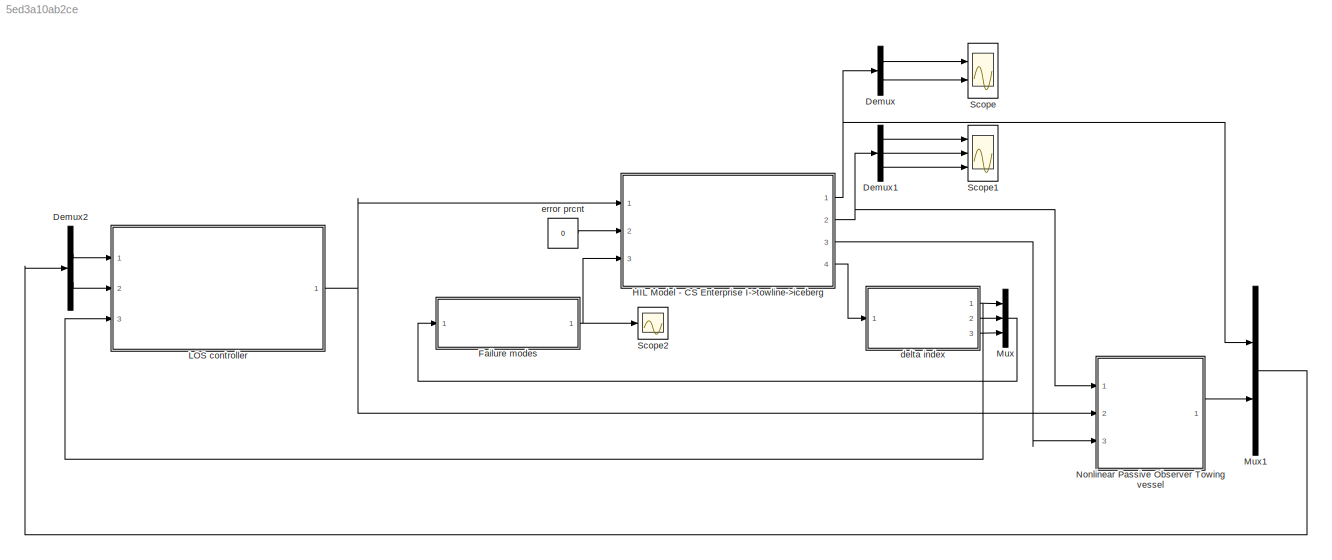
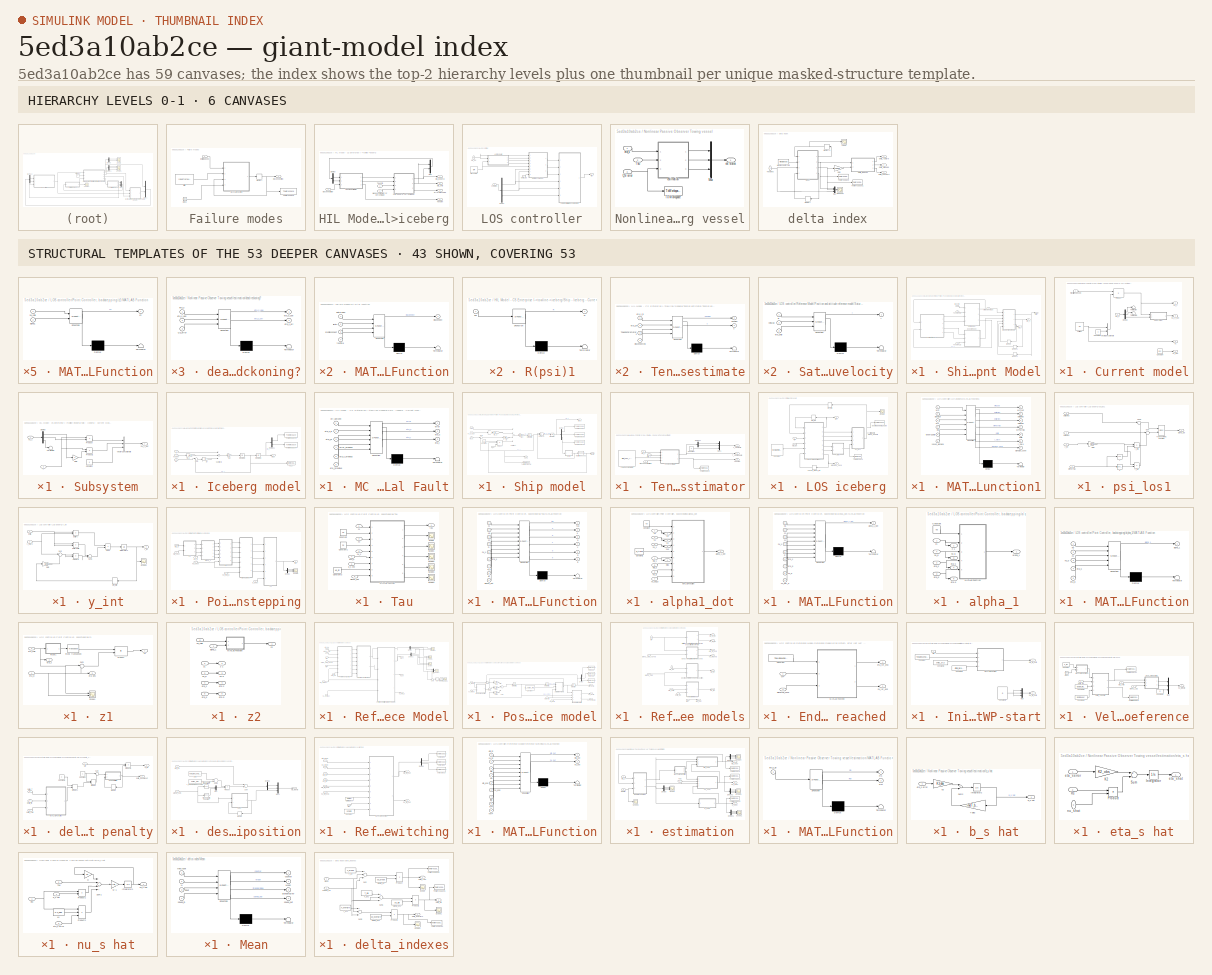
[diagram: thumbnail index - top-2 hierarchy levels (6 canvases) + 43 structural-template representatives of the remaining 53 canvases]
MODEL slx_5ed3a10ab2ce
KIND model
BLOCK [Demux] Demux
  DisplayOption = bar
  Outputs = 2
  Ports = [1, 2]
BLOCK [Demux] Demux1
  DisplayOption = bar
  Outputs = 3
  Ports = [1, 3]
BLOCK [Demux] Demux2
  DisplayOption = bar
  Outputs = [2; 9]
  Ports = [1, 2]
BLOCK [SubSystem] Failure modes
  Ports = [1, 1]
  RequestExecContextInheritance = off
BLOCK [Clock] Failure modes/Clock
BLOCK [SubSystem] Failure modes/MATLAB Function
  ErrorFcn = Stateflow.Translate.translate
  PermitHierarchicalResolution = ExplicitOnly
  Ports = [4, 1]
  RequestExecContextInheritance = off
  SFBlockType = MATLAB Function
  TreatAsAtomicUnit = on
BLOCK [Demux] Failure modes/MATLAB Function/ Demux 
  Outputs = 1
  Ports = [1, 1]
BLOCK [S-Function] Failure modes/MATLAB Function/ SFunction 
  EnableBusSupport = off
  FunctionName = sf_sfun
  PortCounts = [4 2]
  Ports = [4, 2]
  Tag = Stateflow S-Function HIL_model_overall 5
BLOCK [Terminator] Failure modes/MATLAB Function/ Terminator 
BLOCK [Inport] Failure modes/MATLAB Function/deltaIndex
  IconDisplay = Port number
BLOCK [Outport] Failure modes/MATLAB Function/disconnect
  IconDisplay = Port number
BLOCK [Inport] Failure modes/MATLAB Function/limits
  IconDisplay = Port number
  Port = 2
BLOCK [Inport] Failure modes/MATLAB Function/preDisconnect
  IconDisplay = Port number
  Port = 3
BLOCK [Inport] Failure modes/MATLAB Function/theTime
  IconDisplay = Port number
  Port = 4
BLOCK [Memory] Failure modes/Memory
BLOCK [ToWorkspace] Failure modes/To Workspace
  MaxDataPoints = inf
  Ports = [1]
  SampleTime = -1
  SaveFormat = Timeseries
  VariableName = isDisconnected
BLOCK [Inport] Failure modes/delta Indexes
  IconDisplay = Port number
BLOCK [Outport] Failure modes/disconnect tow
  IconDisplay = Port number
BLOCK [Constant] Failure modes/limits
  Value = [overturnLimit; ruptureLimit; slippageLimit]
  VectorParams1D = off
BLOCK [SubSystem] HIL Model - CS Enterprise I->towline->iceberg
  Ports = [3, 4]
  RequestExecContextInheritance = off
  VariantControl = Variant1
BLOCK [Demux] HIL Model - CS Enterprise I->towline->iceberg/Demux
  DisplayOption = bar
  Outputs = 2
  Ports = [1, 2]
BLOCK [Inport] HIL Model - CS Enterprise I->towline->iceberg/Measurement Error percentage
  IconDisplay = Port number
  Port = 2
BLOCK [Mux] HIL Model - CS Enterprise I->towline->iceberg/Mux
  DisplayOption = bar
  Inputs = [3; 2]
  Ports = [2, 1]
BLOCK [SubSystem] HIL Model - CS Enterprise I->towline->iceberg/Ship - Iceberg - Current Model
  Ports = [4, 3]
  RequestExecContextInheritance = off
BLOCK [SubSystem] HIL Model - CS Enterprise I->towline->iceberg/Ship - Iceberg - Current Model/Current model
  Ports = [2, 4]
  RequestExecContextInheritance = off
BLOCK [Constant] HIL Model - CS Enterprise I->towline->iceberg/Ship - Iceberg - Current Model/Current model/Constant
  Value = [0; 0]
  VectorParams1D = off
BLOCK [Constant] HIL Model - CS Enterprise I->towline->iceberg/Ship - Iceberg - Current Model/Current model/Constant1
  Value = 0
BLOCK [Demux] HIL Model - CS Enterprise I->towline->iceberg/Ship - Iceberg - Current Model/Current model/Demux
  DisplayOption = bar
  Outputs = 3
  Ports = [1, 3]
BLOCK [Product] HIL Model - CS Enterprise I->towline->iceberg/Ship - Iceberg - Current Model/Current model/Product
  InputSameDT = off
  Multiplication = Matrix(*)
  OutDataTypeStr = Inherit: Inherit via internal rule
  Ports = [2, 1]
  RndMeth = Floor
  SaturateOnIntegerOverflow = off
BLOCK [Inport] HIL Model - CS Enterprise I->towline->iceberg/Ship - Iceberg - Current Model/Current model/R(psi) transposed
  IconDisplay = Port number
BLOCK [SubSystem] HIL Model - CS Enterprise I->towline->iceberg/Ship - Iceberg - Current Model/Current model/Subsystem
  Ports = [2, 1]
  RequestExecContextInheritance = off
BLOCK [Constant] HIL Model - CS Enterprise I->towline->iceberg/Ship - Iceberg - Current Model/Current model/Subsystem/Constant
  Value = 0
BLOCK [Demux] HIL Model - CS Enterprise I->towline->iceberg/Ship - Iceberg - Current Model/Current model/Subsystem/Demux
  DisplayOption = bar
  Outputs = 3
  Ports = [1, 3]
BLOCK [Gain] HIL Model - CS Enterprise I->towline->iceberg/Ship - Iceberg - Current Model/Current model/Subsystem/Gain
  Gain = -1
  OutDataTypeStr = Inherit: Inherit via internal rule
  ParamDataTypeStr = Inherit: Inherit via internal rule
  SaturateOnIntegerOverflow = off
BLOCK [Product] HIL Model - CS Enterprise I->towline->iceberg/Ship - Iceberg - Current Model/Current model/Subsystem/Product
  InputSameDT = off
  OutDataTypeStr = Inherit: Inherit via internal rule
  Ports = [2, 1]
  RndMeth = Floor
  SaturateOnIntegerOverflow = off
BLOCK [Product] HIL Model - CS Enterprise I->towline->iceberg/Ship - Iceberg - Current Model/Current model/Subsystem/Product1
  InputSameDT = off
  OutDataTypeStr = Inherit: Inherit via internal rule
  Ports = [2, 1]
  RndMeth = Floor
  SaturateOnIntegerOverflow = off
BLOCK [Terminator] HIL Model - CS Enterprise I->towline->iceberg/Ship - Iceberg - Current Model/Current model/Subsystem/Terminator
BLOCK [Concatenate] HIL Model - CS Enterprise I->towline->iceberg/Ship - Iceberg - Current Model/Current model/Subsystem/Vector Concatenate
  Mode = Multidimensional array
  NumInputs = 3
  Ports = [3, 1]
BLOCK [Inport] HIL Model - CS Enterprise I->towline->iceberg/Ship - Iceberg - Current Model/Current model/Subsystem/nu_c
  IconDisplay = Port number
BLOCK [Outport] HIL Model - CS Enterprise I->towline->iceberg/Ship - Iceberg - Current Model/Current model/Subsystem/nu_c_dot
  IconDisplay = Port number
BLOCK [Inport] HIL Model - CS Enterprise I->towline->iceberg/Ship - Iceberg - Current Model/Current model/Subsystem/r
  IconDisplay = Port number
  Port = 2
BLOCK [Terminator] HIL Model - CS Enterprise I->towline->iceberg/Ship - Iceberg - Current Model/Current model/Terminator
BLOCK [Terminator] HIL Model - CS Enterprise I->towline->iceberg/Ship - Iceberg - Current Model/Current model/Terminator1
BLOCK [Outport] HIL Model - CS Enterprise I->towline->iceberg/Ship - Iceberg - Current Model/Current model/Vc
  IconDisplay = Port number
  Port = 3
BLOCK [Outport] HIL Model - CS Enterprise I->towline->iceberg/Ship - Iceberg - Current Model/Current model/Vc_dot
  IconDisplay = Port number
  Port = 4
BLOCK [Concatenate] HIL Model - CS Enterprise I->towline->iceberg/Ship - Iceberg - Current Model/Current model/Vector Concatenate
  Mode = Multidimensional array
  Ports = [2, 1]
BLOCK [Constant] HIL Model - CS Enterprise I->towline->iceberg/Ship - Iceberg - Current Model/Current model/current
  Value = Vc
  VectorParams1D = off
BLOCK [Outport] HIL Model - CS Enterprise I->towline->iceberg/Ship - Iceberg - Current Model/Current model/nu_c
  IconDisplay = Port number
BLOCK [Outport] HIL Model - CS Enterprise I->towline->iceberg/Ship - Iceberg - Current Model/Current model/nu_c_dot
  IconDisplay = Port number
  Port = 2
BLOCK [Inport] HIL Model - CS Enterprise I->towline->iceberg/Ship - Iceberg - Current Model/Current model/nu_s
  IconDisplay = Port number
  Port = 2
BLOCK [SubSystem] HIL Model - CS Enterprise I->towline->iceberg/Ship - Iceberg - Current Model/Iceberg model
  Ports = [3, 1]
  RequestExecContextInheritance = off
BLOCK [Demux] HIL Model - CS Enterprise I->towline->iceberg/Ship - Iceberg - Current Model/Iceberg model/Demux1
  DisplayOption = bar
  Outputs = 2
  Ports = [1, 2]
BLOCK [Gain] HIL Model - CS Enterprise I->towline->iceberg/Ship - Iceberg - Current Model/Iceberg model/Di
  Gain = Di
  Multiplication = Matrix(K*u) (u vector)
  OutDataTypeStr = Inherit: Inherit via internal rule
  ParamDataTypeStr = Inherit: Inherit via internal rule
  SaturateOnIntegerOverflow = off
BLOCK [Integrator] HIL Model - CS Enterprise I->towline->iceberg/Ship - Iceberg - Current Model/Iceberg model/Integrator1
  InitialCondition = Piceberg
  Ports = [1, 1]
BLOCK [Integrator] HIL Model - CS Enterprise I->towline->iceberg/Ship - Iceberg - Current Model/Iceberg model/Integrator3
  InitialCondition = [0;0]
  Ports = [1, 1]
BLOCK [Gain] HIL Model - CS Enterprise I->towline->iceberg/Ship - Iceberg - Current Model/Iceberg model/M-1 i
  Gain = inv(Mi_rb + Mi_a)
  Multiplication = Matrix(K*u)
  OutDataTypeStr = Inherit: Inherit via internal rule
  ParamDataTypeStr = Inherit: Inherit via internal rule
  SaturateOnIntegerOverflow = off
BLOCK [Gain] HIL Model - CS Enterprise I->towline->iceberg/Ship - Iceberg - Current Model/Iceberg model/Mi_a
  Gain = Mi_a
  Multiplication = Matrix(K*u) (u vector)
  OutDataTypeStr = Inherit: Inherit via internal rule
  ParamDataTypeStr = Inherit: Inherit via internal rule
  SaturateOnIntegerOverflow = off
BLOCK [Sum] HIL Model - CS Enterprise I->towline->iceberg/Ship - Iceberg - Current Model/Iceberg model/Subtract1
  InputSameDT = off
  Inputs = ++-
  OutDataTypeStr = Inherit: Inherit via internal rule
  Ports = [3, 1]
  SaturateOnIntegerOverflow = off
BLOCK [Sum] HIL Model - CS Enterprise I->towline->iceberg/Ship - Iceberg - Current Model/Iceberg model/Sum
  IconShape = round
  InputSameDT = off
  Inputs = |-+
  OutDataTypeStr = Inherit: Inherit via internal rule
  Ports = [2, 1]
  SaturateOnIntegerOverflow = off
BLOCK [Inport] HIL Model - CS Enterprise I->towline->iceberg/Ship - Iceberg - Current Model/Iceberg model/T
  IconDisplay = Port number
  Port = 3
BLOCK [ToWorkspace] HIL Model - CS Enterprise I->towline->iceberg/Ship - Iceberg - Current Model/Iceberg model/To Workspace3
  MaxDataPoints = inf
  Ports = [1]
  SampleTime = -1
  SaveFormat = Timeseries
  VariableName = x_i
BLOCK [ToWorkspace] HIL Model - CS Enterprise I->towline->iceberg/Ship - Iceberg - Current Model/Iceberg model/To Workspace4
  MaxDataPoints = inf
  Ports = [1]
  SampleTime = -1
  SaveFormat = Timeseries
  VariableName = y_i
BLOCK [Inport] HIL Model - CS Enterprise I->towline->iceberg/Ship - Iceberg - Current Model/Iceberg model/Vc
  IconDisplay = Port number
BLOCK [Inport] HIL Model - CS Enterprise I->towline->iceberg/Ship - Iceberg - Current Model/Iceberg model/Vc_dot
  IconDisplay = Port number
  Port = 2
BLOCK [Outport] HIL Model - CS Enterprise I->towline->iceberg/Ship - Iceberg - Current Model/Iceberg model/eta_i
  IconDisplay = Port number
BLOCK [ToWorkspace] HIL Model - CS Enterprise I->towline->iceberg/Ship - Iceberg - Current Model/Iceberg model/nu_i
  MaxDataPoints = inf
  Ports = [1]
  SampleTime = -1
  SaveFormat = Timeseries
  VariableName = nu_i
BLOCK [SubSystem] HIL Model - CS Enterprise I->towline->iceberg/Ship - Iceberg - Current Model/MC Lab Signal Fault
  ErrorFcn = Stateflow.Translate.translate
  PermitHierarchicalResolution = ExplicitOnly
  Ports = [6, 3]
  RequestExecContextInheritance = off
  SFBlockType = MATLAB Function
  TreatAsAtomicUnit = on
BLOCK [Demux] HIL Model - CS Enterprise I->towline->iceberg/Ship - Iceberg - Current Model/MC Lab Signal Fault/ Demux 
  Outputs = 1
  Ports = [1, 1]
BLOCK [S-Function] HIL Model - CS Enterprise I->towline->iceberg/Ship - Iceberg - Current Model/MC Lab Signal Fault/ SFunction 
  EnableBusSupport = off
  FunctionName = sf_sfun
  PortCounts = [6 4]
  Ports = [6, 4]
  Tag = Stateflow S-Function HIL_model_overall 1
BLOCK [Terminator] HIL Model - CS Enterprise I->towline->iceberg/Ship - Iceberg - Current Model/MC Lab Signal Fault/ Terminator 
BLOCK [Inport] HIL Model - CS Enterprise I->towline->iceberg/Ship - Iceberg - Current Model/MC Lab Signal Fault/err_percent
  IconDisplay = Port number
BLOCK [Outport] HIL Model - CS Enterprise I->towline->iceberg/Ship - Iceberg - Current Model/MC Lab Signal Fault/error
  IconDisplay = Port number
BLOCK [Inport] HIL Model - CS Enterprise I->towline->iceberg/Ship - Iceberg - Current Model/MC Lab Signal Fault/error_previous
  IconDisplay = Port number
  Port = 4
BLOCK [Outport] HIL Model - CS Enterprise I->towline->iceberg/Ship - Iceberg - Current Model/MC Lab Signal Fault/eta_i
  IconDisplay = Port number
  Port = 3
BLOCK [Inport] HIL Model - CS Enterprise I->towline->iceberg/Ship - Iceberg - Current Model/MC Lab Signal Fault/eta_i_in
  IconDisplay = Port number
  Port = 3
BLOCK [Inport] HIL Model - CS Enterprise I->towline->iceberg/Ship - Iceberg - Current Model/MC Lab Signal Fault/eta_i_previous
  IconDisplay = Port number
  Port = 6
BLOCK [Outport] HIL Model - CS Enterprise I->towline->iceberg/Ship - Iceberg - Current Model/MC Lab Signal Fault/eta_s
  IconDisplay = Port number
  Port = 2
BLOCK [Inport] HIL Model - CS Enterprise I->towline->iceberg/Ship - Iceberg - Current Model/MC Lab Signal Fault/eta_s_in
  IconDisplay = Port number
  Port = 2
BLOCK [Inport] HIL Model - CS Enterprise I->towline->iceberg/Ship - Iceberg - Current Model/MC Lab Signal Fault/eta_s_previous
  IconDisplay = Port number
  Port = 5
BLOCK [Memory] HIL Model - CS Enterprise I->towline->iceberg/Ship - Iceberg - Current Model/Memory
  X0 = [0; 0]
BLOCK [Memory] HIL Model - CS Enterprise I->towline->iceberg/Ship - Iceberg - Current Model/Memory1
  X0 = [0; 0; 0]
BLOCK [Memory] HIL Model - CS Enterprise I->towline->iceberg/Ship - Iceberg - Current Model/Memory2
BLOCK [SubSystem] HIL Model - CS Enterprise I->towline->iceberg/Ship - Iceberg - Current Model/Ship model
  Ports = [4, 3]
  RequestExecContextInheritance = off
BLOCK [Constant] HIL Model - CS Enterprise I->towline->iceberg/Ship - Iceberg - Current Model/Ship model/Constant
  Value = K_M
  VectorParams1D = off
BLOCK [Demux] HIL Model - CS Enterprise I->towline->iceberg/Ship - Iceberg - Current Model/Ship model/Demux
  DisplayOption = bar
  Outputs = 3
  Ports = [1, 3]
BLOCK [Gain] HIL Model - CS Enterprise I->towline->iceberg/Ship - Iceberg - Current Model/Ship model/Ds
  Gain = Ds
  Multiplication = Matrix(K*u) (u vector)
  OutDataTypeStr = Inherit: Inherit via internal rule
  ParamDataTypeStr = Inherit: Inherit via internal rule
  SaturateOnIntegerOverflow = off
BLOCK [Integrator] HIL Model - CS Enterprise I->towline->iceberg/Ship - Iceberg - Current Model/Ship model/Integrator
  InitialCondition = Pship
  Ports = [1, 1]
BLOCK [Integrator] HIL Model - CS Enterprise I->towline->iceberg/Ship - Iceberg - Current Model/Ship model/Integrator2
  InitialCondition = [0; 0; 0]
  Ports = [1, 1]
BLOCK [Gain] HIL Model - CS Enterprise I->towline->iceberg/Ship - Iceberg - Current Model/Ship model/M-1 s
  Gain = inv(Ms_rb + Ms_a)
  Multiplication = Matrix(K*u) (u vector)
  OutDataTypeStr = Inherit: Inherit via internal rule
  ParamDataTypeStr = Inherit: Inherit via internal rule
  SaturateOnIntegerOverflow = off
BLOCK [Gain] HIL Model - CS Enterprise I->towline->iceberg/Ship - Iceberg - Current Model/Ship model/Ms_a
  Gain = Ms_a
  Multiplication = Matrix(K*u) (u vector)
  OutDataTypeStr = Inherit: Inherit via internal rule
  ParamDataTypeStr = Inherit: Inherit via internal rule
  SaturateOnIntegerOverflow = off
BLOCK [Product] HIL Model - CS Enterprise I->towline->iceberg/Ship - Iceberg - Current Model/Ship model/Product
  InputSameDT = off
  Inputs = ***
  Multiplication = Matrix(*)
  OutDataTypeStr = Inherit: Inherit via internal rule
  Ports = [3, 1]
  RndMeth = Floor
  SaturateOnIntegerOverflow = off
BLOCK [Product] HIL Model - CS Enterprise I->towline->iceberg/Ship - Iceberg - Current Model/Ship model/Product1
  InputSameDT = off
  Multiplication = Matrix(*)
  OutDataTypeStr = Inherit: Inherit via internal rule
  Ports = [2, 1]
  RndMeth = Floor
  SaturateOnIntegerOverflow = off
BLOCK [Reference] HIL Model - CS Enterprise I->towline->iceberg/Ship - Iceberg - Current Model/Ship model/R(psi) transposed  REF=dspmtrx3/Transpose
  Hermitian = off
  Ports = [1, 1]
  SourceBlock = dspmtrx3/Transpose
  SourceType = Transpose
  overflowFlag = off
BLOCK [SubSystem] HIL Model - CS Enterprise I->towline->iceberg/Ship - Iceberg - Current Model/Ship model/R(psi)1
  ErrorFcn = Stateflow.Translate.translate
  PermitHierarchicalResolution = ExplicitOnly
  Ports = [1, 1]
  RequestExecContextInheritance = off
  SFBlockType = MATLAB Function
  TreatAsAtomicUnit = on
BLOCK [Demux] HIL Model - CS Enterprise I->towline->iceberg/Ship - Iceberg - Current Model/Ship model/R(psi)1/ Demux 
  Outputs = 1
  Ports = [1, 1]
BLOCK [S-Function] HIL Model - CS Enterprise I->towline->iceberg/Ship - Iceberg - Current Model/Ship model/R(psi)1/ SFunction 
  EnableBusSupport = off
  FunctionName = sf_sfun
  PortCounts = [1 2]
  Ports = [1, 2]
  Tag = Stateflow S-Function HIL_model_overall 2
BLOCK [Terminator] HIL Model - CS Enterprise I->towline->iceberg/Ship - Iceberg - Current Model/Ship model/R(psi)1/ Terminator 
BLOCK [Outport] HIL Model - CS Enterprise I->towline->iceberg/Ship - Iceberg - Current Model/Ship model/R(psi)1/R
  IconDisplay = Port number
BLOCK [Inport] HIL Model - CS Enterprise I->towline->iceberg/Ship - Iceberg - Current Model/Ship model/R(psi)1/psi
  IconDisplay = Port number
BLOCK [Outport] HIL Model - CS Enterprise I->towline->iceberg/Ship - Iceberg - Current Model/Ship model/R(psi)^T
  IconDisplay = Port number
BLOCK [Sum] HIL Model - CS Enterprise I->towline->iceberg/Ship - Iceberg - Current Model/Ship model/Subtract
  InputSameDT = off
  Inputs = ++--
  OutDataTypeStr = Inherit: Inherit via internal rule
  Ports = [4, 1]
  SaturateOnIntegerOverflow = off
BLOCK [Sum] HIL Model - CS Enterprise I->towline->iceberg/Ship - Iceberg - Current Model/Ship model/Sum
  IconShape = round
  InputSameDT = off
  Inputs = |-+
  OutDataTypeStr = Inherit: Inherit via internal rule
  Ports = [2, 1]
  SaturateOnIntegerOverflow = off
BLOCK [Inport] HIL Model - CS Enterprise I->towline->iceberg/Ship - Iceberg - Current Model/Ship model/T
  IconDisplay = Port number
  Port = 2
BLOCK [Inport] HIL Model - CS Enterprise I->towline->iceberg/Ship - Iceberg - Current Model/Ship model/Tau
  IconDisplay = Port number
BLOCK [ToWorkspace] HIL Model - CS Enterprise I->towline->iceberg/Ship - Iceberg - Current Model/Ship model/To Workspace
  MaxDataPoints = inf
  Ports = [1]
  SampleTime = -1
  SaveFormat = Timeseries
  VariableName = x_s
BLOCK [ToWorkspace] HIL Model - CS Enterprise I->towline->iceberg/Ship - Iceberg - Current Model/Ship model/To Workspace1
  MaxDataPoints = inf
  Ports = [1]
  SampleTime = -1
  SaveFormat = Timeseries
  VariableName = y_s
BLOCK [ToWorkspace] HIL Model - CS Enterprise I->towline->iceberg/Ship - Iceberg - Current Model/Ship model/To Workspace2
  MaxDataPoints = inf
  Ports = [1]
  SampleTime = -1
  SaveFormat = Timeseries
  VariableName = psi_s
BLOCK [ToWorkspace] HIL Model - CS Enterprise I->towline->iceberg/Ship - Iceberg - Current Model/Ship model/To Workspace5
  MaxDataPoints = inf
  Ports = [1]
  SampleTime = -1
  SaveFormat = Timeseries
  VariableName = nu_s
BLOCK [Outport] HIL Model - CS Enterprise I->towline->iceberg/Ship - Iceberg - Current Model/Ship model/eta_s
  IconDisplay = Port number
  Port = 2
BLOCK [Inport] HIL Model - CS Enterprise I->towline->iceberg/Ship - Iceberg - Current Model/Ship model/nu_c
  IconDisplay = Port number
  Port = 3
BLOCK [Inport] HIL Model - CS Enterprise I->towline->iceberg/Ship - Iceberg - Current Model/Ship model/nu_c_dot
  IconDisplay = Port number
  Port = 4
BLOCK [Outport] HIL Model - CS Enterprise I->towline->iceberg/Ship - Iceberg - Current Model/Ship model/nu_s
  IconDisplay = Port number
  Port = 3
BLOCK [Inport] HIL Model - CS Enterprise I->towline->iceberg/Ship - Iceberg - Current Model/Tension 2D
  IconDisplay = Port number
  Port = 2
BLOCK [Inport] HIL Model - CS Enterprise I->towline->iceberg/Ship - Iceberg - Current Model/Tension 3D
  IconDisplay = Port number
BLOCK [Outport] HIL Model - CS Enterprise I->towline->iceberg/Ship - Iceberg - Current Model/error
  IconDisplay = Port number
  Port = 3
BLOCK [Inport] HIL Model - CS Enterprise I->towline->iceberg/Ship - Iceberg - Current Model/error percentage
  IconDisplay = Port number
  Port = 4
BLOCK [Outport] HIL Model - CS Enterprise I->towline->iceberg/Ship - Iceberg - Current Model/eta_i
  IconDisplay = Port number
BLOCK [Outport] HIL Model - CS Enterprise I->towline->iceberg/Ship - Iceberg - Current Model/eta_s
  IconDisplay = Port number
  Port = 2
BLOCK [Inport] HIL Model - CS Enterprise I->towline->iceberg/Ship - Iceberg - Current Model/tau ship
  IconDisplay = Port number
  Port = 3
BLOCK [Inport] HIL Model - CS Enterprise I->towline->iceberg/Tau ship
  IconDisplay = Port number
BLOCK [Outport] HIL Model - CS Enterprise I->towline->iceberg/Tension
  IconDisplay = Port number
  Port = 4
BLOCK [SubSystem] HIL Model - CS Enterprise I->towline->iceberg/Tension estimator
  Ports = [3, 3]
  RequestExecContextInheritance = off
BLOCK [Constant] HIL Model - CS Enterprise I->towline->iceberg/Tension estimator/Constant
  Value = 0
BLOCK [Demux] HIL Model - CS Enterprise I->towline->iceberg/Tension estimator/Demux1
  DisplayOption = bar
  Outputs = 2
  Ports = [1, 2]
BLOCK [Inport] HIL Model - CS Enterprise I->towline->iceberg/Tension estimator/Disconnect towline
  IconDisplay = Port number
  Port = 3
BLOCK [Mux] HIL Model - CS Enterprise I->towline->iceberg/Tension estimator/Mux1
  DisplayOption = bar
  Inputs = 3
  Ports = [3, 1]
BLOCK [Outport] HIL Model - CS Enterprise I->towline->iceberg/Tension estimator/T_2dof iceberg
  IconDisplay = Port number
  Port = 2
BLOCK [Outport] HIL Model - CS Enterprise I->towline->iceberg/Tension estimator/T_3dof ship
  IconDisplay = Port number
BLOCK [Outport] HIL Model - CS Enterprise I->towline->iceberg/Tension estimator/Tension
  IconDisplay = Port number
  Port = 3
BLOCK [SubSystem] HIL Model - CS Enterprise I->towline->iceberg/Tension estimator/Tension estimate
  ErrorFcn = Stateflow.Translate.translate
  PermitHierarchicalResolution = ExplicitOnly
  Ports = [4, 2]
  RequestExecContextInheritance = off
  SFBlockType = MATLAB Function
  TreatAsAtomicUnit = on
BLOCK [Demux] HIL Model - CS Enterprise I->towline->iceberg/Tension estimator/Tension estimate/ Demux 
  Outputs = 1
  Ports = [1, 1]
BLOCK [S-Function] HIL Model - CS Enterprise I->towline->iceberg/Tension estimator/Tension estimate/ SFunction 
  EnableBusSupport = off
  FunctionName = sf_sfun
  PortCounts = [4 3]
  Ports = [4, 3]
  Tag = Stateflow S-Function HIL_model_overall 4
BLOCK [Terminator] HIL Model - CS Enterprise I->towline->iceberg/Tension estimator/Tension estimate/ Terminator 
BLOCK [Outport] HIL Model - CS Enterprise I->towline->iceberg/Tension estimator/Tension estimate/T
  IconDisplay = Port number
  Port = 2
BLOCK [Outport] HIL Model - CS Enterprise I->towline->iceberg/Tension estimator/Tension estimate/Tension
  IconDisplay = Port number
BLOCK [Inport] HIL Model - CS Enterprise I->towline->iceberg/Tension estimator/Tension estimate/TowLineParameters
  IconDisplay = Port number
  Port = 3
BLOCK [Inport] HIL Model - CS Enterprise I->towline->iceberg/Tension estimator/Tension estimate/disconnected
  IconDisplay = Port number
  Port = 4
BLOCK [Inport] HIL Model - CS Enterprise I->towline->iceberg/Tension estimator/Tension estimate/eta_i_in
  IconDisplay = Port number
  Port = 2
BLOCK [Inport] HIL Model - CS Enterprise I->towline->iceberg/Tension estimator/Tension estimate/eta_s_in
  IconDisplay = Port number
BLOCK [ToWorkspace] HIL Model - CS Enterprise I->towline->iceberg/Tension estimator/To Workspace
  MaxDataPoints = inf
  Ports = [1]
  SampleTime = -1
  SaveFormat = Timeseries
  VariableName = tension
BLOCK [Constant] HIL Model - CS Enterprise I->towline->iceberg/Tension estimator/TowLine Parameters
  Value = [Dist_spv_rfp; TowLineLength; K_tow]
  VectorParams1D = off
BLOCK [Inport] HIL Model - CS Enterprise I->towline->iceberg/Tension estimator/eta_i
  IconDisplay = Port number
  Port = 2
BLOCK [Inport] HIL Model - CS Enterprise I->towline->iceberg/Tension estimator/eta_s
  IconDisplay = Port number
BLOCK [Inport] HIL Model - CS Enterprise I->towline->iceberg/disconnect tow
  IconDisplay = Port number
  Port = 3
BLOCK [Outport] HIL Model - CS Enterprise I->towline->iceberg/errorMessage
  IconDisplay = Port number
  Port = 3
BLOCK [Outport] HIL Model - CS Enterprise I->towline->iceberg/eta_iceberg
  IconDisplay = Port number
BLOCK [Outport] HIL Model - CS Enterprise I->towline->iceberg/eta_ship
  IconDisplay = Port number
  Port = 2
BLOCK [SubSystem] LOS controller
  Ports = [3, 1]
  RequestExecContextInheritance = off
BLOCK [Demux] LOS controller/Demux
  DisplayOption = bar
  Outputs = [3; 3; 3]
  Ports = [1, 3]
BLOCK [SubSystem] LOS controller/LOS iceberg
  Ports = [2, 3]
  RequestExecContextInheritance = off
BLOCK [Constant] LOS controller/LOS iceberg/Constant
  Value = [iceDiameter; 0]
  VectorParams1D = off
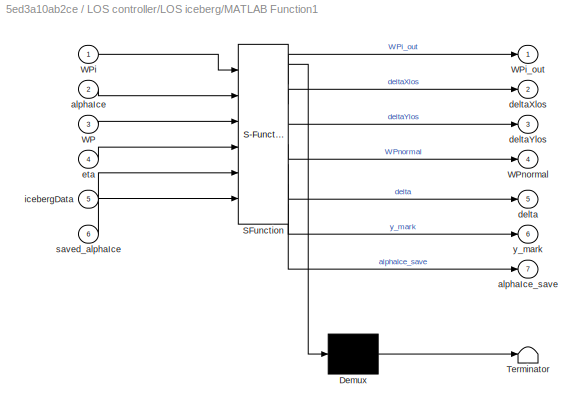
BLOCK [SubSystem] LOS controller/LOS iceberg/MATLAB Function1
  ErrorFcn = Stateflow.Translate.translate
  PermitHierarchicalResolution = ExplicitOnly
  Ports = [6, 7]
  RequestExecContextInheritance = off
  SFBlockType = MATLAB Function
  TreatAsAtomicUnit = on
BLOCK [Demux] LOS controller/LOS iceberg/MATLAB Function1/ Demux 
  Outputs = 1
  Ports = [1, 1]
BLOCK [S-Function] LOS controller/LOS iceberg/MATLAB Function1/ SFunction 
  EnableBusSupport = off
  FunctionName = sf_sfun
  PortCounts = [6 8]
  Ports = [6, 8]
  Tag = Stateflow S-Function HIL_model_overall 6
BLOCK [Terminator] LOS controller/LOS iceberg/MATLAB Function1/ Terminator 
BLOCK [Inport] LOS controller/LOS iceberg/MATLAB Function1/WP
  IconDisplay = Port number
  Port = 3
BLOCK [Inport] LOS controller/LOS iceberg/MATLAB Function1/WPi
  IconDisplay = Port number
BLOCK [Outport] LOS controller/LOS iceberg/MATLAB Function1/WPi_out
  IconDisplay = Port number
BLOCK [Outport] LOS controller/LOS iceberg/MATLAB Function1/WPnormal
  IconDisplay = Port number
  Port = 4
BLOCK [Inport] LOS controller/LOS iceberg/MATLAB Function1/alphaIce
  IconDisplay = Port number
  Port = 2
BLOCK [Outport] LOS controller/LOS iceberg/MATLAB Function1/alphaIce_save
  IconDisplay = Port number
  Port = 7
BLOCK [Outport] LOS controller/LOS iceberg/MATLAB Function1/delta
  IconDisplay = Port number
  Port = 5
BLOCK [Outport] LOS controller/LOS iceberg/MATLAB Function1/deltaXlos
  IconDisplay = Port number
  Port = 2
BLOCK [Outport] LOS controller/LOS iceberg/MATLAB Function1/deltaYlos
  IconDisplay = Port number
  Port = 3
BLOCK [Inport] LOS controller/LOS iceberg/MATLAB Function1/eta
  IconDisplay = Port number
  Port = 4
BLOCK [Inport] LOS controller/LOS iceberg/MATLAB Function1/icebergData
  IconDisplay = Port number
  Port = 5
BLOCK [Inport] LOS controller/LOS iceberg/MATLAB Function1/saved_alphaIce
  IconDisplay = Port number
  Port = 6
BLOCK [Outport] LOS controller/LOS iceberg/MATLAB Function1/y_mark
  IconDisplay = Port number
  Port = 6
BLOCK [Scope] LOS controller/LOS iceberg/Scope
  DataFormat = StructureWithTime
  Floating = off
  NumInputPorts = 1
  Ports = [1]
  SampleTime = 0
  SaveName = ScopeData2
  ShowLegends = off
BLOCK [ToWorkspace] LOS controller/LOS iceberg/To Workspace
  MaxDataPoints = inf
  Ports = [1]
  SampleTime = -1
  SaveFormat = Timeseries
  VariableName = y_int
BLOCK [Inport] LOS controller/LOS iceberg/WP
  IconDisplay = Port number
  Port = 2
BLOCK [Outport] LOS controller/LOS iceberg/WPi
  IconDisplay = Port number
  Port = 2
BLOCK [Memory] LOS controller/LOS iceberg/WPi_init
  InheritSampleTime = on
  X0 = WPi_init
BLOCK [Memory] LOS controller/LOS iceberg/WPi_init3
  InheritSampleTime = on
BLOCK [Outport] LOS controller/LOS iceberg/alphaIce_save
  IconDisplay = Port number
  Port = 3
BLOCK [Outport] LOS controller/LOS iceberg/alpha_iceberg
  IconDisplay = Port number
BLOCK [ToWorkspace] LOS controller/LOS iceberg/desired Iceberg Course
  MaxDataPoints = inf
  Ports = [1]
  SampleTime = -1
  SaveFormat = Timeseries
  VariableName = alphaIceberg
BLOCK [Inport] LOS controller/LOS iceberg/eta_ice
  IconDisplay = Port number
BLOCK [SubSystem] LOS controller/LOS iceberg/psi_los1
  Ports = [4, 1]
  RequestExecContextInheritance = off
BLOCK [Gain] LOS controller/LOS iceberg/psi_los1/Gain
  Gain = sigma
  OutDataTypeStr = Inherit: Inherit via internal rule
  ParamDataTypeStr = Inherit: Inherit via internal rule
  SaturateOnIntegerOverflow = off
BLOCK [Sum] LOS controller/LOS iceberg/psi_los1/Sum
  IconShape = round
  InputSameDT = off
  Inputs = |++
  OutDataTypeStr = Inherit: Inherit via internal rule
  Ports = [2, 1]
  SaturateOnIntegerOverflow = off
BLOCK [Sum] LOS controller/LOS iceberg/psi_los1/Sum1
  IconShape = round
  InputSameDT = off
  Inputs = |++
  OutDataTypeStr = Inherit: Inherit via internal rule
  Ports = [2, 1]
  SaturateOnIntegerOverflow = off
BLOCK [Trigonometry] LOS controller/LOS iceberg/psi_los1/Trigonometric Function
  Operator = atan2
  Ports = [2, 1]
BLOCK [Inport] LOS controller/LOS iceberg/psi_los1/WPnormal
  IconDisplay = Port number
  Port = 3
BLOCK [Outport] LOS controller/LOS iceberg/psi_los1/alpha_ice
  IconDisplay = Port number
BLOCK [Trigonometry] LOS controller/LOS iceberg/psi_los1/c
  Operator = cos
  Ports = [1, 1]
BLOCK [Inport] LOS controller/LOS iceberg/psi_los1/deltaXlos
  IconDisplay = Port number
BLOCK [Inport] LOS controller/LOS iceberg/psi_los1/deltaYlos
  IconDisplay = Port number
  Port = 2
BLOCK [Trigonometry] LOS controller/LOS iceberg/psi_los1/s
  Ports = [1, 1]
BLOCK [Inport] LOS controller/LOS iceberg/psi_los1/y_int
  IconDisplay = Port number
  Port = 4
BLOCK [Product] LOS controller/LOS iceberg/psi_los1/y_int x
  InputSameDT = off
  OutDataTypeStr = Inherit: Inherit via internal rule
  Ports = [2, 1]
  RndMeth = Floor
  SaturateOnIntegerOverflow = off
BLOCK [Product] LOS controller/LOS iceberg/psi_los1/y_int y
  InputSameDT = off
  OutDataTypeStr = Inherit: Inherit via internal rule
  Ports = [2, 1]
  RndMeth = Floor
  SaturateOnIntegerOverflow = off
BLOCK [Memory] LOS controller/LOS iceberg/saved_alpha_init
  InheritSampleTime = on
BLOCK [SubSystem] LOS controller/LOS iceberg/y_int
  Ports = [2, 1]
  RequestExecContextInheritance = off
BLOCK [Product] LOS controller/LOS iceberg/y_int/Divide
  InputSameDT = off
  Inputs = */
  OutDataTypeStr = Inherit: Inherit via internal rule
  Ports = [2, 1]
  RndMeth = Floor
  SaturateOnIntegerOverflow = off
BLOCK [Gain] LOS controller/LOS iceberg/y_int/Gain
  Gain = sigma
  OutDataTypeStr = Inherit: Inherit via internal rule
  ParamDataTypeStr = Inherit: Inherit via internal rule
  SaturateOnIntegerOverflow = off
BLOCK [Integrator] LOS controller/LOS iceberg/y_int/Integrator2
  Ports = [1, 1]
BLOCK [Scope] LOS controller/LOS iceberg/y_int/Scope1
  DataFormat = StructureWithTime
  Floating = off
  NumInputPorts = 1
  Ports = [1]
  SampleTime = 0
  SaveName = ScopeData4
  ShowLegends = off
  ZoomMode = xonly
BLOCK [Sum] LOS controller/LOS iceberg/y_int/Sum
  IconShape = round
  InputSameDT = off
  Inputs = |++
  OutDataTypeStr = Inherit: Inherit via internal rule
  Ports = [2, 1]
  SaturateOnIntegerOverflow = off
BLOCK [Sum] LOS controller/LOS iceberg/y_int/Sum1
  IconShape = round
  InputSameDT = off
  Inputs = |++
  OutDataTypeStr = Inherit: Inherit via internal rule
  Ports = [2, 1]
  SaturateOnIntegerOverflow = off
BLOCK [Memory] LOS controller/LOS iceberg/y_int/WPi_init2
  InheritSampleTime = on
BLOCK [Inport] LOS controller/LOS iceberg/y_int/delta
  IconDisplay = Port number
BLOCK [Product] LOS controller/LOS iceberg/y_int/delta*delta
  InputSameDT = off
  OutDataTypeStr = Inherit: Inherit via internal rule
  Ports = [2, 1]
  RndMeth = Floor
  SaturateOnIntegerOverflow = off
BLOCK [Product] LOS controller/LOS iceberg/y_int/delta*y
  InputSameDT = off
  OutDataTypeStr = Inherit: Inherit via internal rule
  Ports = [2, 1]
  RndMeth = Floor
  SaturateOnIntegerOverflow = off
BLOCK [Product] LOS controller/LOS iceberg/y_int/square
  InputSameDT = off
  OutDataTypeStr = Inherit: Inherit via internal rule
  Ports = [2, 1]
  RndMeth = Floor
  SaturateOnIntegerOverflow = off
BLOCK [Outport] LOS controller/LOS iceberg/y_int/y_int
  IconDisplay = Port number
BLOCK [Inport] LOS controller/LOS iceberg/y_int/y_mark
  IconDisplay = Port number
  Port = 2
BLOCK [SubSystem] LOS controller/Point Controller,  backstepping
  Ports = [6, 1]
  RequestExecContextInheritance = off
BLOCK [Demux] LOS controller/Point Controller,  backstepping/Demux
  DisplayOption = bar
  Outputs = 3
  Ports = [1, 3]
BLOCK [Scope] LOS controller/Point Controller,  backstepping/Scope
  DataFormat = StructureWithTime
  Floating = off
  LimitDataPoints = off
  MaxDataPoints = 10000
  NumInputPorts = 3
  Ports = [3]
  SampleTime = 0
  SaveName = ScopeData5
  ShowLegends = off
  TimeRange = 400
  YMax = 0.777~0.028~-0.00195
  YMin = 0.776~0.0235~-0.00225
  ZoomMode = xonly
BLOCK [SubSystem] LOS controller/Point Controller,  backstepping/Tau
  Ports = [6, 1]
  RequestExecContextInheritance = off
BLOCK [Constant] LOS controller/Point Controller,  backstepping/Tau/Constant
  Value = Kd
  VectorParams1D = off
BLOCK [Constant] LOS controller/Point Controller,  backstepping/Tau/Constant1
  Value = Ds
  VectorParams1D = off
BLOCK [Constant] LOS controller/Point Controller,  backstepping/Tau/Constant3
  Value = Ms_tot
  VectorParams1D = off
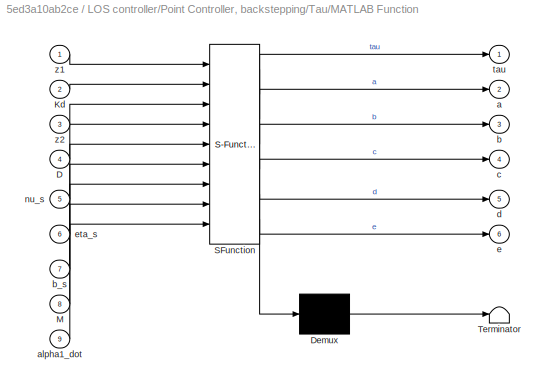
BLOCK [SubSystem] LOS controller/Point Controller,  backstepping/Tau/MATLAB Function
  ErrorFcn = Stateflow.Translate.translate
  PermitHierarchicalResolution = ExplicitOnly
  Ports = [9, 6]
  RequestExecContextInheritance = off
  SFBlockType = MATLAB Function
  TreatAsAtomicUnit = on
BLOCK [Demux] LOS controller/Point Controller,  backstepping/Tau/MATLAB Function/ Demux 
  Outputs = 1
  Ports = [1, 1]
BLOCK [S-Function] LOS controller/Point Controller,  backstepping/Tau/MATLAB Function/ SFunction 
  EnableBusSupport = off
  FunctionName = sf_sfun
  PortCounts = [9 7]
  Ports = [9, 7]
  Tag = Stateflow S-Function HIL_model_overall 8
BLOCK [Terminator] LOS controller/Point Controller,  backstepping/Tau/MATLAB Function/ Terminator 
BLOCK [Inport] LOS controller/Point Controller,  backstepping/Tau/MATLAB Function/D
  IconDisplay = Port number
  Port = 4
BLOCK [Inport] LOS controller/Point Controller,  backstepping/Tau/MATLAB Function/Kd
  IconDisplay = Port number
  Port = 2
BLOCK [Inport] LOS controller/Point Controller,  backstepping/Tau/MATLAB Function/M
  IconDisplay = Port number
  Port = 8
BLOCK [Outport] LOS controller/Point Controller,  backstepping/Tau/MATLAB Function/a
  IconDisplay = Port number
  Port = 2
BLOCK [Inport] LOS controller/Point Controller,  backstepping/Tau/MATLAB Function/alpha1_dot
  IconDisplay = Port number
  Port = 9
BLOCK [Outport] LOS controller/Point Controller,  backstepping/Tau/MATLAB Function/b
  IconDisplay = Port number
  Port = 3
BLOCK [Inport] LOS controller/Point Controller,  backstepping/Tau/MATLAB Function/b_s
  IconDisplay = Port number
  Port = 7
BLOCK [Outport] LOS controller/Point Controller,  backstepping/Tau/MATLAB Function/c
  IconDisplay = Port number
  Port = 4
BLOCK [Outport] LOS controller/Point Controller,  backstepping/Tau/MATLAB Function/d
  IconDisplay = Port number
  Port = 5
BLOCK [Outport] LOS controller/Point Controller,  backstepping/Tau/MATLAB Function/e
  IconDisplay = Port number
  Port = 6
BLOCK [Inport] LOS controller/Point Controller,  backstepping/Tau/MATLAB Function/eta_s
  IconDisplay = Port number
  Port = 6
BLOCK [Inport] LOS controller/Point Controller,  backstepping/Tau/MATLAB Function/nu_s
  IconDisplay = Port number
  Port = 5
BLOCK [Outport] LOS controller/Point Controller,  backstepping/Tau/MATLAB Function/tau
  IconDisplay = Port number
BLOCK [Inport] LOS controller/Point Controller,  backstepping/Tau/MATLAB Function/z1
  IconDisplay = Port number
BLOCK [Inport] LOS controller/Point Controller,  backstepping/Tau/MATLAB Function/z2
  IconDisplay = Port number
  Port = 3
BLOCK [Scope] LOS controller/Point Controller,  backstepping/Tau/Scope
  DataFormat = StructureWithTime
  Floating = off
  NumInputPorts = 1
  Ports = [1]
  SampleTime = 0
  SaveName = ScopeData6
  ShowLegends = off
BLOCK [Scope] LOS controller/Point Controller,  backstepping/Tau/Scope1
  DataFormat = StructureWithTime
  Floating = off
  NumInputPorts = 1
  Ports = [1]
  SampleTime = 0
  SaveName = ScopeData7
  ShowLegends = off
  YMax = 0.1
  YMin = -0.02
BLOCK [Scope] LOS controller/Point Controller,  backstepping/Tau/Scope2
  DataFormat = StructureWithTime
  Floating = off
  NumInputPorts = 1
  Ports = [1]
  SampleTime = 0
  SaveName = ScopeData10
  ShowLegends = off
BLOCK [Scope] LOS controller/Point Controller,  backstepping/Tau/Scope3
  DataFormat = StructureWithTime
  Floating = off
  NumInputPorts = 1
  Ports = [1]
  SampleTime = 0
  SaveName = ScopeData13
  ShowLegends = off
BLOCK [Scope] LOS controller/Point Controller,  backstepping/Tau/Scope4
  DataFormat = StructureWithTime
  Floating = off
  NumInputPorts = 1
  Ports = [1]
  SampleTime = 0
  SaveName = ScopeData14
  ShowLegends = off
BLOCK [Inport] LOS controller/Point Controller,  backstepping/Tau/alpha1_dot
  IconDisplay = Port number
  Port = 5
BLOCK [Inport] LOS controller/Point Controller,  backstepping/Tau/b_s est
  IconDisplay = Port number
  Port = 6
BLOCK [Inport] LOS controller/Point Controller,  backstepping/Tau/eta_s
  IconDisplay = Port number
  Port = 4
BLOCK [Inport] LOS controller/Point Controller,  backstepping/Tau/nu_s
  IconDisplay = Port number
  Port = 3
BLOCK [Outport] LOS controller/Point Controller,  backstepping/Tau/tau
  IconDisplay = Port number
BLOCK [Inport] LOS controller/Point Controller,  backstepping/Tau/z1
  IconDisplay = Port number
BLOCK [Inport] LOS controller/Point Controller,  backstepping/Tau/z2
  IconDisplay = Port number
  Port = 2
BLOCK [SubSystem] LOS controller/Point Controller,  backstepping/alpha1_dot
  Ports = [7, 5]
  RequestExecContextInheritance = off
BLOCK [Constant] LOS controller/Point Controller,  backstepping/alpha1_dot/Constant
  Value = Kp
  VectorParams1D = off
BLOCK [Constant] LOS controller/Point Controller,  backstepping/alpha1_dot/Constant1
  Value = S_trans
  VectorParams1D = off
BLOCK [SubSystem] LOS controller/Point Controller,  backstepping/alpha1_dot/MATLAB Function
  ErrorFcn = Stateflow.Translate.translate
  PermitHierarchicalResolution = ExplicitOnly
  Ports = [9, 1]
  RequestExecContextInheritance = off
  SFBlockType = MATLAB Function
  TreatAsAtomicUnit = on
BLOCK [Demux] LOS controller/Point Controller,  backstepping/alpha1_dot/MATLAB Function/ Demux 
  Outputs = 1
  Ports = [1, 1]
BLOCK [S-Function] LOS controller/Point Controller,  backstepping/alpha1_dot/MATLAB Function/ SFunction 
  EnableBusSupport = off
  FunctionName = sf_sfun
  PortCounts = [9 2]
  Ports = [9, 2]
  Tag = Stateflow S-Function HIL_model_overall 7
BLOCK [Terminator] LOS controller/Point Controller,  backstepping/alpha1_dot/MATLAB Function/ Terminator 
BLOCK [Inport] LOS controller/Point Controller,  backstepping/alpha1_dot/MATLAB Function/Kp
  IconDisplay = Port number
BLOCK [Inport] LOS controller/Point Controller,  backstepping/alpha1_dot/MATLAB Function/S
  IconDisplay = Port number
  Port = 5
BLOCK [Outport] LOS controller/Point Controller,  backstepping/alpha1_dot/MATLAB Function/alpha_1_dot
  IconDisplay = Port number
BLOCK [Inport] LOS controller/Point Controller,  backstepping/alpha1_dot/MATLAB Function/eta_d
  IconDisplay = Port number
  Port = 7
BLOCK [Inport] LOS controller/Point Controller,  backstepping/alpha1_dot/MATLAB Function/eta_s
  IconDisplay = Port number
  Port = 6
BLOCK [Inport] LOS controller/Point Controller,  backstepping/alpha1_dot/MATLAB Function/nu_d
  IconDisplay = Port number
  Port = 8
BLOCK [Inport] LOS controller/Point Controller,  backstepping/alpha1_dot/MATLAB Function/nu_dot_d
  IconDisplay = Port number
  Port = 9
BLOCK [Inport] LOS controller/Point Controller,  backstepping/alpha1_dot/MATLAB Function/nu_s
  IconDisplay = Port number
  Port = 4
BLOCK [Inport] LOS controller/Point Controller,  backstepping/alpha1_dot/MATLAB Function/z1
  IconDisplay = Port number
  Port = 3
BLOCK [Inport] LOS controller/Point Controller,  backstepping/alpha1_dot/MATLAB Function/z2
  IconDisplay = Port number
  Port = 2
BLOCK [Outport] LOS controller/Point Controller,  backstepping/alpha1_dot/alpha_1_dot
  IconDisplay = Port number
  Port = 5
BLOCK [Outport] LOS controller/Point Controller,  backstepping/alpha1_dot/eta s
  IconDisplay = Port number
  Port = 4
BLOCK [Inport] LOS controller/Point Controller,  backstepping/alpha1_dot/eta_d
  IconDisplay = Port number
  Port = 5
BLOCK [Inport] LOS controller/Point Controller,  backstepping/alpha1_dot/eta_s
  IconDisplay = Port number
  Port = 4
BLOCK [Outport] LOS controller/Point Controller,  backstepping/alpha1_dot/nu s
  IconDisplay = Port number
  Port = 3
BLOCK [Inport] LOS controller/Point Controller,  backstepping/alpha1_dot/nu_d
  IconDisplay = Port number
  Port = 3
BLOCK [Inport] LOS controller/Point Controller,  backstepping/alpha1_dot/nu_dot_d
  IconDisplay = Port number
  Port = 7
BLOCK [Inport] LOS controller/Point Controller,  backstepping/alpha1_dot/nu_s
  IconDisplay = Port number
  Port = 6
BLOCK [Outport] LOS controller/Point Controller,  backstepping/alpha1_dot/z 1
  IconDisplay = Port number
BLOCK [Outport] LOS controller/Point Controller,  backstepping/alpha1_dot/z 2
  IconDisplay = Port number
  Port = 2
BLOCK [Inport] LOS controller/Point Controller,  backstepping/alpha1_dot/z1
  IconDisplay = Port number
  Port = 2
BLOCK [Inport] LOS controller/Point Controller,  backstepping/alpha1_dot/z2
  IconDisplay = Port number
BLOCK [SubSystem] LOS controller/Point Controller,  backstepping/alpha_1
  Ports = [4, 5]
  RequestExecContextInheritance = off
BLOCK [Constant] LOS controller/Point Controller,  backstepping/alpha_1/Constant
  Value = Kp
  VectorParams1D = off
BLOCK [SubSystem] LOS controller/Point Controller,  backstepping/alpha_1/MATLAB Function
  ErrorFcn = Stateflow.Translate.translate
  PermitHierarchicalResolution = ExplicitOnly
  Ports = [5, 1]
  RequestExecContextInheritance = off
  SFBlockType = MATLAB Function
  TreatAsAtomicUnit = on
BLOCK [Demux] LOS controller/Point Controller,  backstepping/alpha_1/MATLAB Function/ Demux 
  Outputs = 1
  Ports = [1, 1]
BLOCK [S-Function] LOS controller/Point Controller,  backstepping/alpha_1/MATLAB Function/ SFunction 
  EnableBusSupport = off
  FunctionName = sf_sfun
  PortCounts = [5 2]
  Ports = [5, 2]
  Tag = Stateflow S-Function HIL_model_overall 9
BLOCK [Terminator] LOS controller/Point Controller,  backstepping/alpha_1/MATLAB Function/ Terminator 
BLOCK [Inport] LOS controller/Point Controller,  backstepping/alpha_1/MATLAB Function/Kp
  IconDisplay = Port number
BLOCK [Outport] LOS controller/Point Controller,  backstepping/alpha_1/MATLAB Function/alpha_1
  IconDisplay = Port number
BLOCK [Inport] LOS controller/Point Controller,  backstepping/alpha_1/MATLAB Function/eta_d
  IconDisplay = Port number
  Port = 5
BLOCK [Inport] LOS controller/Point Controller,  backstepping/alpha_1/MATLAB Function/eta_s
  IconDisplay = Port number
  Port = 4
BLOCK [Inport] LOS controller/Point Controller,  backstepping/alpha_1/MATLAB Function/nu_d
  IconDisplay = Port number
  Port = 3
BLOCK [Inport] LOS controller/Point Controller,  backstepping/alpha_1/MATLAB Function/z1
  IconDisplay = Port number
  Port = 2
BLOCK [Outport] LOS controller/Point Controller,  backstepping/alpha_1/alpha_1
  IconDisplay = Port number
BLOCK [Outport] LOS controller/Point Controller,  backstepping/alpha_1/eta d
  IconDisplay = Port number
  Port = 5
BLOCK [Outport] LOS controller/Point Controller,  backstepping/alpha_1/eta s
  IconDisplay = Port number
  Port = 4
BLOCK [Inport] LOS controller/Point Controller,  backstepping/alpha_1/eta_d
  IconDisplay = Port number
  Port = 3
BLOCK [Inport] LOS controller/Point Controller,  backstepping/alpha_1/eta_s
  IconDisplay = Port number
  Port = 2
BLOCK [Outport] LOS controller/Point Controller,  backstepping/alpha_1/nu d
  IconDisplay = Port number
  Port = 3
BLOCK [Inport] LOS controller/Point Controller,  backstepping/alpha_1/nu_d
  IconDisplay = Port number
  Port = 4
BLOCK [Outport] LOS controller/Point Controller,  backstepping/alpha_1/z 1
  IconDisplay = Port number
  Port = 2
BLOCK [Inport] LOS controller/Point Controller,  backstepping/alpha_1/z1
  IconDisplay = Port number
BLOCK [Inport] LOS controller/Point Controller,  backstepping/b_s est
  IconDisplay = Port number
  Port = 6
BLOCK [Inport] LOS controller/Point Controller,  backstepping/eta_d
  IconDisplay = Port number
BLOCK [Inport] LOS controller/Point Controller,  backstepping/eta_s est
  IconDisplay = Port number
  Port = 4
BLOCK [Inport] LOS controller/Point Controller,  backstepping/nu_d
  IconDisplay = Port number
  Port = 2
BLOCK [Inport] LOS controller/Point Controller,  backstepping/nu_dot_d
  IconDisplay = Port number
  Port = 3
BLOCK [Inport] LOS controller/Point Controller,  backstepping/nu_s est
  IconDisplay = Port number
  Port = 5
BLOCK [Outport] LOS controller/Point Controller,  backstepping/tau
  IconDisplay = Port number
BLOCK [SubSystem] LOS controller/Point Controller,  backstepping/z1
  Ports = [2, 3]
  RequestExecContextInheritance = off
BLOCK [Product] LOS controller/Point Controller,  backstepping/z1/Product
  InputSameDT = off
  Multiplication = Matrix(*)
  OutDataTypeStr = Inherit: Inherit via internal rule
  Ports = [2, 1]
  RndMeth = Floor
  SaturateOnIntegerOverflow = off
BLOCK [Reference] LOS controller/Point Controller,  backstepping/z1/R(psi) transposed  REF=dspmtrx3/Transpose
  Hermitian = off
  Ports = [1, 1]
  SourceBlock = dspmtrx3/Transpose
  SourceType = Transpose
  overflowFlag = off
BLOCK [SubSystem] LOS controller/Point Controller,  backstepping/z1/R(psi)1
  ErrorFcn = Stateflow.Translate.translate
  PermitHierarchicalResolution = ExplicitOnly
  Ports = [1, 1]
  RequestExecContextInheritance = off
  SFBlockType = MATLAB Function
  TreatAsAtomicUnit = on
BLOCK [Demux] LOS controller/Point Controller,  backstepping/z1/R(psi)1/ Demux 
  Outputs = 1
  Ports = [1, 1]
BLOCK [S-Function] LOS controller/Point Controller,  backstepping/z1/R(psi)1/ SFunction 
  EnableBusSupport = off
  FunctionName = sf_sfun
  PortCounts = [1 2]
  Ports = [1, 2]
  Tag = Stateflow S-Function HIL_model_overall 10
BLOCK [Terminator] LOS controller/Point Controller,  backstepping/z1/R(psi)1/ Terminator 
BLOCK [Outport] LOS controller/Point Controller,  backstepping/z1/R(psi)1/R
  IconDisplay = Port number
BLOCK [Inport] LOS controller/Point Controller,  backstepping/z1/R(psi)1/eta
  IconDisplay = Port number
BLOCK [Scope] LOS controller/Point Controller,  backstepping/z1/Scope1
  DataFormat = StructureWithTime
  Floating = off
  LimitDataPoints = off
  NumInputPorts = 2
  Ports = [2]
  SampleTime = 0
  SaveName = ScopeData20
  ShowLegends = off
  YMax = 5~5
  YMin = -5~-5
BLOCK [Sum] LOS controller/Point Controller,  backstepping/z1/Sum
  IconShape = round
  InputSameDT = off
  Inputs = |+-
  OutDataTypeStr = Inherit: Inherit via internal rule
  Ports = [2, 1]
  SaturateOnIntegerOverflow = off
BLOCK [Outport] LOS controller/Point Controller,  backstepping/z1/eta des
  IconDisplay = Port number
  Port = 3
BLOCK [Inport] LOS controller/Point Controller,  backstepping/z1/eta_d
  IconDisplay = Port number
BLOCK [Outport] LOS controller/Point Controller,  backstepping/z1/eta_s
  IconDisplay = Port number
  Port = 2
BLOCK [Inport] LOS controller/Point Controller,  backstepping/z1/eta_ship
  IconDisplay = Port number
  Port = 2
BLOCK [Outport] LOS controller/Point Controller,  backstepping/z1/z1
  IconDisplay = Port number
BLOCK [SubSystem] LOS controller/Point Controller,  backstepping/z2
  Ports = [6, 5]
  RequestExecContextInheritance = off
BLOCK [SubSystem] LOS controller/Point Controller,  backstepping/z2/MATLAB Function
  ErrorFcn = Stateflow.Translate.translate
  PermitHierarchicalResolution = ExplicitOnly
  Ports = [2, 1]
  RequestExecContextInheritance = off
  SFBlockType = MATLAB Function
  TreatAsAtomicUnit = on
BLOCK [Demux] LOS controller/Point Controller,  backstepping/z2/MATLAB Function/ Demux 
  Outputs = 1
  Ports = [1, 1]
BLOCK [S-Function] LOS controller/Point Controller,  backstepping/z2/MATLAB Function/ SFunction 
  EnableBusSupport = off
  FunctionName = sf_sfun
  PortCounts = [2 2]
  Ports = [2, 2]
  Tag = Stateflow S-Function HIL_model_overall 11
BLOCK [Terminator] LOS controller/Point Controller,  backstepping/z2/MATLAB Function/ Terminator 
BLOCK [Inport] LOS controller/Point Controller,  backstepping/z2/MATLAB Function/alpha1
  IconDisplay = Port number
  Port = 2
BLOCK [Inport] LOS controller/Point Controller,  backstepping/z2/MATLAB Function/nu_ship
  IconDisplay = Port number
BLOCK [Outport] LOS controller/Point Controller,  backstepping/z2/MATLAB Function/z2
  IconDisplay = Port number
BLOCK [Inport] LOS controller/Point Controller,  backstepping/z2/alpha_1
  IconDisplay = Port number
BLOCK [Outport] LOS controller/Point Controller,  backstepping/z2/eta d
  IconDisplay = Port number
  Port = 5
BLOCK [Outport] LOS controller/Point Controller,  backstepping/z2/eta s
  IconDisplay = Port number
  Port = 4
BLOCK [Inport] LOS controller/Point Controller,  backstepping/z2/eta_d
  IconDisplay = Port number
  Port = 5
BLOCK [Inport] LOS controller/Point Controller,  backstepping/z2/eta_s
  IconDisplay = Port number
  Port = 4
BLOCK [Outport] LOS controller/Point Controller,  backstepping/z2/nu d
  IconDisplay = Port number
  Port = 3
BLOCK [Inport] LOS controller/Point Controller,  backstepping/z2/nu_d
  IconDisplay = Port number
  Port = 3
BLOCK [Inport] LOS controller/Point Controller,  backstepping/z2/nu_ship
  IconDisplay = Port number
  Port = 6
BLOCK [Outport] LOS controller/Point Controller,  backstepping/z2/z 1
  IconDisplay = Port number
  Port = 2
BLOCK [Inport] LOS controller/Point Controller,  backstepping/z2/z1
  IconDisplay = Port number
  Port = 2
BLOCK [Outport] LOS controller/Point Controller,  backstepping/z2/z2
  IconDisplay = Port number
BLOCK [SubSystem] LOS controller/Reference Model
  Ports = [8, 3]
  RequestExecContextInheritance = off
BLOCK [Abs] LOS controller/Reference Model/Abs
  SaturateOnIntegerOverflow = off
BLOCK [Demux] LOS controller/Reference Model/Demux
  DisplayOption = bar
  Outputs = 3
  Ports = [1, 3]
BLOCK [Demux] LOS controller/Reference Model/Demux1
  DisplayOption = bar
  Outputs = 3
  Ports = [1, 3]
BLOCK [Integrator] LOS controller/Reference Model/Integrator
  Ports = [1, 1]
BLOCK [Mux] LOS controller/Reference Model/Mux
  DisplayOption = bar
  Inputs = 2
  Ports = [2, 1]
BLOCK [SubSystem] LOS controller/Reference Model/Position and attitude reference model
  Ports = [4, 3]
  RequestExecContextInheritance = off
BLOCK [Constant] LOS controller/Reference Model/Position and attitude reference model/Constant
  Value = [u_surge_max; u_sway_max; u_yaw_max]
  VectorParams1D = off
BLOCK [Demux] LOS controller/Reference Model/Position and attitude reference model/Demux
  DisplayOption = bar
  Outputs = 3
  Ports = [1, 3]
BLOCK [Gain] LOS controller/Reference Model/Position and attitude reference model/Gain
  Gain = C_ref
  Multiplication = Matrix(K*u)
  OutDataTypeStr = Inherit: Inherit via internal rule
  ParamDataTypeStr = Inherit: Inherit via internal rule
  SaturateOnIntegerOverflow = off
BLOCK [Gain] LOS controller/Reference Model/Position and attitude reference model/Gain1
  Gain = B_ref
  Multiplication = Matrix(K*u)
  OutDataTypeStr = Inherit: Inherit via internal rule
  ParamDataTypeStr = Inherit: Inherit via internal rule
  SaturateOnIntegerOverflow = off
BLOCK [Gain] LOS controller/Reference Model/Position and attitude reference model/Gain2
  Gain = A_ref
  Multiplication = Matrix(K*u)
  OutDataTypeStr = Inherit: Inherit via internal rule
  ParamDataTypeStr = Inherit: Inherit via internal rule
  SaturateOnIntegerOverflow = off
BLOCK [Integrator] LOS controller/Reference Model/Position and attitude reference model/Integrator
  InitialCondition = Pship
  Ports = [1, 1]
BLOCK [Integrator] LOS controller/Reference Model/Position and attitude reference model/Integrator1
  InitialCondition = [0;0;0]
  Ports = [1, 1]
BLOCK [Integrator] LOS controller/Reference Model/Position and attitude reference model/Integrator2
  InitialCondition = [0;0;0]
  Ports = [1, 1]
BLOCK [SubSystem] LOS controller/Reference Model/Position and attitude reference model/MATLAB Function
  ErrorFcn = Stateflow.Translate.translate
  PermitHierarchicalResolution = ExplicitOnly
  Ports = [2, 1]
  RequestExecContextInheritance = off
  SFBlockType = MATLAB Function
  TreatAsAtomicUnit = on
BLOCK [Demux] LOS controller/Reference Model/Position and attitude reference model/MATLAB Function/ Demux 
  Outputs = 1
  Ports = [1, 1]
BLOCK [S-Function] LOS controller/Reference Model/Position and attitude reference model/MATLAB Function/ SFunction 
  EnableBusSupport = off
  FunctionName = sf_sfun
  PortCounts = [2 2]
  Ports = [2, 2]
  Tag = Stateflow S-Function HIL_model_overall 26
BLOCK [Terminator] LOS controller/Reference Model/Position and attitude reference model/MATLAB Function/ Terminator 
BLOCK [Outport] LOS controller/Reference Model/Position and attitude reference model/MATLAB Function/eta_dot_ref
  IconDisplay = Port number
BLOCK [Inport] LOS controller/Reference Model/Position and attitude reference model/MATLAB Function/eta_ref
  IconDisplay = Port number
BLOCK [Inport] LOS controller/Reference Model/Position and attitude reference model/MATLAB Function/nu_ref
  IconDisplay = Port number
  Port = 2
BLOCK [SubSystem] LOS controller/Reference Model/Position and attitude reference model/Saturation velocity
  ErrorFcn = Stateflow.Translate.translate
  PermitHierarchicalResolution = ExplicitOnly
  Ports = [3, 1]
  RequestExecContextInheritance = off
  SFBlockType = MATLAB Function
  TreatAsAtomicUnit = on
BLOCK [Demux] LOS controller/Reference Model/Position and attitude reference model/Saturation velocity/ Demux 
  Outputs = 1
  Ports = [1, 1]
BLOCK [S-Function] LOS controller/Reference Model/Position and attitude reference model/Saturation velocity/ SFunction 
  EnableBusSupport = off
  FunctionName = sf_sfun
  PortCounts = [3 2]
  Ports = [3, 2]
  Tag = Stateflow S-Function HIL_model_overall 12
BLOCK [Terminator] LOS controller/Reference Model/Position and attitude reference model/Saturation velocity/ Terminator 
BLOCK [Inport] LOS controller/Reference Model/Position and attitude reference model/Saturation velocity/eta_ship
  IconDisplay = Port number
  Port = 3
BLOCK [Inport] LOS controller/Reference Model/Position and attitude reference model/Saturation velocity/in
  IconDisplay = Port number
BLOCK [Inport] LOS controller/Reference Model/Position and attitude reference model/Saturation velocity/velMax
  IconDisplay = Port number
  Port = 2
BLOCK [Outport] LOS controller/Reference Model/Position and attitude reference model/Saturation velocity/y
  IconDisplay = Port number
BLOCK [Sum] LOS controller/Reference Model/Position and attitude reference model/Sum
  InputSameDT = off
  Inputs = ++-
  OutDataTypeStr = Inherit: Inherit via internal rule
  Ports = [3, 1]
  SaturateOnIntegerOverflow = off
BLOCK [Sum] LOS controller/Reference Model/Position and attitude reference model/Sum1
  IconShape = round
  InputSameDT = off
  Inputs = -+|
  OutDataTypeStr = Inherit: Inherit via internal rule
  Ports = [2, 1]
  SaturateOnIntegerOverflow = off
BLOCK [Sum] LOS controller/Reference Model/Position and attitude reference model/Sum2
  IconShape = round
  InputSameDT = off
  Inputs = -+|
  OutDataTypeStr = Inherit: Inherit via internal rule
  Ports = [2, 1]
  SaturateOnIntegerOverflow = off
BLOCK [Outport] LOS controller/Reference Model/Position and attitude reference model/eta_d ship
  IconDisplay = Port number
BLOCK [Inport] LOS controller/Reference Model/Position and attitude reference model/eta_ref ship
  IconDisplay = Port number
BLOCK [Inport] LOS controller/Reference Model/Position and attitude reference model/eta_ship
  IconDisplay = Port number
  Port = 3
BLOCK [Outport] LOS controller/Reference Model/Position and attitude reference model/nu_d ship
  IconDisplay = Port number
  Port = 2
BLOCK [Outport] LOS controller/Reference Model/Position and attitude reference model/nu_d_dot ship
  IconDisplay = Port number
  Port = 3
BLOCK [Inport] LOS controller/Reference Model/Position and attitude reference model/nu_ref ship
  IconDisplay = Port number
  Port = 2
BLOCK [Inport] LOS controller/Reference Model/Position and attitude reference model/nu_ship
  IconDisplay = Port number
  Port = 4
BLOCK [ToWorkspace] LOS controller/Reference Model/Position and attitude reference model/ship xDes
  MaxDataPoints = inf
  Ports = [1]
  SampleTime = -1
  SaveFormat = Timeseries
  VariableName = s_xDes
BLOCK [ToWorkspace] LOS controller/Reference Model/Position and attitude reference model/ship yDes
  MaxDataPoints = inf
  Ports = [1]
  SampleTime = -1
  SaveFormat = Timeseries
  VariableName = s_yDes
BLOCK [ToWorkspace] LOS controller/Reference Model/Position and attitude reference model/ship yDes1
  MaxDataPoints = inf
  Ports = [1]
  SampleTime = -1
  SaveFormat = Timeseries
  VariableName = s_psiDes
BLOCK [SubSystem] LOS controller/Reference Model/Position and attitude reference model/transformation matrix
  ErrorFcn = Stateflow.Translate.translate
  PermitHierarchicalResolution = ExplicitOnly
  Ports = [4, 2]
  RequestExecContextInheritance = off
  SFBlockType = MATLAB Function
  TreatAsAtomicUnit = on
BLOCK [Demux] LOS controller/Reference Model/Position and attitude reference model/transformation matrix/ Demux 
  Outputs = 1
  Ports = [1, 1]
BLOCK [S-Function] LOS controller/Reference Model/Position and attitude reference model/transformation matrix/ SFunction 
  EnableBusSupport = off
  FunctionName = sf_sfun
  PortCounts = [4 3]
  Ports = [4, 3]
  Tag = Stateflow S-Function HIL_model_overall 13
BLOCK [Terminator] LOS controller/Reference Model/Position and attitude reference model/transformation matrix/ Terminator 
BLOCK [Inport] LOS controller/Reference Model/Position and attitude reference model/transformation matrix/eta_d_dot
  IconDisplay = Port number
BLOCK [Inport] LOS controller/Reference Model/Position and attitude reference model/transformation matrix/eta_d_dotdot
  IconDisplay = Port number
  Port = 2
BLOCK [Inport] LOS controller/Reference Model/Position and attitude reference model/transformation matrix/eta_ship
  IconDisplay = Port number
  Port = 3
BLOCK [Outport] LOS controller/Reference Model/Position and attitude reference model/transformation matrix/nu_d
  IconDisplay = Port number
BLOCK [Outport] LOS controller/Reference Model/Position and attitude reference model/transformation matrix/nu_dot_d
  IconDisplay = Port number
  Port = 2
BLOCK [Inport] LOS controller/Reference Model/Position and attitude reference model/transformation matrix/nu_ship
  IconDisplay = Port number
  Port = 4
BLOCK [SubSystem] LOS controller/Reference Model/Reference models
  Ports = [7, 7]
  RequestExecContextInheritance = off
BLOCK [SubSystem] LOS controller/Reference Model/Reference models/End system, after last WP is reached 
  Ports = [2, 2]
  RequestExecContextInheritance = off
BLOCK [Constant] LOS controller/Reference Model/Reference models/End system, after last WP is reached /Constant
  Value = TowLineLength + shipL_d(1)
BLOCK [SubSystem] LOS controller/Reference Model/Reference models/End system, after last WP is reached /MATLAB Function
  ErrorFcn = Stateflow.Translate.translate
  PermitHierarchicalResolution = ExplicitOnly
  Ports = [3, 2]
  RequestExecContextInheritance = off
  SFBlockType = MATLAB Function
  TreatAsAtomicUnit = on
BLOCK [Demux] LOS controller/Reference Model/Reference models/End system, after last WP is reached /MATLAB Function/ Demux 
  Outputs = 1
  Ports = [1, 1]
BLOCK [S-Function] LOS controller/Reference Model/Reference models/End system, after last WP is reached /MATLAB Function/ SFunction 
  EnableBusSupport = off
  FunctionName = sf_sfun
  PortCounts = [3 3]
  Ports = [3, 3]
  Tag = Stateflow S-Function HIL_model_overall 25
BLOCK [Terminator] LOS controller/Reference Model/Reference models/End system, after last WP is reached /MATLAB Function/ Terminator 
BLOCK [Inport] LOS controller/Reference Model/Reference models/End system, after last WP is reached /MATLAB Function/L
  IconDisplay = Port number
BLOCK [Inport] LOS controller/Reference Model/Reference models/End system, after last WP is reached /MATLAB Function/WP
  IconDisplay = Port number
  Port = 2
BLOCK [Inport] LOS controller/Reference Model/Reference models/End system, after last WP is reached /MATLAB Function/alphaLOS_saved
  IconDisplay = Port number
  Port = 3
BLOCK [Outport] LOS controller/Reference Model/Reference models/End system, after last WP is reached /MATLAB Function/eta_ref_end
  IconDisplay = Port number
BLOCK [Outport] LOS controller/Reference Model/Reference models/End system, after last WP is reached /MATLAB Function/nu_ref_end
  IconDisplay = Port number
  Port = 2
BLOCK [Inport] LOS controller/Reference Model/Reference models/End system, after last WP is reached /WP
  IconDisplay = Port number
BLOCK [Inport] LOS controller/Reference Model/Reference models/End system, after last WP is reached /alphaLOS_save
  IconDisplay = Port number
  Port = 2
BLOCK [Outport] LOS controller/Reference Model/Reference models/End system, after last WP is reached /eta_ref_end
  IconDisplay = Port number
BLOCK [Outport] LOS controller/Reference Model/Reference models/End system, after last WP is reached /nu_ref_end
  IconDisplay = Port number
  Port = 2
BLOCK [SubSystem] LOS controller/Reference Model/Reference models/Initiation system, try to DP at point some deg out from the WP-start
  Ports = [1, 2]
  RequestExecContextInheritance = off
BLOCK [Constant] LOS controller/Reference Model/Reference models/Initiation system, try to DP at point some deg out from the WP-start/Constant
  Value = TowLineLength
BLOCK [Constant] LOS controller/Reference Model/Reference models/Initiation system, try to DP at point some deg out from the WP-start/Constant1
  Value = shipL_d(1)
BLOCK [Constant] LOS controller/Reference Model/Reference models/Initiation system, try to DP at point some deg out from the WP-start/Constant2
  Value = Offset_direction
BLOCK [Constant] LOS controller/Reference Model/Reference models/Initiation system, try to DP at point some deg out from the WP-start/Constant3
  Value = 0
BLOCK [SubSystem] LOS controller/Reference Model/Reference models/Initiation system, try to DP at point some deg out from the WP-start/MATLAB Function
  ErrorFcn = Stateflow.Translate.translate
  PermitHierarchicalResolution = ExplicitOnly
  Ports = [4, 1]
  RequestExecContextInheritance = off
  SFBlockType = MATLAB Function
  TreatAsAtomicUnit = on
BLOCK [Demux] LOS controller/Reference Model/Reference models/Initiation system, try to DP at point some deg out from the WP-start/MATLAB Function/ Demux 
  Outputs = 1
  Ports = [1, 1]
BLOCK [S-Function] LOS controller/Reference Model/Reference models/Initiation system, try to DP at point some deg out from the WP-start/MATLAB Function/ SFunction 
  EnableBusSupport = off
  FunctionName = sf_sfun
  PortCounts = [4 2]
  Ports = [4, 2]
  Tag = Stateflow S-Function HIL_model_overall 16
BLOCK [Terminator] LOS controller/Reference Model/Reference models/Initiation system, try to DP at point some deg out from the WP-start/MATLAB Function/ Terminator 
BLOCK [Inport] LOS controller/Reference Model/Reference models/Initiation system, try to DP at point some deg out from the WP-start/MATLAB Function/L_fast
  IconDisplay = Port number
  Port = 3
BLOCK [Inport] LOS controller/Reference Model/Reference models/Initiation system, try to DP at point some deg out from the WP-start/MATLAB Function/L_rope
  IconDisplay = Port number
  Port = 2
BLOCK [Inport] LOS controller/Reference Model/Reference models/Initiation system, try to DP at point some deg out from the WP-start/MATLAB Function/Offset_direction
  IconDisplay = Port number
  Port = 4
BLOCK [Inport] LOS controller/Reference Model/Reference models/Initiation system, try to DP at point some deg out from the WP-start/MATLAB Function/WP
  IconDisplay = Port number
BLOCK [Outport] LOS controller/Reference Model/Reference models/Initiation system, try to DP at point some deg out from the WP-start/MATLAB Function/eta_ref
  IconDisplay = Port number
BLOCK [Mux] LOS controller/Reference Model/Reference models/Initiation system, try to DP at point some deg out from the WP-start/Mux
  DisplayOption = bar
  Inputs = 3
  Ports = [3, 1]
BLOCK [Inport] LOS controller/Reference Model/Reference models/Initiation system, try to DP at point some deg out from the WP-start/WP
  IconDisplay = Port number
BLOCK [Outport] LOS controller/Reference Model/Reference models/Initiation system, try to DP at point some deg out from the WP-start/eta_ref_ship
  IconDisplay = Port number
BLOCK [Outport] LOS controller/Reference Model/Reference models/Initiation system, try to DP at point some deg out from the WP-start/nu_ref_ship
  IconDisplay = Port number
  Port = 2
BLOCK [SubSystem] LOS controller/Reference Model/Reference models/Velocity reference
  Ports = [3, 1]
  RequestExecContextInheritance = off
BLOCK [Clock] LOS controller/Reference Model/Reference models/Velocity reference/Clock
BLOCK [Constant] LOS controller/Reference Model/Reference models/Velocity reference/Constant
  Value = u_ref
BLOCK [Constant] LOS controller/Reference Model/Reference models/Velocity reference/Constant1
  Value = 0
BLOCK [Constant] LOS controller/Reference Model/Reference models/Velocity reference/Constant4
  Value = ruptureNear
BLOCK [Constant] LOS controller/Reference Model/Reference models/Velocity reference/Constant5
  Value = ruptureLimitRef
BLOCK [SubSystem] LOS controller/Reference Model/Reference models/Velocity reference/MATLAB Function
  ErrorFcn = Stateflow.Translate.translate
  PermitHierarchicalResolution = ExplicitOnly
  Ports = [3, 2]
  RequestExecContextInheritance = off
  SFBlockType = MATLAB Function
  TreatAsAtomicUnit = on
BLOCK [Demux] LOS controller/Reference Model/Reference models/Velocity reference/MATLAB Function/ Demux 
  Outputs = 1
  Ports = [1, 1]
BLOCK [S-Function] LOS controller/Reference Model/Reference models/Velocity reference/MATLAB Function/ SFunction 
  EnableBusSupport = off
  FunctionName = sf_sfun
  PortCounts = [3 3]
  Ports = [3, 3]
  Tag = Stateflow S-Function HIL_model_overall 27
BLOCK [Terminator] LOS controller/Reference Model/Reference models/Velocity reference/MATLAB Function/ Terminator 
BLOCK [Inport] LOS controller/Reference Model/Reference models/Velocity reference/MATLAB Function/U
  IconDisplay = Port number
BLOCK [Inport] LOS controller/Reference Model/Reference models/Velocity reference/MATLAB Function/alpha_LOS
  IconDisplay = Port number
  Port = 3
BLOCK [Inport] LOS controller/Reference Model/Reference models/Velocity reference/MATLAB Function/eta_ship
  IconDisplay = Port number
  Port = 2
BLOCK [Outport] LOS controller/Reference Model/Reference models/Velocity reference/MATLAB Function/surge
  IconDisplay = Port number
BLOCK [Outport] LOS controller/Reference Model/Reference models/Velocity reference/MATLAB Function/sway
  IconDisplay = Port number
  Port = 2
BLOCK [SubSystem] LOS controller/Reference Model/Reference models/Velocity reference/MATLAB Function1
  ErrorFcn = Stateflow.Translate.translate
  PermitHierarchicalResolution = ExplicitOnly
  Ports = [2, 1]
  RequestExecContextInheritance = off
  SFBlockType = MATLAB Function
  TreatAsAtomicUnit = on
BLOCK [Demux] LOS controller/Reference Model/Reference models/Velocity reference/MATLAB Function1/ Demux 
  Outputs = 1
  Ports = [1, 1]
BLOCK [S-Function] LOS controller/Reference Model/Reference models/Velocity reference/MATLAB Function1/ SFunction 
  EnableBusSupport = off
  FunctionName = sf_sfun
  PortCounts = [2 2]
  Ports = [2, 2]
  Tag = Stateflow S-Function HIL_model_overall 19
BLOCK [Terminator] LOS controller/Reference Model/Reference models/Velocity reference/MATLAB Function1/ Terminator 
BLOCK [Inport] LOS controller/Reference Model/Reference models/Velocity reference/MATLAB Function1/U_in
  IconDisplay = Port number
BLOCK [Outport] LOS controller/Reference Model/Reference models/Velocity reference/MATLAB Function1/U_ref
  IconDisplay = Port number
BLOCK [Inport] LOS controller/Reference Model/Reference models/Velocity reference/MATLAB Function1/t
  IconDisplay = Port number
  Port = 2
BLOCK [Mux] LOS controller/Reference Model/Reference models/Velocity reference/Mux
  DisplayOption = bar
  Inputs = 3
  Ports = [3, 1]
BLOCK [ToWorkspace] LOS controller/Reference Model/Reference models/Velocity reference/To Workspace
  MaxDataPoints = inf
  Ports = [1]
  SampleTime = -1
  SaveFormat = Timeseries
  VariableName = delta_pen
BLOCK [ToWorkspace] LOS controller/Reference Model/Reference models/Velocity reference/To Workspace1
  MaxDataPoints = inf
  Ports = [1]
  SampleTime = -1
  SaveFormat = Timeseries
  VariableName = Uref
BLOCK [Inport] LOS controller/Reference Model/Reference models/Velocity reference/alpha_LOS
  IconDisplay = Port number
BLOCK [SubSystem] LOS controller/Reference Model/Reference models/Velocity reference/delta_T penalty
  Ports = [4, 2]
  RequestExecContextInheritance = off
BLOCK [SubSystem] LOS controller/Reference Model/Reference models/Velocity reference/delta_T penalty/Change limiter
  ErrorFcn = Stateflow.Translate.translate
  PermitHierarchicalResolution = ExplicitOnly
  Ports = [2, 1]
  RequestExecContextInheritance = off
  SFBlockType = MATLAB Function
  TreatAsAtomicUnit = on
BLOCK [Demux] LOS controller/Reference Model/Reference models/Velocity reference/delta_T penalty/Change limiter/ Demux 
  Outputs = 1
  Ports = [1, 1]
BLOCK [S-Function] LOS controller/Reference Model/Reference models/Velocity reference/delta_T penalty/Change limiter/ SFunction 
  EnableBusSupport = off
  FunctionName = sf_sfun
  PortCounts = [2 2]
  Ports = [2, 2]
  Tag = Stateflow S-Function HIL_model_overall 20
BLOCK [Terminator] LOS controller/Reference Model/Reference models/Velocity reference/delta_T penalty/Change limiter/ Terminator 
BLOCK [Outport] LOS controller/Reference Model/Reference models/Velocity reference/delta_T penalty/Change limiter/newPen
  IconDisplay = Port number
BLOCK [Inport] LOS controller/Reference Model/Reference models/Velocity reference/delta_T penalty/Change limiter/pen
  IconDisplay = Port number
BLOCK [Inport] LOS controller/Reference Model/Reference models/Velocity reference/delta_T penalty/Change limiter/prevPen
  IconDisplay = Port number
  Port = 2
BLOCK [Constant] LOS controller/Reference Model/Reference models/Velocity reference/delta_T penalty/Constant
BLOCK [Constant] LOS controller/Reference Model/Reference models/Velocity reference/delta_T penalty/Constant2
  Value = 0
BLOCK [SubSystem] LOS controller/Reference Model/Reference models/Velocity reference/delta_T penalty/MATLAB Function
  ErrorFcn = Stateflow.Translate.translate
  PermitHierarchicalResolution = ExplicitOnly
  Ports = [3, 1]
  RequestExecContextInheritance = off
  SFBlockType = MATLAB Function
  TreatAsAtomicUnit = on
BLOCK [Demux] LOS controller/Reference Model/Reference models/Velocity reference/delta_T penalty/MATLAB Function/ Demux 
  Outputs = 1
  Ports = [1, 1]
BLOCK [S-Function] LOS controller/Reference Model/Reference models/Velocity reference/delta_T penalty/MATLAB Function/ SFunction 
  EnableBusSupport = off
  FunctionName = sf_sfun
  PortCounts = [3 2]
  Ports = [3, 2]
  Tag = Stateflow S-Function HIL_model_overall 18
BLOCK [Terminator] LOS controller/Reference Model/Reference models/Velocity reference/delta_T penalty/MATLAB Function/ Terminator 
BLOCK [Inport] LOS controller/Reference Model/Reference models/Velocity reference/delta_T penalty/MATLAB Function/deltaT
  IconDisplay = Port number
BLOCK [Inport] LOS controller/Reference Model/Reference models/Velocity reference/delta_T penalty/MATLAB Function/delta_care
  IconDisplay = Port number
  Port = 3
BLOCK [Inport] LOS controller/Reference Model/Reference models/Velocity reference/delta_T penalty/MATLAB Function/delta_lim
  IconDisplay = Port number
  Port = 2
BLOCK [Outport] LOS controller/Reference Model/Reference models/Velocity reference/delta_T penalty/MATLAB Function/out
  IconDisplay = Port number
BLOCK [Memory] LOS controller/Reference Model/Reference models/Velocity reference/delta_T penalty/Memory
  InheritSampleTime = on
  X0 = 100
BLOCK [MinMax] LOS controller/Reference Model/Reference models/Velocity reference/delta_T penalty/MinMax
  InputSameDT = off
  Inputs = 2
  Ports = [2, 1]
  SaturateOnIntegerOverflow = off
BLOCK [MinMax] LOS controller/Reference Model/Reference models/Velocity reference/delta_T penalty/MinMax1
  Function = max
  InputSameDT = off
  Inputs = 2
  Ports = [2, 1]
  SaturateOnIntegerOverflow = off
BLOCK [Product] LOS controller/Reference Model/Reference models/Velocity reference/delta_T penalty/Product1
  InputSameDT = off
  OutDataTypeStr = Inherit: Inherit via internal rule
  Ports = [2, 1]
  RndMeth = Floor
  SaturateOnIntegerOverflow = off
BLOCK [Sum] LOS controller/Reference Model/Reference models/Velocity reference/delta_T penalty/Sum
  IconShape = round
  InputSameDT = off
  Inputs = |+-
  OutDataTypeStr = Inherit: Inherit via internal rule
  Ports = [2, 1]
  SaturateOnIntegerOverflow = off
BLOCK [Inport] LOS controller/Reference Model/Reference models/Velocity reference/delta_T penalty/U in
  IconDisplay = Port number
BLOCK [Outport] LOS controller/Reference Model/Reference models/Velocity reference/delta_T penalty/U_ref
  IconDisplay = Port number
BLOCK [Inport] LOS controller/Reference Model/Reference models/Velocity reference/delta_T penalty/delta_T
  IconDisplay = Port number
  Port = 2
BLOCK [Inport] LOS controller/Reference Model/Reference models/Velocity reference/delta_T penalty/delta_care
  IconDisplay = Port number
  Port = 4
BLOCK [Inport] LOS controller/Reference Model/Reference models/Velocity reference/delta_T penalty/delta_lim
  IconDisplay = Port number
  Port = 3
BLOCK [Outport] LOS controller/Reference Model/Reference models/Velocity reference/delta_T penalty/delta_penalty out
  IconDisplay = Port number
  Port = 2
BLOCK [Inport] LOS controller/Reference Model/Reference models/Velocity reference/delta_rup
  IconDisplay = Port number
  Port = 3
BLOCK [Inport] LOS controller/Reference Model/Reference models/Velocity reference/eta_ship
  IconDisplay = Port number
  Port = 2
BLOCK [Outport] LOS controller/Reference Model/Reference models/Velocity reference/nu_ref ship
  IconDisplay = Port number
BLOCK [Inport] LOS controller/Reference Model/Reference models/WP
  IconDisplay = Port number
  Port = 5
BLOCK [Inport] LOS controller/Reference Model/Reference models/WPi
  IconDisplay = Port number
  Port = 3
BLOCK [Outport] LOS controller/Reference Model/Reference models/WPi_out
  IconDisplay = Port number
  Port = 7
BLOCK [Inport] LOS controller/Reference Model/Reference models/alpha_LOS
  IconDisplay = Port number
  Port = 2
BLOCK [Inport] LOS controller/Reference Model/Reference models/alpha_LOS_saved
  IconDisplay = Port number
  Port = 4
BLOCK [Inport] LOS controller/Reference Model/Reference models/delta_rup
  IconDisplay = Port number
  Port = 7
BLOCK [SubSystem] LOS controller/Reference Model/Reference models/desired unreferenced ship position
  Ports = [2, 1]
  RequestExecContextInheritance = off
BLOCK [Demux] LOS controller/Reference Model/Reference models/desired unreferenced ship position/Demux
  DisplayOption = bar
  Outputs = 2
  Ports = [1, 2]
BLOCK [Constant] LOS controller/Reference Model/Reference models/desired unreferenced ship position/L_fastening to geo center
  Value = shipL_d(1)
BLOCK [Constant] LOS controller/Reference Model/Reference models/desired unreferenced ship position/Ltau
  Value = TowLineLength
BLOCK [Memory] LOS controller/Reference Model/Reference models/desired unreferenced ship position/Memory
BLOCK [Mux] LOS controller/Reference Model/Reference models/desired unreferenced ship position/Mux
  DisplayOption = bar
  Inputs = 2
  Ports = [2, 1]
BLOCK [Mux] LOS controller/Reference Model/Reference models/desired unreferenced ship position/Mux1
  DisplayOption = bar
  Inputs = 3
  Ports = [3, 1]
BLOCK [Product] LOS controller/Reference Model/Reference models/desired unreferenced ship position/Product
  InputSameDT = off
  OutDataTypeStr = Inherit: Inherit via internal rule
  Ports = [2, 1]
  RndMeth = Floor
  SaturateOnIntegerOverflow = off
BLOCK [Sum] LOS controller/Reference Model/Reference models/desired unreferenced ship position/Sum
  InputSameDT = off
  OutDataTypeStr = Inherit: Inherit via internal rule
  Ports = [2, 1]
  SaturateOnIntegerOverflow = off
BLOCK [Sum] LOS controller/Reference Model/Reference models/desired unreferenced ship position/Sum1
  InputSameDT = off
  OutDataTypeStr = Inherit: Inherit via internal rule
  Ports = [2, 1]
  SaturateOnIntegerOverflow = off
BLOCK [Trigonometry] LOS controller/Reference Model/Reference models/desired unreferenced ship position/Trigonometric Function
  Ports = [1, 1]
BLOCK [Trigonometry] LOS controller/Reference Model/Reference models/desired unreferenced ship position/Trigonometric Function1
  Operator = cos
  Ports = [1, 1]
BLOCK [Inport] LOS controller/Reference Model/Reference models/desired unreferenced ship position/alpha_LOS
  IconDisplay = Port number
  Port = 2
BLOCK [Inport] LOS controller/Reference Model/Reference models/desired unreferenced ship position/eta_ice
  IconDisplay = Port number
BLOCK [Outport] LOS controller/Reference Model/Reference models/desired unreferenced ship position/eta_ref ship
  IconDisplay = Port number
BLOCK [SubSystem] LOS controller/Reference Model/Reference models/desired unreferenced ship position/pi -> inf
  ErrorFcn = Stateflow.Translate.translate
  PermitHierarchicalResolution = ExplicitOnly
  Ports = [2, 1]
  RequestExecContextInheritance = off
  SFBlockType = MATLAB Function
  TreatAsAtomicUnit = on
BLOCK [Demux] LOS controller/Reference Model/Reference models/desired unreferenced ship position/pi -> inf/ Demux 
  Outputs = 1
  Ports = [1, 1]
BLOCK [S-Function] LOS controller/Reference Model/Reference models/desired unreferenced ship position/pi -> inf/ SFunction 
  EnableBusSupport = off
  FunctionName = sf_sfun
  PortCounts = [2 2]
  Ports = [2, 2]
  Tag = Stateflow S-Function HIL_model_overall 17
BLOCK [Terminator] LOS controller/Reference Model/Reference models/desired unreferenced ship position/pi -> inf/ Terminator 
BLOCK [Inport] LOS controller/Reference Model/Reference models/desired unreferenced ship position/pi -> inf/accumulation
  IconDisplay = Port number
  Port = 2
BLOCK [Outport] LOS controller/Reference Model/Reference models/desired unreferenced ship position/pi -> inf/alpha_inf
  IconDisplay = Port number
BLOCK [Inport] LOS controller/Reference Model/Reference models/desired unreferenced ship position/pi -> inf/alpha_pi
  IconDisplay = Port number
BLOCK [Inport] LOS controller/Reference Model/Reference models/eta_ice
  IconDisplay = Port number
BLOCK [Outport] LOS controller/Reference Model/Reference models/eta_ref
  IconDisplay = Port number
  Port = 3
BLOCK [Outport] LOS controller/Reference Model/Reference models/eta_ref_end
  IconDisplay = Port number
  Port = 5
BLOCK [Outport] LOS controller/Reference Model/Reference models/eta_ref_ini
  IconDisplay = Port number
BLOCK [Inport] LOS controller/Reference Model/Reference models/eta_ship
  IconDisplay = Port number
  Port = 6
BLOCK [Outport] LOS controller/Reference Model/Reference models/nu_ref
  IconDisplay = Port number
  Port = 4
BLOCK [Outport] LOS controller/Reference Model/Reference models/nu_ref_end
  IconDisplay = Port number
  Port = 6
BLOCK [Outport] LOS controller/Reference Model/Reference models/nu_ref_ini
  IconDisplay = Port number
  Port = 2
BLOCK [SubSystem] LOS controller/Reference Model/Reference switching
  Ports = [7, 2]
  RequestExecContextInheritance = off
BLOCK [Constant] LOS controller/Reference Model/Reference switching/Constant
  Value = nPoints
BLOCK [Demux] LOS controller/Reference Model/Reference switching/Demux
  DisplayOption = bar
  Outputs = 3
  Ports = [1, 3]
BLOCK [DigitalClock] LOS controller/Reference Model/Reference switching/Digital Clock
  SampleTime = 0.1
BLOCK [SubSystem] LOS controller/Reference Model/Reference switching/MATLAB Function
  ErrorFcn = Stateflow.Translate.translate
  PermitHierarchicalResolution = ExplicitOnly
  Ports = [9, 2]
  RequestExecContextInheritance = off
  SFBlockType = MATLAB Function
  TreatAsAtomicUnit = on
BLOCK [Demux] LOS controller/Reference Model/Reference switching/MATLAB Function/ Demux 
  Outputs = 1
  Ports = [1, 1]
BLOCK [S-Function] LOS controller/Reference Model/Reference switching/MATLAB Function/ SFunction 
  EnableBusSupport = off
  FunctionName = sf_sfun
  PortCounts = [9 3]
  Ports = [9, 3]
  Tag = Stateflow S-Function HIL_model_overall 28
BLOCK [Terminator] LOS controller/Reference Model/Reference switching/MATLAB Function/ Terminator 
BLOCK [Inport] LOS controller/Reference Model/Reference switching/MATLAB Function/WPi
  IconDisplay = Port number
  Port = 8
BLOCK [Inport] LOS controller/Reference Model/Reference switching/MATLAB Function/eta
  IconDisplay = Port number
  Port = 3
BLOCK [Inport] LOS controller/Reference Model/Reference switching/MATLAB Function/eta_end
  IconDisplay = Port number
  Port = 5
BLOCK [Inport] LOS controller/Reference Model/Reference switching/MATLAB Function/eta_ini
  IconDisplay = Port number
BLOCK [Outport] LOS controller/Reference Model/Reference switching/MATLAB Function/eta_out
  IconDisplay = Port number
BLOCK [Inport] LOS controller/Reference Model/Reference switching/MATLAB Function/nWP
  IconDisplay = Port number
  Port = 9
BLOCK [Inport] LOS controller/Reference Model/Reference switching/MATLAB Function/nu
  IconDisplay = Port number
  Port = 4
BLOCK [Inport] LOS controller/Reference Model/Reference switching/MATLAB Function/nu_end
  IconDisplay = Port number
  Port = 6
BLOCK [Inport] LOS controller/Reference Model/Reference switching/MATLAB Function/nu_ini
  IconDisplay = Port number
  Port = 2
BLOCK [Outport] LOS controller/Reference Model/Reference switching/MATLAB Function/nu_out
  IconDisplay = Port number
  Port = 2
BLOCK [Inport] LOS controller/Reference Model/Reference switching/MATLAB Function/time
  IconDisplay = Port number
  Port = 7
BLOCK [Inport] LOS controller/Reference Model/Reference switching/WPi
  IconDisplay = Port number
  Port = 7
BLOCK [Inport] LOS controller/Reference Model/Reference switching/eta_ref
  IconDisplay = Port number
  Port = 3
BLOCK [Inport] LOS controller/Reference Model/Reference switching/eta_ref_end
  IconDisplay = Port number
  Port = 5
BLOCK [Inport] LOS controller/Reference Model/Reference switching/eta_ref_ini
  IconDisplay = Port number
BLOCK [Outport] LOS controller/Reference Model/Reference switching/eta_ref_out
  IconDisplay = Port number
BLOCK [Inport] LOS controller/Reference Model/Reference switching/nu_ref
  IconDisplay = Port number
  Port = 4
BLOCK [Inport] LOS controller/Reference Model/Reference switching/nu_ref_end
  IconDisplay = Port number
  Port = 6
BLOCK [Inport] LOS controller/Reference Model/Reference switching/nu_ref_ini
  IconDisplay = Port number
  Port = 2
BLOCK [Outport] LOS controller/Reference Model/Reference switching/nu_ref_out
  IconDisplay = Port number
  Port = 2
BLOCK [ToWorkspace] LOS controller/Reference Model/Reference switching/ship xDes
  MaxDataPoints = inf
  Ports = [1]
  SampleTime = -1
  SaveFormat = Timeseries
  VariableName = s_xRef
BLOCK [ToWorkspace] LOS controller/Reference Model/Reference switching/ship yDes
  MaxDataPoints = inf
  Ports = [1]
  SampleTime = -1
  SaveFormat = Timeseries
  VariableName = s_yRef
BLOCK [ToWorkspace] LOS controller/Reference Model/Reference switching/ship yDes1
  MaxDataPoints = inf
  Ports = [1]
  SampleTime = -1
  SaveFormat = Timeseries
  VariableName = s_psiRef
BLOCK [Scope] LOS controller/Reference Model/Scope
  DataFormat = StructureWithTime
  Floating = off
  LimitDataPoints = off
  NumInputPorts = 2
  Ports = [2]
  SampleTime = 0
  SaveName = ScopeData9
  ShowLegends = off
  TimeRange = 500
  YMax = 5~5
  YMin = -5~-5
BLOCK [Scope] LOS controller/Reference Model/Scope1
  DataFormat = StructureWithTime
  Floating = off
  LimitDataPoints = off
  NumInputPorts = 2
  Ports = [2]
  SampleTime = 0
  SaveName = ScopeData11
  ShowLegends = off
  TimeRange = 500
  YMax = 5~5
  YMin = -5~-5
BLOCK [Scope] LOS controller/Reference Model/Scope2
  DataFormat = StructureWithTime
  Floating = off
  LimitDataPoints = off
  NumInputPorts = 2
  Ports = [2]
  SampleTime = 0
  SaveName = ScopeData12
  ShowLegends = off
  TimeRange = 500
  YMax = 5~5
  YMin = -5~-5
BLOCK [Scope] LOS controller/Reference Model/Scope3
  DataFormat = StructureWithTime
  Floating = off
  NumInputPorts = 1
  Ports = [1]
  SampleTime = 0
  SaveName = ScopeData16
  ShowLegends = off
BLOCK [Scope] LOS controller/Reference Model/Scope4
  DataFormat = StructureWithTime
  Floating = off
  NumInputPorts = 1
  Ports = [1]
  SampleTime = 0
  SaveName = ScopeData17
  ShowLegends = off
BLOCK [Sum] LOS controller/Reference Model/Sum
  IconShape = round
  InputSameDT = off
  Inputs = +-|
  OutDataTypeStr = Inherit: Inherit via internal rule
  Ports = [2, 1]
  SaturateOnIntegerOverflow = off
BLOCK [Inport] LOS controller/Reference Model/WP
  IconDisplay = Port number
  Port = 5
BLOCK [Inport] LOS controller/Reference Model/WPi
  IconDisplay = Port number
  Port = 3
BLOCK [Inport] LOS controller/Reference Model/alpha_LOS
  IconDisplay = Port number
  Port = 2
BLOCK [Inport] LOS controller/Reference Model/alpha_LOS_saved
  IconDisplay = Port number
  Port = 4
BLOCK [Inport] LOS controller/Reference Model/delta_rup
  IconDisplay = Port number
  Port = 8
BLOCK [Outport] LOS controller/Reference Model/eta_d
  IconDisplay = Port number
BLOCK [Inport] LOS controller/Reference Model/eta_ice
  IconDisplay = Port number
BLOCK [Inport] LOS controller/Reference Model/eta_ship est
  IconDisplay = Port number
  Port = 6
BLOCK [Outport] LOS controller/Reference Model/nu_d
  IconDisplay = Port number
  Port = 2
BLOCK [Outport] LOS controller/Reference Model/nu_dot_d
  IconDisplay = Port number
  Port = 3
BLOCK [Inport] LOS controller/Reference Model/nu_ship est
  IconDisplay = Port number
  Port = 7
BLOCK [Constant] LOS controller/Waypoints
  Value = WP
  VectorParams1D = off
BLOCK [Inport] LOS controller/delta_rup
  IconDisplay = Port number
  Port = 3
BLOCK [Inport] LOS controller/est states
  IconDisplay = Port number
  Port = 2
BLOCK [Inport] LOS controller/eta_ice
  IconDisplay = Port number
BLOCK [Outport] LOS controller/tau
  IconDisplay = Port number
BLOCK [Mux] Mux
  DisplayOption = bar
  Inputs = 3
  Ports = [3, 1]
BLOCK [Mux] Mux1
  DisplayOption = bar
  Inputs = [2; 9]
  Ports = [2, 1]
BLOCK [SubSystem] Nonlinear Passive Observer Towing vessel
  Ports = [3, 1]
  RequestExecContextInheritance = off
BLOCK [Mux] Nonlinear Passive Observer Towing vessel/Mux
  DisplayOption = bar
  Inputs = [3; 3; 3]
  Ports = [3, 1]
BLOCK [Inport] Nonlinear Passive Observer Towing vessel/QS error
  IconDisplay = Port number
  Port = 3
BLOCK [Inport] Nonlinear Passive Observer Towing vessel/Tau
  IconDisplay = Port number
  Port = 2
BLOCK [ToWorkspace] Nonlinear Passive Observer Towing vessel/To Workspace
  MaxDataPoints = inf
  Ports = [1]
  SampleTime = -1
  SaveFormat = Timeseries
  VariableName = QSerror
BLOCK [Outport] Nonlinear Passive Observer Towing vessel/est states
  IconDisplay = Port number
BLOCK [SubSystem] Nonlinear Passive Observer Towing vessel/estimation
  Ports = [3, 3]
  RequestExecContextInheritance = off
BLOCK [Demux] Nonlinear Passive Observer Towing vessel/estimation/Demux
  DisplayOption = bar
  Outputs = 3
  Ports = [1, 3]
BLOCK [Demux] Nonlinear Passive Observer Towing vessel/estimation/Demux1
  DisplayOption = bar
  Outputs = 3
  Ports = [1, 3]
BLOCK [Demux] Nonlinear Passive Observer Towing vessel/estimation/Demux2
  DisplayOption = bar
  Outputs = 3
  Ports = [1, 3]
BLOCK [Demux] Nonlinear Passive Observer Towing vessel/estimation/Demux3
  DisplayOption = bar
  Outputs = 3
  Ports = [1, 3]
BLOCK [SubSystem] Nonlinear Passive Observer Towing vessel/estimation/MATLAB Function
  ErrorFcn = Stateflow.Translate.translate
  PermitHierarchicalResolution = ExplicitOnly
  Ports = [1, 2]
  RequestExecContextInheritance = off
  SFBlockType = MATLAB Function
  TreatAsAtomicUnit = on
BLOCK [Demux] Nonlinear Passive Observer Towing vessel/estimation/MATLAB Function/ Demux 
  Outputs = 1
  Ports = [1, 1]
BLOCK [S-Function] Nonlinear Passive Observer Towing vessel/estimation/MATLAB Function/ SFunction 
  EnableBusSupport = off
  FunctionName = sf_sfun
  PortCounts = [1 3]
  Ports = [1, 3]
  Tag = Stateflow S-Function HIL_model_overall 14
BLOCK [Terminator] Nonlinear Passive Observer Towing vessel/estimation/MATLAB Function/ Terminator 
BLOCK [Outport] Nonlinear Passive Observer Towing vessel/estimation/MATLAB Function/Rs
  IconDisplay = Port number
BLOCK [Outport] Nonlinear Passive Observer Towing vessel/estimation/MATLAB Function/Rst
  IconDisplay = Port number
  Port = 2
BLOCK [Inport] Nonlinear Passive Observer Towing vessel/estimation/MATLAB Function/eta_s_in
  IconDisplay = Port number
BLOCK [Inport] Nonlinear Passive Observer Towing vessel/estimation/QS error
  IconDisplay = Port number
  Port = 3
BLOCK [Scope] Nonlinear Passive Observer Towing vessel/estimation/Scope
  DataFormat = StructureWithTime
  Floating = off
  NumInputPorts = 3
  Ports = [3]
  SampleTime = 0
  ShowLegends = off
  YMax = 5~5~5
  YMin = -5~-5~-5
BLOCK [Scope] Nonlinear Passive Observer Towing vessel/estimation/Scope1
  DataFormat = StructureWithTime
  Floating = off
  NumInputPorts = 3
  Ports = [3]
  SampleTime = 0
  SaveName = ScopeData15
  ShowLegends = off
  YMax = 5~5~5
  YMin = -5~-5~-5
BLOCK [Scope] Nonlinear Passive Observer Towing vessel/estimation/Scope2
  DataFormat = StructureWithTime
  Floating = off
  LimitDataPoints = off
  NumInputPorts = 1
  Ports = [1]
  SampleTime = 0
  SaveName = ScopeData23
  ShowLegends = off
  ZoomMode = xonly
BLOCK [Scope] Nonlinear Passive Observer Towing vessel/estimation/Scope3
  DataFormat = StructureWithTime
  Floating = off
  NumInputPorts = 3
  Ports = [3]
  SampleTime = 0
  SaveName = ScopeData3
  ShowLegends = off
  YMax = 5~5~5
  YMin = -5~-5~-5
BLOCK [Scope] Nonlinear Passive Observer Towing vessel/estimation/Scope4
  DataFormat = StructureWithTime
  Floating = off
  NumInputPorts = 3
  Ports = [3]
  SampleTime = 0
  SaveName = ScopeData8
  ShowLegends = off
  YMax = 5~5~5
  YMin = -5~-5~-5
BLOCK [Inport] Nonlinear Passive Observer Towing vessel/estimation/Tau
  IconDisplay = Port number
  Port = 2
BLOCK [ToWorkspace] Nonlinear Passive Observer Towing vessel/estimation/To Workspace
  MaxDataPoints = inf
  Ports = [1]
  SampleTime = -1
  SaveFormat = Timeseries
  VariableName = eta_s_est
BLOCK [ToWorkspace] Nonlinear Passive Observer Towing vessel/estimation/To Workspace1
  MaxDataPoints = inf
  Ports = [1]
  SampleTime = -1
  SaveFormat = Timeseries
  VariableName = nu_s_est
BLOCK [ToWorkspace] Nonlinear Passive Observer Towing vessel/estimation/To Workspace2
  MaxDataPoints = inf
  Ports = [1]
  SampleTime = -1
  SaveFormat = Timeseries
  VariableName = b_s_est
BLOCK [Outport] Nonlinear Passive Observer Towing vessel/estimation/b_s est
  IconDisplay = Port number
  Port = 3
BLOCK [SubSystem] Nonlinear Passive Observer Towing vessel/estimation/b_s hat
  Ports = [1, 1]
  RequestExecContextInheritance = off
BLOCK [Integrator] Nonlinear Passive Observer Towing vessel/estimation/b_s hat/Integrator2
  InitialCondition = [0; 0; 0]
  Ports = [1, 1]
BLOCK [Gain] Nonlinear Passive Observer Towing vessel/estimation/b_s hat/K3
  Gain = K3_obs
  Multiplication = Matrix(K*u)
  OutDataTypeStr = Inherit: Inherit via internal rule
  ParamDataTypeStr = Inherit: Inherit via internal rule
  SaturateOnIntegerOverflow = off
BLOCK [Sum] Nonlinear Passive Observer Towing vessel/estimation/b_s hat/Sum2
  InputSameDT = off
  Inputs = +-
  OutDataTypeStr = Inherit: Inherit via internal rule
  Ports = [2, 1]
  SaturateOnIntegerOverflow = off
BLOCK [Gain] Nonlinear Passive Observer Towing vessel/estimation/b_s hat/T bias
  Gain = inv(T_bias)
  Multiplication = Matrix(K*u)
  OutDataTypeStr = Inherit: Inherit via internal rule
  ParamDataTypeStr = Inherit: Inherit via internal rule
  SaturateOnIntegerOverflow = off
BLOCK [Outport] Nonlinear Passive Observer Towing vessel/estimation/b_s hat/b_s hat
  IconDisplay = Port number
BLOCK [Inport] Nonlinear Passive Observer Towing vessel/estimation/b_s hat/eta_s error
  IconDisplay = Port number
BLOCK [SubSystem] Nonlinear Passive Observer Towing vessel/estimation/dead reckoning?
  ErrorFcn = Stateflow.Translate.translate
  PermitHierarchicalResolution = ExplicitOnly
  Ports = [3, 2]
  RequestExecContextInheritance = off
  SFBlockType = MATLAB Function
  TreatAsAtomicUnit = on
BLOCK [Demux] Nonlinear Passive Observer Towing vessel/estimation/dead reckoning?/ Demux 
  Outputs = 1
  Ports = [1, 1]
BLOCK [S-Function] Nonlinear Passive Observer Towing vessel/estimation/dead reckoning?/ SFunction 
  EnableBusSupport = off
  FunctionName = sf_sfun
  PortCounts = [3 3]
  Ports = [3, 3]
  Tag = Stateflow S-Function HIL_model_overall 15
BLOCK [Terminator] Nonlinear Passive Observer Towing vessel/estimation/dead reckoning?/ Terminator 
BLOCK [Inport] Nonlinear Passive Observer Towing vessel/estimation/dead reckoning?/QS_error
  IconDisplay = Port number
  Port = 3
BLOCK [Inport] Nonlinear Passive Observer Towing vessel/estimation/dead reckoning?/eta_s
  IconDisplay = Port number
BLOCK [Outport] Nonlinear Passive Observer Towing vessel/estimation/dead reckoning?/eta_s_err
  IconDisplay = Port number
  Port = 2
BLOCK [Inport] Nonlinear Passive Observer Towing vessel/estimation/dead reckoning?/eta_s_obs
  IconDisplay = Port number
  Port = 2
BLOCK [Outport] Nonlinear Passive Observer Towing vessel/estimation/dead reckoning?/eta_s_use
  IconDisplay = Port number
BLOCK [Inport] Nonlinear Passive Observer Towing vessel/estimation/eta_s
  IconDisplay = Port number
BLOCK [Outport] Nonlinear Passive Observer Towing vessel/estimation/eta_s est
  IconDisplay = Port number
BLOCK [SubSystem] Nonlinear Passive Observer Towing vessel/estimation/eta_s hat
  Ports = [3, 1]
  RequestExecContextInheritance = off
BLOCK [Integrator] Nonlinear Passive Observer Towing vessel/estimation/eta_s hat/Integrator
  InitialCondition = Pship
  Ports = [1, 1]
BLOCK [Gain] Nonlinear Passive Observer Towing vessel/estimation/eta_s hat/K2
  Gain = K2_obs
  Multiplication = Matrix(K*u)
  OutDataTypeStr = Inherit: Inherit via internal rule
  ParamDataTypeStr = Inherit: Inherit via internal rule
  SaturateOnIntegerOverflow = off
BLOCK [Product] Nonlinear Passive Observer Towing vessel/estimation/eta_s hat/Product
  InputSameDT = off
  Multiplication = Matrix(*)
  OutDataTypeStr = Inherit: Inherit via internal rule
  Ports = [2, 1]
  RndMeth = Floor
  SaturateOnIntegerOverflow = off
BLOCK [Inport] Nonlinear Passive Observer Towing vessel/estimation/eta_s hat/Rs
  IconDisplay = Port number
  Port = 2
BLOCK [Sum] Nonlinear Passive Observer Towing vessel/estimation/eta_s hat/Sum
  InputSameDT = off
  OutDataTypeStr = Inherit: Inherit via internal rule
  Ports = [2, 1]
  SaturateOnIntegerOverflow = off
BLOCK [Inport] Nonlinear Passive Observer Towing vessel/estimation/eta_s hat/eta_s error
  IconDisplay = Port number
BLOCK [Outport] Nonlinear Passive Observer Towing vessel/estimation/eta_s hat/eta_s hat
  IconDisplay = Port number
BLOCK [Inport] Nonlinear Passive Observer Towing vessel/estimation/eta_s hat/nu_s hat
  IconDisplay = Port number
  Port = 3
BLOCK [Outport] Nonlinear Passive Observer Towing vessel/estimation/nu_s est
  IconDisplay = Port number
  Port = 2
BLOCK [SubSystem] Nonlinear Passive Observer Towing vessel/estimation/nu_s hat
  Ports = [4, 1]
  RequestExecContextInheritance = off
BLOCK [Gain] Nonlinear Passive Observer Towing vessel/estimation/nu_s hat/D
  Gain = Ds
  Multiplication = Matrix(K*u)
  OutDataTypeStr = Inherit: Inherit via internal rule
  ParamDataTypeStr = Inherit: Inherit via internal rule
  SaturateOnIntegerOverflow = off
BLOCK [Integrator] Nonlinear Passive Observer Towing vessel/estimation/nu_s hat/Integrator1
  InitialCondition = [0; 0; 0]
  Ports = [1, 1]
BLOCK [Constant] Nonlinear Passive Observer Towing vessel/estimation/nu_s hat/K4
  Value = K4_obs
  VectorParams1D = off
BLOCK [Gain] Nonlinear Passive Observer Towing vessel/estimation/nu_s hat/M-1
  Gain = inv(Ms_tot)
  Multiplication = Matrix(K*u)
  OutDataTypeStr = Inherit: Inherit via internal rule
  ParamDataTypeStr = Inherit: Inherit via internal rule
  SaturateOnIntegerOverflow = off
BLOCK [Product] Nonlinear Passive Observer Towing vessel/estimation/nu_s hat/Product1
  InputSameDT = off
  Multiplication = Matrix(*)
  OutDataTypeStr = Inherit: Inherit via internal rule
  Ports = [2, 1]
  RndMeth = Floor
  SaturateOnIntegerOverflow = off
BLOCK [Product] Nonlinear Passive Observer Towing vessel/estimation/nu_s hat/Product2
  InputSameDT = off
  Inputs = ***
  Multiplication = Matrix(*)
  OutDataTypeStr = Inherit: Inherit via internal rule
  Ports = [3, 1]
  RndMeth = Floor
  SaturateOnIntegerOverflow = off
BLOCK [Inport] Nonlinear Passive Observer Towing vessel/estimation/nu_s hat/Rst
  IconDisplay = Port number
BLOCK [Sum] Nonlinear Passive Observer Towing vessel/estimation/nu_s hat/Sum1
  InputSameDT = off
  Inputs = -+++
  OutDataTypeStr = Inherit: Inherit via internal rule
  Ports = [4, 1]
  SaturateOnIntegerOverflow = off
BLOCK [Inport] Nonlinear Passive Observer Towing vessel/estimation/nu_s hat/Tau
  IconDisplay = Port number
  Port = 2
BLOCK [Inport] Nonlinear Passive Observer Towing vessel/estimation/nu_s hat/b_s hat
  IconDisplay = Port number
  Port = 4
BLOCK [Inport] Nonlinear Passive Observer Towing vessel/estimation/nu_s hat/eta_s error
  IconDisplay = Port number
  Port = 3
BLOCK [Outport] Nonlinear Passive Observer Towing vessel/estimation/nu_s hat/nu_s hat
  IconDisplay = Port number
BLOCK [Inport] Nonlinear Passive Observer Towing vessel/eta_s
  IconDisplay = Port number
BLOCK [Scope] Scope
  DataFormat = StructureWithTime
  Floating = off
  LimitDataPoints = off
  NumInputPorts = 2
  Ports = [2]
  SampleTime = 0
  SaveName = ScopeData5
  ShowLegends = off
  YMax = 5~5
  YMin = -5~-5
BLOCK [Scope] Scope1
  DataFormat = StructureWithTime
  Floating = off
  LimitDataPoints = off
  NumInputPorts = 3
  Ports = [3]
  SampleTime = 0
  SaveName = ScopeData6
  ShowLegends = off
  YMax = 5~5~5
  YMin = -5~-5~-5
BLOCK [Scope] Scope2
  DataFormat = StructureWithTime
  Floating = off
  NumInputPorts = 1
  Ports = [1]
  SampleTime = 0
  SaveName = ScopeData7
  ShowLegends = off
BLOCK [SubSystem] delta index
  Ports = [1, 3]
  RequestExecContextInheritance = off
BLOCK [Gain] delta index/Gain
  Gain = kappa
  OutDataTypeStr = Inherit: Inherit via internal rule
  ParamDataTypeStr = Inherit: Inherit via internal rule
  SaturateOnIntegerOverflow = off
BLOCK [SubSystem] delta index/Mean
  ErrorFcn = Stateflow.Translate.translate
  PermitHierarchicalResolution = ExplicitOnly
  Ports = [4, 4]
  RequestExecContextInheritance = off
  SFBlockType = MATLAB Function
  TreatAsAtomicUnit = on
BLOCK [Demux] delta index/Mean/ Demux 
  Outputs = 1
  Ports = [1, 1]
BLOCK [S-Function] delta index/Mean/ SFunction 
  EnableBusSupport = off
  FunctionName = sf_sfun
  PortCounts = [4 5]
  Ports = [4, 5]
  Tag = Stateflow S-Function HIL_model_overall 3
BLOCK [Terminator] delta index/Mean/ Terminator 
BLOCK [Outport] delta index/Mean/Mean
  IconDisplay = Port number
  Port = 2
BLOCK [Inport] delta index/Mean/N
  IconDisplay = Port number
  Port = 2
BLOCK [Outport] delta index/Mean/StandardDev
  IconDisplay = Port number
  Port = 3
BLOCK [Outport] delta index/Mean/counter
  IconDisplay = Port number
BLOCK [Inport] delta index/Mean/input
  IconDisplay = Port number
  Port = 3
BLOCK [Inport] delta index/Mean/saved_in
  IconDisplay = Port number
  Port = 4
BLOCK [Outport] delta index/Mean/saved_out
  IconDisplay = Port number
  Port = 4
BLOCK [Inport] delta index/Mean/theCount
  IconDisplay = Port number
BLOCK [Memory] delta index/Memory
  X0 = saved_init
BLOCK [Memory] delta index/Memory1
  X0 = 1
BLOCK [Mux] delta index/Mux
  DisplayOption = bar
  Inputs = 3
  Ports = [3, 1]
BLOCK [Constant] delta index/N instances for calc
  Value = Ninstances
BLOCK [Inport] delta index/Tensions
  IconDisplay = Port number
BLOCK [ToWorkspace] delta index/To Workspace
  MaxDataPoints = inf
  Ports = [1]
  SampleTime = -1
  SaveFormat = Timeseries
  VariableName = meanT
BLOCK [ToWorkspace] delta index/To Workspace1
  MaxDataPoints = inf
  Ports = [1]
  SampleTime = -1
  SaveFormat = Timeseries
  VariableName = stanDevT
BLOCK [Scope] delta index/count
  DataFormat = StructureWithTime
  Floating = off
  NumInputPorts = 1
  Ports = [1]
  SampleTime = 0
  SaveName = ScopeData1
  ShowLegends = off
BLOCK [SubSystem] delta index/delta_indexes
  Ports = [2, 3]
  RequestExecContextInheritance = off
BLOCK [Product] delta index/delta_indexes/Product
  InputSameDT = off
  Inputs = */
  OutDataTypeStr = Inherit: Inherit via internal rule
  Ports = [2, 1]
  RndMeth = Floor
  SaturateOnIntegerOverflow = off
BLOCK [Product] delta index/delta_indexes/Product1
  InputSameDT = off
  Inputs = */
  OutDataTypeStr = Inherit: Inherit via internal rule
  Ports = [2, 1]
  RndMeth = Floor
  SaturateOnIntegerOverflow = off
BLOCK [Product] delta index/delta_indexes/Product2
  InputSameDT = off
  Inputs = */
  OutDataTypeStr = Inherit: Inherit via internal rule
  Ports = [2, 1]
  RndMeth = Floor
  SaturateOnIntegerOverflow = off
BLOCK [Scope] delta index/delta_indexes/Scope
  DataFormat = StructureWithTime
  Floating = off
  NumInputPorts = 1
  Ports = [1]
  SampleTime = 0
  ShowLegends = off
  ZoomMode = yonly
BLOCK [Scope] delta index/delta_indexes/Scope1
  DataFormat = StructureWithTime
  Floating = off
  NumInputPorts = 1
  Ports = [1]
  SampleTime = 0
  SaveName = ScopeData3
  ShowLegends = off
  ZoomMode = yonly
BLOCK [Scope] delta index/delta_indexes/Scope2
  DataFormat = StructureWithTime
  Floating = off
  NumInputPorts = 1
  Ports = [1]
  SampleTime = 0
  SaveName = ScopeData4
  ShowLegends = off
  ZoomMode = yonly
BLOCK [Sum] delta index/delta_indexes/Sum
  InputSameDT = off
  Inputs = +--
  OutDataTypeStr = Inherit: Inherit via internal rule
  Ports = [3, 1]
  SaturateOnIntegerOverflow = off
BLOCK [Sum] delta index/delta_indexes/Sum1
  InputSameDT = off
  Inputs = +--
  OutDataTypeStr = Inherit: Inherit via internal rule
  Ports = [3, 1]
  SaturateOnIntegerOverflow = off
BLOCK [Sum] delta index/delta_indexes/Sum2
  InputSameDT = off
  Inputs = +--
  OutDataTypeStr = Inherit: Inherit via internal rule
  Ports = [3, 1]
  SaturateOnIntegerOverflow = off
BLOCK [Constant] delta index/delta_indexes/T_b,T
  Value = T_break
BLOCK [Constant] delta index/delta_indexes/T_b,T1
  Value = T_slip
BLOCK [Constant] delta index/delta_indexes/T_b,T2
  Value = T_overturn
BLOCK [ToWorkspace] delta index/delta_indexes/To Workspace1
  MaxDataPoints = inf
  Ports = [1]
  SampleTime = -1
  SaveFormat = Timeseries
  VariableName = deltaSlippage
BLOCK [ToWorkspace] delta index/delta_indexes/To Workspace2
  MaxDataPoints = inf
  Ports = [1]
  SampleTime = -1
  SaveFormat = Timeseries
  VariableName = deltaRupture
BLOCK [ToWorkspace] delta index/delta_indexes/To Workspace3
  MaxDataPoints = inf
  Ports = [1]
  SampleTime = -1
  SaveFormat = Timeseries
  VariableName = deltaOverturn
BLOCK [Outport] delta index/delta_indexes/delta_overturn
  IconDisplay = Port number
  Port = 3
BLOCK [Outport] delta index/delta_indexes/delta_rupt
  IconDisplay = Port number
BLOCK [Outport] delta index/delta_indexes/delta_slip
  IconDisplay = Port number
  Port = 2
BLOCK [Inport] delta index/delta_indexes/kappa_sd
  IconDisplay = Port number
  Port = 2
BLOCK [Inport] delta index/delta_indexes/mean
  IconDisplay = Port number
BLOCK [Constant] delta index/delta_indexes/sigma_b,T
  Value = sd_break
BLOCK [Constant] delta index/delta_indexes/sigma_b,T1
  Value = sd_slip
BLOCK [Constant] delta index/delta_indexes/sigma_b,T2
  Value = sd_overturn
BLOCK [Outport] delta index/delta_overturn
  IconDisplay = Port number
  Port = 3
BLOCK [Outport] delta index/delta_rupture
  IconDisplay = Port number
BLOCK [Outport] delta index/delta_slippage
  IconDisplay = Port number
  Port = 2
BLOCK [Scope] delta index/mean,sd,T
  DataFormat = StructureWithTime
  Floating = off
  NumInputPorts = 1
  Ports = [1]
  SampleTime = 0
  SaveName = ScopeData2
  ShowLegends = off
  ZoomMode = xonly
BLOCK [Constant] error prcnt
  Value = 0
LINE Demux1:1 -> Scope1:1
LINE Demux1:2 -> Scope1:2
LINE Demux1:3 -> Scope1:3
LINE Demux2:1 -> LOS controller:1
LINE Demux2:2 -> LOS controller:2
LINE Demux:1 -> Scope:1
LINE Demux:2 -> Scope:2
LINE Failure modes/Clock:1 -> Failure modes/MATLAB Function:4
LINE Failure modes/MATLAB Function:1 -> Failure modes/Memory:1
NET Failure modes/Memory:1 -> Failure modes/MATLAB Function:3, Failure modes/To Workspace:1, Failure modes/disconnect tow:1
LINE Failure modes/delta Indexes:1 -> Failure modes/MATLAB Function:1
LINE Failure modes/limits:1 -> Failure modes/MATLAB Function:2
NET Failure modes:1 -> HIL Model - CS Enterprise I->towline->iceberg:3, Scope2:1
LINE HIL Model - CS Enterprise I->towline->iceberg/Demux:1 -> HIL Model - CS Enterprise I->towline->iceberg/Tension estimator:1
LINE HIL Model - CS Enterprise I->towline->iceberg/Demux:2 -> HIL Model - CS Enterprise I->towline->iceberg/Tension estimator:2
LINE HIL Model - CS Enterprise I->towline->iceberg/Measurement Error percentage:1 -> HIL Model - CS Enterprise I->towline->iceberg/Ship - Iceberg - Current Model:4
LINE HIL Model - CS Enterprise I->towline->iceberg/Mux:1 -> HIL Model - CS Enterprise I->towline->iceberg/Demux:1
LINE HIL Model - CS Enterprise I->towline->iceberg/Ship - Iceberg - Current Model/Current model/Constant1:1 -> HIL Model - CS Enterprise I->towline->iceberg/Ship - Iceberg - Current Model/Current model/Vector Concatenate:2
LINE HIL Model - CS Enterprise I->towline->iceberg/Ship - Iceberg - Current Model/Current model/Constant:1 -> HIL Model - CS Enterprise I->towline->iceberg/Ship - Iceberg - Current Model/Current model/Vc_dot:1
LINE HIL Model - CS Enterprise I->towline->iceberg/Ship - Iceberg - Current Model/Current model/Demux:1 -> HIL Model - CS Enterprise I->towline->iceberg/Ship - Iceberg - Current Model/Current model/Terminator:1
LINE HIL Model - CS Enterprise I->towline->iceberg/Ship - Iceberg - Current Model/Current model/Demux:2 -> HIL Model - CS Enterprise I->towline->iceberg/Ship - Iceberg - Current Model/Current model/Terminator1:1
LINE HIL Model - CS Enterprise I->towline->iceberg/Ship - Iceberg - Current Model/Current model/Demux:3 -> HIL Model - CS Enterprise I->towline->iceberg/Ship - Iceberg - Current Model/Current model/Subsystem:2
NET HIL Model - CS Enterprise I->towline->iceberg/Ship - Iceberg - Current Model/Current model/Product:1 -> HIL Model - CS Enterprise I->towline->iceberg/Ship - Iceberg - Current Model/Current model/Subsystem:1, HIL Model - CS Enterprise I->towline->iceberg/Ship - Iceberg - Current Model/Current model/nu_c:1
LINE HIL Model - CS Enterprise I->towline->iceberg/Ship - Iceberg - Current Model/Current model/R(psi) transposed:1 -> HIL Model - CS Enterprise I->towline->iceberg/Ship - Iceberg - Current Model/Current model/Product:1
LINE HIL Model - CS Enterprise I->towline->iceberg/Ship - Iceberg - Current Model/Current model/Subsystem/Constant:1 -> HIL Model - CS Enterprise I->towline->iceberg/Ship - Iceberg - Current Model/Current model/Subsystem/Vector Concatenate:3
LINE HIL Model - CS Enterprise I->towline->iceberg/Ship - Iceberg - Current Model/Current model/Subsystem/Demux:1 -> HIL Model - CS Enterprise I->towline->iceberg/Ship - Iceberg - Current Model/Current model/Subsystem/Gain:1
LINE HIL Model - CS Enterprise I->towline->iceberg/Ship - Iceberg - Current Model/Current model/Subsystem/Demux:2 -> HIL Model - CS Enterprise I->towline->iceberg/Ship - Iceberg - Current Model/Current model/Subsystem/Product:2
LINE HIL Model - CS Enterprise I->towline->iceberg/Ship - Iceberg - Current Model/Current model/Subsystem/Demux:3 -> HIL Model - CS Enterprise I->towline->iceberg/Ship - Iceberg - Current Model/Current model/Subsystem/Terminator:1
LINE HIL Model - CS Enterprise I->towline->iceberg/Ship - Iceberg - Current Model/Current model/Subsystem/Gain:1 -> HIL Model - CS Enterprise I->towline->iceberg/Ship - Iceberg - Current Model/Current model/Subsystem/Product1:2
LINE HIL Model - CS Enterprise I->towline->iceberg/Ship - Iceberg - Current Model/Current model/Subsystem/Product1:1 -> HIL Model - CS Enterprise I->towline->iceberg/Ship - Iceberg - Current Model/Current model/Subsystem/Vector Concatenate:2
LINE HIL Model - CS Enterprise I->towline->iceberg/Ship - Iceberg - Current Model/Current model/Subsystem/Product:1 -> HIL Model - CS Enterprise I->towline->iceberg/Ship - Iceberg - Current Model/Current model/Subsystem/Vector Concatenate:1
LINE HIL Model - CS Enterprise I->towline->iceberg/Ship - Iceberg - Current Model/Current model/Subsystem/Vector Concatenate:1 -> HIL Model - CS Enterprise I->towline->iceberg/Ship - Iceberg - Current Model/Current model/Subsystem/nu_c_dot:1
LINE HIL Model - CS Enterprise I->towline->iceberg/Ship - Iceberg - Current Model/Current model/Subsystem/nu_c:1 -> HIL Model - CS Enterprise I->towline->iceberg/Ship - Iceberg - Current Model/Current model/Subsystem/Demux:1
NET HIL Model - CS Enterprise I->towline->iceberg/Ship - Iceberg - Current Model/Current model/Subsystem/r:1 -> HIL Model - CS Enterprise I->towline->iceberg/Ship - Iceberg - Current Model/Current model/Subsystem/Product1:1, HIL Model - CS Enterprise I->towline->iceberg/Ship - Iceberg - Current Model/Current model/Subsystem/Product:1
LINE HIL Model - CS Enterprise I->towline->iceberg/Ship - Iceberg - Current Model/Current model/Subsystem:1 -> HIL Model - CS Enterprise I->towline->iceberg/Ship - Iceberg - Current Model/Current model/nu_c_dot:1
LINE HIL Model - CS Enterprise I->towline->iceberg/Ship - Iceberg - Current Model/Current model/Vector Concatenate:1 -> HIL Model - CS Enterprise I->towline->iceberg/Ship - Iceberg - Current Model/Current model/Product:2
NET HIL Model - CS Enterprise I->towline->iceberg/Ship - Iceberg - Current Model/Current model/current:1 -> HIL Model - CS Enterprise I->towline->iceberg/Ship - Iceberg - Current Model/Current model/Vc:1, HIL Model - CS Enterprise I->towline->iceberg/Ship - Iceberg - Current Model/Current model/Vector Concatenate:1
LINE HIL Model - CS Enterprise I->towline->iceberg/Ship - Iceberg - Current Model/Current model/nu_s:1 -> HIL Model - CS Enterprise I->towline->iceberg/Ship - Iceberg - Current Model/Current model/Demux:1
LINE HIL Model - CS Enterprise I->towline->iceberg/Ship - Iceberg - Current Model/Current model:1 -> HIL Model - CS Enterprise I->towline->iceberg/Ship - Iceberg - Current Model/Ship model:3
LINE HIL Model - CS Enterprise I->towline->iceberg/Ship - Iceberg - Current Model/Current model:2 -> HIL Model - CS Enterprise I->towline->iceberg/Ship - Iceberg - Current Model/Ship model:4
LINE HIL Model - CS Enterprise I->towline->iceberg/Ship - Iceberg - Current Model/Current model:3 -> HIL Model - CS Enterprise I->towline->iceberg/Ship - Iceberg - Current Model/Iceberg model:1
LINE HIL Model - CS Enterprise I->towline->iceberg/Ship - Iceberg - Current Model/Current model:4 -> HIL Model - CS Enterprise I->towline->iceberg/Ship - Iceberg - Current Model/Iceberg model:2
LINE HIL Model - CS Enterprise I->towline->iceberg/Ship - Iceberg - Current Model/Iceberg model/Demux1:1 -> HIL Model - CS Enterprise I->towline->iceberg/Ship - Iceberg - Current Model/Iceberg model/To Workspace3:1
LINE HIL Model - CS Enterprise I->towline->iceberg/Ship - Iceberg - Current Model/Iceberg model/Demux1:2 -> HIL Model - CS Enterprise I->towline->iceberg/Ship - Iceberg - Current Model/Iceberg model/To Workspace4:1
LINE HIL Model - CS Enterprise I->towline->iceberg/Ship - Iceberg - Current Model/Iceberg model/Di:1 -> HIL Model - CS Enterprise I->towline->iceberg/Ship - Iceberg - Current Model/Iceberg model/Subtract1:3
NET HIL Model - CS Enterprise I->towline->iceberg/Ship - Iceberg - Current Model/Iceberg model/Integrator1:1 -> HIL Model - CS Enterprise I->towline->iceberg/Ship - Iceberg - Current Model/Iceberg model/Demux1:1, HIL Model - CS Enterprise I->towline->iceberg/Ship - Iceberg - Current Model/Iceberg model/eta_i:1
NET HIL Model - CS Enterprise I->towline->iceberg/Ship - Iceberg - Current Model/Iceberg model/Integrator3:1 -> HIL Model - CS Enterprise I->towline->iceberg/Ship - Iceberg - Current Model/Iceberg model/Integrator1:1, HIL Model - CS Enterprise I->towline->iceberg/Ship - Iceberg - Current Model/Iceberg model/Sum:2, HIL Model - CS Enterprise I->towline->iceberg/Ship - Iceberg - Current Model/Iceberg model/nu_i:1
LINE HIL Model - CS Enterprise I->towline->iceberg/Ship - Iceberg - Current Model/Iceberg model/M-1 i:1 -> HIL Model - CS Enterprise I->towline->iceberg/Ship - Iceberg - Current Model/Iceberg model/Integrator3:1
LINE HIL Model - CS Enterprise I->towline->iceberg/Ship - Iceberg - Current Model/Iceberg model/Mi_a:1 -> HIL Model - CS Enterprise I->towline->iceberg/Ship - Iceberg - Current Model/Iceberg model/Subtract1:2
LINE HIL Model - CS Enterprise I->towline->iceberg/Ship - Iceberg - Current Model/Iceberg model/Subtract1:1 -> HIL Model - CS Enterprise I->towline->iceberg/Ship - Iceberg - Current Model/Iceberg model/M-1 i:1
LINE HIL Model - CS Enterprise I->towline->iceberg/Ship - Iceberg - Current Model/Iceberg model/Sum:1 -> HIL Model - CS Enterprise I->towline->iceberg/Ship - Iceberg - Current Model/Iceberg model/Di:1
LINE HIL Model - CS Enterprise I->towline->iceberg/Ship - Iceberg - Current Model/Iceberg model/T:1 -> HIL Model - CS Enterprise I->towline->iceberg/Ship - Iceberg - Current Model/Iceberg model/Subtract1:1
LINE HIL Model - CS Enterprise I->towline->iceberg/Ship - Iceberg - Current Model/Iceberg model/Vc:1 -> HIL Model - CS Enterprise I->towline->iceberg/Ship - Iceberg - Current Model/Iceberg model/Sum:1
LINE HIL Model - CS Enterprise I->towline->iceberg/Ship - Iceberg - Current Model/Iceberg model/Vc_dot:1 -> HIL Model - CS Enterprise I->towline->iceberg/Ship - Iceberg - Current Model/Iceberg model/Mi_a:1
LINE HIL Model - CS Enterprise I->towline->iceberg/Ship - Iceberg - Current Model/Iceberg model:1 -> HIL Model - CS Enterprise I->towline->iceberg/Ship - Iceberg - Current Model/MC Lab Signal Fault:3
NET HIL Model - CS Enterprise I->towline->iceberg/Ship - Iceberg - Current Model/MC Lab Signal Fault:1 -> HIL Model - CS Enterprise I->towline->iceberg/Ship - Iceberg - Current Model/Memory2:1, HIL Model - CS Enterprise I->towline->iceberg/Ship - Iceberg - Current Model/error:1
NET HIL Model - CS Enterprise I->towline->iceberg/Ship - Iceberg - Current Model/MC Lab Signal Fault:2 -> HIL Model - CS Enterprise I->towline->iceberg/Ship - Iceberg - Current Model/Memory1:1, HIL Model - CS Enterprise I->towline->iceberg/Ship - Iceberg - Current Model/eta_s:1
NET HIL Model - CS Enterprise I->towline->iceberg/Ship - Iceberg - Current Model/MC Lab Signal Fault:3 -> HIL Model - CS Enterprise I->towline->iceberg/Ship - Iceberg - Current Model/Memory:1, HIL Model - CS Enterprise I->towline->iceberg/Ship - Iceberg - Current Model/eta_i:1
LINE HIL Model - CS Enterprise I->towline->iceberg/Ship - Iceberg - Current Model/Memory1:1 -> HIL Model - CS Enterprise I->towline->iceberg/Ship - Iceberg - Current Model/MC Lab Signal Fault:5
LINE HIL Model - CS Enterprise I->towline->iceberg/Ship - Iceberg - Current Model/Memory2:1 -> HIL Model - CS Enterprise I->towline->iceberg/Ship - Iceberg - Current Model/MC Lab Signal Fault:4
LINE HIL Model - CS Enterprise I->towline->iceberg/Ship - Iceberg - Current Model/Memory:1 -> HIL Model - CS Enterprise I->towline->iceberg/Ship - Iceberg - Current Model/MC Lab Signal Fault:6
LINE HIL Model - CS Enterprise I->towline->iceberg/Ship - Iceberg - Current Model/Ship model/Constant:1 -> HIL Model - CS Enterprise I->towline->iceberg/Ship - Iceberg - Current Model/Ship model/Product:1
LINE HIL Model - CS Enterprise I->towline->iceberg/Ship - Iceberg - Current Model/Ship model/Demux:1 -> HIL Model - CS Enterprise I->towline->iceberg/Ship - Iceberg - Current Model/Ship model/To Workspace:1
LINE HIL Model - CS Enterprise I->towline->iceberg/Ship - Iceberg - Current Model/Ship model/Demux:2 -> HIL Model - CS Enterprise I->towline->iceberg/Ship - Iceberg - Current Model/Ship model/To Workspace1:1
NET HIL Model - CS Enterprise I->towline->iceberg/Ship - Iceberg - Current Model/Ship model/Demux:3 -> HIL Model - CS Enterprise I->towline->iceberg/Ship - Iceberg - Current Model/Ship model/R(psi)1:1, HIL Model - CS Enterprise I->towline->iceberg/Ship - Iceberg - Current Model/Ship model/To Workspace2:1
LINE HIL Model - CS Enterprise I->towline->iceberg/Ship - Iceberg - Current Model/Ship model/Ds:1 -> HIL Model - CS Enterprise I->towline->iceberg/Ship - Iceberg - Current Model/Ship model/Subtract:3
NET HIL Model - CS Enterprise I->towline->iceberg/Ship - Iceberg - Current Model/Ship model/Integrator2:1 -> HIL Model - CS Enterprise I->towline->iceberg/Ship - Iceberg - Current Model/Ship model/Product1:2, HIL Model - CS Enterprise I->towline->iceberg/Ship - Iceberg - Current Model/Ship model/Sum:2, HIL Model - CS Enterprise I->towline->iceberg/Ship - Iceberg - Current Model/Ship model/To Workspace5:1, HIL Model - CS Enterprise I->towline->iceberg/Ship - Iceberg - Current Model/Ship model/nu_s:1
NET HIL Model - CS Enterprise I->towline->iceberg/Ship - Iceberg - Current Model/Ship model/Integrator:1 -> HIL Model - CS Enterprise I->towline->iceberg/Ship - Iceberg - Current Model/Ship model/Demux:1, HIL Model - CS Enterprise I->towline->iceberg/Ship - Iceberg - Current Model/Ship model/eta_s:1
LINE HIL Model - CS Enterprise I->towline->iceberg/Ship - Iceberg - Current Model/Ship model/M-1 s:1 -> HIL Model - CS Enterprise I->towline->iceberg/Ship - Iceberg - Current Model/Ship model/Integrator2:1
LINE HIL Model - CS Enterprise I->towline->iceberg/Ship - Iceberg - Current Model/Ship model/Ms_a:1 -> HIL Model - CS Enterprise I->towline->iceberg/Ship - Iceberg - Current Model/Ship model/Subtract:2
LINE HIL Model - CS Enterprise I->towline->iceberg/Ship - Iceberg - Current Model/Ship model/Product1:1 -> HIL Model - CS Enterprise I->towline->iceberg/Ship - Iceberg - Current Model/Ship model/Integrator:1
LINE HIL Model - CS Enterprise I->towline->iceberg/Ship - Iceberg - Current Model/Ship model/Product:1 -> HIL Model - CS Enterprise I->towline->iceberg/Ship - Iceberg - Current Model/Ship model/Subtract:4
NET HIL Model - CS Enterprise I->towline->iceberg/Ship - Iceberg - Current Model/Ship model/R(psi) transposed:1 -> HIL Model - CS Enterprise I->towline->iceberg/Ship - Iceberg - Current Model/Ship model/Product:2, HIL Model - CS Enterprise I->towline->iceberg/Ship - Iceberg - Current Model/Ship model/R(psi)^T:1
NET HIL Model - CS Enterprise I->towline->iceberg/Ship - Iceberg - Current Model/Ship model/R(psi)1:1 -> HIL Model - CS Enterprise I->towline->iceberg/Ship - Iceberg - Current Model/Ship model/Product1:1, HIL Model - CS Enterprise I->towline->iceberg/Ship - Iceberg - Current Model/Ship model/R(psi) transposed:1
LINE HIL Model - CS Enterprise I->towline->iceberg/Ship - Iceberg - Current Model/Ship model/Subtract:1 -> HIL Model - CS Enterprise I->towline->iceberg/Ship - Iceberg - Current Model/Ship model/M-1 s:1
LINE HIL Model - CS Enterprise I->towline->iceberg/Ship - Iceberg - Current Model/Ship model/Sum:1 -> HIL Model - CS Enterprise I->towline->iceberg/Ship - Iceberg - Current Model/Ship model/Ds:1
LINE HIL Model - CS Enterprise I->towline->iceberg/Ship - Iceberg - Current Model/Ship model/T:1 -> HIL Model - CS Enterprise I->towline->iceberg/Ship - Iceberg - Current Model/Ship model/Product:3
LINE HIL Model - CS Enterprise I->towline->iceberg/Ship - Iceberg - Current Model/Ship model/Tau:1 -> HIL Model - CS Enterprise I->towline->iceberg/Ship - Iceberg - Current Model/Ship model/Subtract:1
LINE HIL Model - CS Enterprise I->towline->iceberg/Ship - Iceberg - Current Model/Ship model/nu_c:1 -> HIL Model - CS Enterprise I->towline->iceberg/Ship - Iceberg - Current Model/Ship model/Sum:1
LINE HIL Model - CS Enterprise I->towline->iceberg/Ship - Iceberg - Current Model/Ship model/nu_c_dot:1 -> HIL Model - CS Enterprise I->towline->iceberg/Ship - Iceberg - Current Model/Ship model/Ms_a:1
LINE HIL Model - CS Enterprise I->towline->iceberg/Ship - Iceberg - Current Model/Ship model:1 -> HIL Model - CS Enterprise I->towline->iceberg/Ship - Iceberg - Current Model/Current model:1
LINE HIL Model - CS Enterprise I->towline->iceberg/Ship - Iceberg - Current Model/Ship model:2 -> HIL Model - CS Enterprise I->towline->iceberg/Ship - Iceberg - Current Model/MC Lab Signal Fault:2
LINE HIL Model - CS Enterprise I->towline->iceberg/Ship - Iceberg - Current Model/Ship model:3 -> HIL Model - CS Enterprise I->towline->iceberg/Ship - Iceberg - Current Model/Current model:2
LINE HIL Model - CS Enterprise I->towline->iceberg/Ship - Iceberg - Current Model/Tension 2D:1 -> HIL Model - CS Enterprise I->towline->iceberg/Ship - Iceberg - Current Model/Iceberg model:3
LINE HIL Model - CS Enterprise I->towline->iceberg/Ship - Iceberg - Current Model/Tension 3D:1 -> HIL Model - CS Enterprise I->towline->iceberg/Ship - Iceberg - Current Model/Ship model:2
LINE HIL Model - CS Enterprise I->towline->iceberg/Ship - Iceberg - Current Model/error percentage:1 -> HIL Model - CS Enterprise I->towline->iceberg/Ship - Iceberg - Current Model/MC Lab Signal Fault:1
LINE HIL Model - CS Enterprise I->towline->iceberg/Ship - Iceberg - Current Model/tau ship:1 -> HIL Model - CS Enterprise I->towline->iceberg/Ship - Iceberg - Current Model/Ship model:1
NET HIL Model - CS Enterprise I->towline->iceberg/Ship - Iceberg - Current Model:1 -> HIL Model - CS Enterprise I->towline->iceberg/Mux:2, HIL Model - CS Enterprise I->towline->iceberg/eta_iceberg:1
NET HIL Model - CS Enterprise I->towline->iceberg/Ship - Iceberg - Current Model:2 -> HIL Model - CS Enterprise I->towline->iceberg/Mux:1, HIL Model - CS Enterprise I->towline->iceberg/eta_ship:1
LINE HIL Model - CS Enterprise I->towline->iceberg/Ship - Iceberg - Current Model:3 -> HIL Model - CS Enterprise I->towline->iceberg/errorMessage:1
LINE HIL Model - CS Enterprise I->towline->iceberg/Tau ship:1 -> HIL Model - CS Enterprise I->towline->iceberg/Ship - Iceberg - Current Model:3
LINE HIL Model - CS Enterprise I->towline->iceberg/Tension estimator/Constant:1 -> HIL Model - CS Enterprise I->towline->iceberg/Tension estimator/Mux1:3
LINE HIL Model - CS Enterprise I->towline->iceberg/Tension estimator/Demux1:1 -> HIL Model - CS Enterprise I->towline->iceberg/Tension estimator/Mux1:1
LINE HIL Model - CS Enterprise I->towline->iceberg/Tension estimator/Demux1:2 -> HIL Model - CS Enterprise I->towline->iceberg/Tension estimator/Mux1:2
LINE HIL Model - CS Enterprise I->towline->iceberg/Tension estimator/Disconnect towline:1 -> HIL Model - CS Enterprise I->towline->iceberg/Tension estimator/Tension estimate:4
LINE HIL Model - CS Enterprise I->towline->iceberg/Tension estimator/Mux1:1 -> HIL Model - CS Enterprise I->towline->iceberg/Tension estimator/T_3dof ship:1
NET HIL Model - CS Enterprise I->towline->iceberg/Tension estimator/Tension estimate:1 -> HIL Model - CS Enterprise I->towline->iceberg/Tension estimator/Demux1:1, HIL Model - CS Enterprise I->towline->iceberg/Tension estimator/T_2dof iceberg:1
NET HIL Model - CS Enterprise I->towline->iceberg/Tension estimator/Tension estimate:2 -> HIL Model - CS Enterprise I->towline->iceberg/Tension estimator/Tension:1, HIL Model - CS Enterprise I->towline->iceberg/Tension estimator/To Workspace:1
LINE HIL Model - CS Enterprise I->towline->iceberg/Tension estimator/TowLine Parameters:1 -> HIL Model - CS Enterprise I->towline->iceberg/Tension estimator/Tension estimate:3
LINE HIL Model - CS Enterprise I->towline->iceberg/Tension estimator/eta_i:1 -> HIL Model - CS Enterprise I->towline->iceberg/Tension estimator/Tension estimate:2
LINE HIL Model - CS Enterprise I->towline->iceberg/Tension estimator/eta_s:1 -> HIL Model - CS Enterprise I->towline->iceberg/Tension estimator/Tension estimate:1
LINE HIL Model - CS Enterprise I->towline->iceberg/Tension estimator:1 -> HIL Model - CS Enterprise I->towline->iceberg/Ship - Iceberg - Current Model:1
LINE HIL Model - CS Enterprise I->towline->iceberg/Tension estimator:2 -> HIL Model - CS Enterprise I->towline->iceberg/Ship - Iceberg - Current Model:2
LINE HIL Model - CS Enterprise I->towline->iceberg/Tension estimator:3 -> HIL Model - CS Enterprise I->towline->iceberg/Tension:1
LINE HIL Model - CS Enterprise I->towline->iceberg/disconnect tow:1 -> HIL Model - CS Enterprise I->towline->iceberg/Tension estimator:3
NET HIL Model - CS Enterprise I->towline->iceberg:1 -> Demux:1, Mux1:1
NET HIL Model - CS Enterprise I->towline->iceberg:2 -> Demux1:1, Nonlinear Passive Observer Towing vessel:1
LINE HIL Model - CS Enterprise I->towline->iceberg:3 -> Nonlinear Passive Observer Towing vessel:3
LINE HIL Model - CS Enterprise I->towline->iceberg:4 -> delta index:1
NET LOS controller/Demux:1 -> LOS controller/Point Controller,  backstepping:4, LOS controller/Reference Model:6
NET LOS controller/Demux:2 -> LOS controller/Point Controller,  backstepping:5, LOS controller/Reference Model:7
LINE LOS controller/Demux:3 -> LOS controller/Point Controller,  backstepping:6
LINE LOS controller/LOS iceberg/Constant:1 -> LOS controller/LOS iceberg/MATLAB Function1:5
NET LOS controller/LOS iceberg/MATLAB Function1:1 -> LOS controller/LOS iceberg/WPi:1, LOS controller/LOS iceberg/WPi_init:1
LINE LOS controller/LOS iceberg/MATLAB Function1:2 -> LOS controller/LOS iceberg/psi_los1:1
LINE LOS controller/LOS iceberg/MATLAB Function1:3 -> LOS controller/LOS iceberg/psi_los1:2
LINE LOS controller/LOS iceberg/MATLAB Function1:4 -> LOS controller/LOS iceberg/psi_los1:3
LINE LOS controller/LOS iceberg/MATLAB Function1:5 -> LOS controller/LOS iceberg/y_int:1
LINE LOS controller/LOS iceberg/MATLAB Function1:6 -> LOS controller/LOS iceberg/y_int:2
NET LOS controller/LOS iceberg/MATLAB Function1:7 -> LOS controller/LOS iceberg/alphaIce_save:1, LOS controller/LOS iceberg/saved_alpha_init:1
LINE LOS controller/LOS iceberg/WP:1 -> LOS controller/LOS iceberg/MATLAB Function1:3
LINE LOS controller/LOS iceberg/WPi_init3:1 -> LOS controller/LOS iceberg/MATLAB Function1:2
LINE LOS controller/LOS iceberg/WPi_init:1 -> LOS controller/LOS iceberg/MATLAB Function1:1
LINE LOS controller/LOS iceberg/eta_ice:1 -> LOS controller/LOS iceberg/MATLAB Function1:4
NET LOS controller/LOS iceberg/psi_los1/Gain:1 -> LOS controller/LOS iceberg/psi_los1/y_int x:1, LOS controller/LOS iceberg/psi_los1/y_int y:1
LINE LOS controller/LOS iceberg/psi_los1/Sum1:1 -> LOS controller/LOS iceberg/psi_los1/Trigonometric Function:1
LINE LOS controller/LOS iceberg/psi_los1/Sum:1 -> LOS controller/LOS iceberg/psi_los1/Trigonometric Function:2
LINE LOS controller/LOS iceberg/psi_los1/Trigonometric Function:1 -> LOS controller/LOS iceberg/psi_los1/alpha_ice:1
NET LOS controller/LOS iceberg/psi_los1/WPnormal:1 -> LOS controller/LOS iceberg/psi_los1/c:1, LOS controller/LOS iceberg/psi_los1/s:1
LINE LOS controller/LOS iceberg/psi_los1/c:1 -> LOS controller/LOS iceberg/psi_los1/y_int x:2
LINE LOS controller/LOS iceberg/psi_los1/deltaXlos:1 -> LOS controller/LOS iceberg/psi_los1/Sum:1
LINE LOS controller/LOS iceberg/psi_los1/deltaYlos:1 -> LOS controller/LOS iceberg/psi_los1/Sum1:1
LINE LOS controller/LOS iceberg/psi_los1/s:1 -> LOS controller/LOS iceberg/psi_los1/y_int y:2
LINE LOS controller/LOS iceberg/psi_los1/y_int x:1 -> LOS controller/LOS iceberg/psi_los1/Sum:2
LINE LOS controller/LOS iceberg/psi_los1/y_int y:1 -> LOS controller/LOS iceberg/psi_los1/Sum1:2
LINE LOS controller/LOS iceberg/psi_los1/y_int:1 -> LOS controller/LOS iceberg/psi_los1/Gain:1
NET LOS controller/LOS iceberg/psi_los1:1 -> LOS controller/LOS iceberg/Scope:1, LOS controller/LOS iceberg/WPi_init3:1, LOS controller/LOS iceberg/alpha_iceberg:1, LOS controller/LOS iceberg/desired Iceberg Course:1
LINE LOS controller/LOS iceberg/saved_alpha_init:1 -> LOS controller/LOS iceberg/MATLAB Function1:6
LINE LOS controller/LOS iceberg/y_int/Divide:1 -> LOS controller/LOS iceberg/y_int/Integrator2:1
LINE LOS controller/LOS iceberg/y_int/Gain:1 -> LOS controller/LOS iceberg/y_int/Sum:2
NET LOS controller/LOS iceberg/y_int/Integrator2:1 -> LOS controller/LOS iceberg/y_int/Scope1:1, LOS controller/LOS iceberg/y_int/WPi_init2:1, LOS controller/LOS iceberg/y_int/y_int:1
LINE LOS controller/LOS iceberg/y_int/Sum1:1 -> LOS controller/LOS iceberg/y_int/Divide:2
NET LOS controller/LOS iceberg/y_int/Sum:1 -> LOS controller/LOS iceberg/y_int/square:1, LOS controller/LOS iceberg/y_int/square:2
LINE LOS controller/LOS iceberg/y_int/WPi_init2:1 -> LOS controller/LOS iceberg/y_int/Gain:1
LINE LOS controller/LOS iceberg/y_int/delta*delta:1 -> LOS controller/LOS iceberg/y_int/Sum1:1
LINE LOS controller/LOS iceberg/y_int/delta*y:1 -> LOS controller/LOS iceberg/y_int/Divide:1
NET LOS controller/LOS iceberg/y_int/delta:1 -> LOS controller/LOS iceberg/y_int/delta*delta:1, LOS controller/LOS iceberg/y_int/delta*delta:2, LOS controller/LOS iceberg/y_int/delta*y:1
LINE LOS controller/LOS iceberg/y_int/square:1 -> LOS controller/LOS iceberg/y_int/Sum1:2
NET LOS controller/LOS iceberg/y_int/y_mark:1 -> LOS controller/LOS iceberg/y_int/Sum:1, LOS controller/LOS iceberg/y_int/delta*y:2
NET LOS controller/LOS iceberg/y_int:1 -> LOS controller/LOS iceberg/To Workspace:1, LOS controller/LOS iceberg/psi_los1:4
LINE LOS controller/LOS iceberg:1 -> LOS controller/Reference Model:2
LINE LOS controller/LOS iceberg:2 -> LOS controller/Reference Model:3
LINE LOS controller/LOS iceberg:3 -> LOS controller/Reference Model:4
LINE LOS controller/Point Controller,  backstepping/Demux:1 -> LOS controller/Point Controller,  backstepping/Scope:1
LINE LOS controller/Point Controller,  backstepping/Demux:2 -> LOS controller/Point Controller,  backstepping/Scope:2
LINE LOS controller/Point Controller,  backstepping/Demux:3 -> LOS controller/Point Controller,  backstepping/Scope:3
LINE LOS controller/Point Controller,  backstepping/Tau/Constant1:1 -> LOS controller/Point Controller,  backstepping/Tau/MATLAB Function:4
LINE LOS controller/Point Controller,  backstepping/Tau/Constant3:1 -> LOS controller/Point Controller,  backstepping/Tau/MATLAB Function:8
LINE LOS controller/Point Controller,  backstepping/Tau/Constant:1 -> LOS controller/Point Controller,  backstepping/Tau/MATLAB Function:2
LINE LOS controller/Point Controller,  backstepping/Tau/MATLAB Function:1 -> LOS controller/Point Controller,  backstepping/Tau/tau:1
LINE LOS controller/Point Controller,  backstepping/Tau/MATLAB Function:2 -> LOS controller/Point Controller,  backstepping/Tau/Scope:1
LINE LOS controller/Point Controller,  backstepping/Tau/MATLAB Function:3 -> LOS controller/Point Controller,  backstepping/Tau/Scope1:1
LINE LOS controller/Point Controller,  backstepping/Tau/MATLAB Function:4 -> LOS controller/Point Controller,  backstepping/Tau/Scope2:1
LINE LOS controller/Point Controller,  backstepping/Tau/MATLAB Function:5 -> LOS controller/Point Controller,  backstepping/Tau/Scope3:1
LINE LOS controller/Point Controller,  backstepping/Tau/MATLAB Function:6 -> LOS controller/Point Controller,  backstepping/Tau/Scope4:1
LINE LOS controller/Point Controller,  backstepping/Tau/alpha1_dot:1 -> LOS controller/Point Controller,  backstepping/Tau/MATLAB Function:9
LINE LOS controller/Point Controller,  backstepping/Tau/b_s est:1 -> LOS controller/Point Controller,  backstepping/Tau/MATLAB Function:7
LINE LOS controller/Point Controller,  backstepping/Tau/eta_s:1 -> LOS controller/Point Controller,  backstepping/Tau/MATLAB Function:6
LINE LOS controller/Point Controller,  backstepping/Tau/nu_s:1 -> LOS controller/Point Controller,  backstepping/Tau/MATLAB Function:5
LINE LOS controller/Point Controller,  backstepping/Tau/z1:1 -> LOS controller/Point Controller,  backstepping/Tau/MATLAB Function:1
LINE LOS controller/Point Controller,  backstepping/Tau/z2:1 -> LOS controller/Point Controller,  backstepping/Tau/MATLAB Function:3
NET LOS controller/Point Controller,  backstepping/Tau:1 -> LOS controller/Point Controller,  backstepping/Demux:1, LOS controller/Point Controller,  backstepping/tau:1
LINE LOS controller/Point Controller,  backstepping/alpha1_dot/Constant1:1 -> LOS controller/Point Controller,  backstepping/alpha1_dot/MATLAB Function:5
LINE LOS controller/Point Controller,  backstepping/alpha1_dot/Constant:1 -> LOS controller/Point Controller,  backstepping/alpha1_dot/MATLAB Function:1
LINE LOS controller/Point Controller,  backstepping/alpha1_dot/MATLAB Function:1 -> LOS controller/Point Controller,  backstepping/alpha1_dot/alpha_1_dot:1
LINE LOS controller/Point Controller,  backstepping/alpha1_dot/eta_d:1 -> LOS controller/Point Controller,  backstepping/alpha1_dot/MATLAB Function:7
NET LOS controller/Point Controller,  backstepping/alpha1_dot/eta_s:1 -> LOS controller/Point Controller,  backstepping/alpha1_dot/MATLAB Function:6, LOS controller/Point Controller,  backstepping/alpha1_dot/eta s:1
LINE LOS controller/Point Controller,  backstepping/alpha1_dot/nu_d:1 -> LOS controller/Point Controller,  backstepping/alpha1_dot/MATLAB Function:8
LINE LOS controller/Point Controller,  backstepping/alpha1_dot/nu_dot_d:1 -> LOS controller/Point Controller,  backstepping/alpha1_dot/MATLAB Function:9
NET LOS controller/Point Controller,  backstepping/alpha1_dot/nu_s:1 -> LOS controller/Point Controller,  backstepping/alpha1_dot/MATLAB Function:4, LOS controller/Point Controller,  backstepping/alpha1_dot/nu s:1
NET LOS controller/Point Controller,  backstepping/alpha1_dot/z1:1 -> LOS controller/Point Controller,  backstepping/alpha1_dot/MATLAB Function:3, LOS controller/Point Controller,  backstepping/alpha1_dot/z 1:1
NET LOS controller/Point Controller,  backstepping/alpha1_dot/z2:1 -> LOS controller/Point Controller,  backstepping/alpha1_dot/MATLAB Function:2, LOS controller/Point Controller,  backstepping/alpha1_dot/z 2:1
LINE LOS controller/Point Controller,  backstepping/alpha1_dot:1 -> LOS controller/Point Controller,  backstepping/Tau:1
LINE LOS controller/Point Controller,  backstepping/alpha1_dot:2 -> LOS controller/Point Controller,  backstepping/Tau:2
LINE LOS controller/Point Controller,  backstepping/alpha1_dot:3 -> LOS controller/Point Controller,  backstepping/Tau:3
LINE LOS controller/Point Controller,  backstepping/alpha1_dot:4 -> LOS controller/Point Controller,  backstepping/Tau:4
LINE LOS controller/Point Controller,  backstepping/alpha1_dot:5 -> LOS controller/Point Controller,  backstepping/Tau:5
LINE LOS controller/Point Controller,  backstepping/alpha_1/Constant:1 -> LOS controller/Point Controller,  backstepping/alpha_1/MATLAB Function:1
LINE LOS controller/Point Controller,  backstepping/alpha_1/MATLAB Function:1 -> LOS controller/Point Controller,  backstepping/alpha_1/alpha_1:1
NET LOS controller/Point Controller,  backstepping/alpha_1/eta_d:1 -> LOS controller/Point Controller,  backstepping/alpha_1/MATLAB Function:5, LOS controller/Point Controller,  backstepping/alpha_1/eta d:1
NET LOS controller/Point Controller,  backstepping/alpha_1/eta_s:1 -> LOS controller/Point Controller,  backstepping/alpha_1/MATLAB Function:4, LOS controller/Point Controller,  backstepping/alpha_1/eta s:1
NET LOS controller/Point Controller,  backstepping/alpha_1/nu_d:1 -> LOS controller/Point Controller,  backstepping/alpha_1/MATLAB Function:3, LOS controller/Point Controller,  backstepping/alpha_1/nu d:1
NET LOS controller/Point Controller,  backstepping/alpha_1/z1:1 -> LOS controller/Point Controller,  backstepping/alpha_1/MATLAB Function:2, LOS controller/Point Controller,  backstepping/alpha_1/z 1:1
LINE LOS controller/Point Controller,  backstepping/alpha_1:1 -> LOS controller/Point Controller,  backstepping/z2:1
LINE LOS controller/Point Controller,  backstepping/alpha_1:2 -> LOS controller/Point Controller,  backstepping/z2:2
LINE LOS controller/Point Controller,  backstepping/alpha_1:3 -> LOS controller/Point Controller,  backstepping/z2:3
LINE LOS controller/Point Controller,  backstepping/alpha_1:4 -> LOS controller/Point Controller,  backstepping/z2:4
LINE LOS controller/Point Controller,  backstepping/alpha_1:5 -> LOS controller/Point Controller,  backstepping/z2:5
LINE LOS controller/Point Controller,  backstepping/b_s est:1 -> LOS controller/Point Controller,  backstepping/Tau:6
LINE LOS controller/Point Controller,  backstepping/eta_d:1 -> LOS controller/Point Controller,  backstepping/z1:1
LINE LOS controller/Point Controller,  backstepping/eta_s est:1 -> LOS controller/Point Controller,  backstepping/z1:2
LINE LOS controller/Point Controller,  backstepping/nu_d:1 -> LOS controller/Point Controller,  backstepping/alpha_1:4
LINE LOS controller/Point Controller,  backstepping/nu_dot_d:1 -> LOS controller/Point Controller,  backstepping/alpha1_dot:7
NET LOS controller/Point Controller,  backstepping/nu_s est:1 -> LOS controller/Point Controller,  backstepping/alpha1_dot:6, LOS controller/Point Controller,  backstepping/z2:6
LINE LOS controller/Point Controller,  backstepping/z1/Product:1 -> LOS controller/Point Controller,  backstepping/z1/z1:1
LINE LOS controller/Point Controller,  backstepping/z1/R(psi) transposed:1 -> LOS controller/Point Controller,  backstepping/z1/Product:1
LINE LOS controller/Point Controller,  backstepping/z1/R(psi)1:1 -> LOS controller/Point Controller,  backstepping/z1/R(psi) transposed:1
LINE LOS controller/Point Controller,  backstepping/z1/Sum:1 -> LOS controller/Point Controller,  backstepping/z1/Product:2
NET LOS controller/Point Controller,  backstepping/z1/eta_d:1 -> LOS controller/Point Controller,  backstepping/z1/Scope1:2, LOS controller/Point Controller,  backstepping/z1/Sum:2, LOS controller/Point Controller,  backstepping/z1/eta des:1
NET LOS controller/Point Controller,  backstepping/z1/eta_ship:1 -> LOS controller/Point Controller,  backstepping/z1/R(psi)1:1, LOS controller/Point Controller,  backstepping/z1/Scope1:1, LOS controller/Point Controller,  backstepping/z1/Sum:1, LOS controller/Point Controller,  backstepping/z1/eta_s:1
LINE LOS controller/Point Controller,  backstepping/z1:1 -> LOS controller/Point Controller,  backstepping/alpha_1:1
LINE LOS controller/Point Controller,  backstepping/z1:2 -> LOS controller/Point Controller,  backstepping/alpha_1:2
LINE LOS controller/Point Controller,  backstepping/z1:3 -> LOS controller/Point Controller,  backstepping/alpha_1:3
LINE LOS controller/Point Controller,  backstepping/z2/MATLAB Function:1 -> LOS controller/Point Controller,  backstepping/z2/z2:1
LINE LOS controller/Point Controller,  backstepping/z2/alpha_1:1 -> LOS controller/Point Controller,  backstepping/z2/MATLAB Function:2
LINE LOS controller/Point Controller,  backstepping/z2/eta_d:1 -> LOS controller/Point Controller,  backstepping/z2/eta d:1
LINE LOS controller/Point Controller,  backstepping/z2/eta_s:1 -> LOS controller/Point Controller,  backstepping/z2/eta s:1
LINE LOS controller/Point Controller,  backstepping/z2/nu_d:1 -> LOS controller/Point Controller,  backstepping/z2/nu d:1
LINE LOS controller/Point Controller,  backstepping/z2/nu_ship:1 -> LOS controller/Point Controller,  backstepping/z2/MATLAB Function:1
LINE LOS controller/Point Controller,  backstepping/z2/z1:1 -> LOS controller/Point Controller,  backstepping/z2/z 1:1
LINE LOS controller/Point Controller,  backstepping/z2:1 -> LOS controller/Point Controller,  backstepping/alpha1_dot:1
LINE LOS controller/Point Controller,  backstepping/z2:2 -> LOS controller/Point Controller,  backstepping/alpha1_dot:2
LINE LOS controller/Point Controller,  backstepping/z2:3 -> LOS controller/Point Controller,  backstepping/alpha1_dot:3
LINE LOS controller/Point Controller,  backstepping/z2:4 -> LOS controller/Point Controller,  backstepping/alpha1_dot:4
LINE LOS controller/Point Controller,  backstepping/z2:5 -> LOS controller/Point Controller,  backstepping/alpha1_dot:5
LINE LOS controller/Point Controller,  backstepping:1 -> LOS controller/tau:1
LINE LOS controller/Reference Model/Abs:1 -> LOS controller/Reference Model/Integrator:1
LINE LOS controller/Reference Model/Demux1:1 -> LOS controller/Reference Model/Scope2:2
NET LOS controller/Reference Model/Demux1:2 -> LOS controller/Reference Model/Mux:2, LOS controller/Reference Model/Scope1:2, LOS controller/Reference Model/Sum:2
LINE LOS controller/Reference Model/Demux1:3 -> LOS controller/Reference Model/Scope:2
LINE LOS controller/Reference Model/Demux:1 -> LOS controller/Reference Model/Scope2:1
NET LOS controller/Reference Model/Demux:2 -> LOS controller/Reference Model/Mux:1, LOS controller/Reference Model/Scope1:1, LOS controller/Reference Model/Sum:1
LINE LOS controller/Reference Model/Demux:3 -> LOS controller/Reference Model/Scope:1
LINE LOS controller/Reference Model/Integrator:1 -> LOS controller/Reference Model/Scope4:1
LINE LOS controller/Reference Model/Mux:1 -> LOS controller/Reference Model/Scope3:1
LINE LOS controller/Reference Model/Position and attitude reference model/Constant:1 -> LOS controller/Reference Model/Position and attitude reference model/Saturation velocity:2
LINE LOS controller/Reference Model/Position and attitude reference model/Demux:1 -> LOS controller/Reference Model/Position and attitude reference model/ship xDes:1
LINE LOS controller/Reference Model/Position and attitude reference model/Demux:2 -> LOS controller/Reference Model/Position and attitude reference model/ship yDes:1
LINE LOS controller/Reference Model/Position and attitude reference model/Demux:3 -> LOS controller/Reference Model/Position and attitude reference model/ship yDes1:1
LINE LOS controller/Reference Model/Position and attitude reference model/Gain1:1 -> LOS controller/Reference Model/Position and attitude reference model/Sum:2
LINE LOS controller/Reference Model/Position and attitude reference model/Gain2:1 -> LOS controller/Reference Model/Position and attitude reference model/Sum:3
LINE LOS controller/Reference Model/Position and attitude reference model/Gain:1 -> LOS controller/Reference Model/Position and attitude reference model/Sum:1
LINE LOS controller/Reference Model/Position and attitude reference model/Integrator1:1 -> LOS controller/Reference Model/Position and attitude reference model/Saturation velocity:1
NET LOS controller/Reference Model/Position and attitude reference model/Integrator2:1 -> LOS controller/Reference Model/Position and attitude reference model/Gain2:1, LOS controller/Reference Model/Position and attitude reference model/Integrator1:1, LOS controller/Reference Model/Position and attitude reference model/transformation matrix:2
NET LOS controller/Reference Model/Position and attitude reference model/Integrator:1 -> LOS controller/Reference Model/Position and attitude reference model/Demux:1, LOS controller/Reference Model/Position and attitude reference model/Sum1:1, LOS controller/Reference Model/Position and attitude reference model/eta_d ship:1
LINE LOS controller/Reference Model/Position and attitude reference model/MATLAB Function:1 -> LOS controller/Reference Model/Position and attitude reference model/Sum2:2
NET LOS controller/Reference Model/Position and attitude reference model/Saturation velocity:1 -> LOS controller/Reference Model/Position and attitude reference model/Integrator:1, LOS controller/Reference Model/Position and attitude reference model/Sum2:1, LOS controller/Reference Model/Position and attitude reference model/transformation matrix:1
LINE LOS controller/Reference Model/Position and attitude reference model/Sum1:1 -> LOS controller/Reference Model/Position and attitude reference model/Gain:1
LINE LOS controller/Reference Model/Position and attitude reference model/Sum2:1 -> LOS controller/Reference Model/Position and attitude reference model/Gain1:1
LINE LOS controller/Reference Model/Position and attitude reference model/Sum:1 -> LOS controller/Reference Model/Position and attitude reference model/Integrator2:1
NET LOS controller/Reference Model/Position and attitude reference model/eta_ref ship:1 -> LOS controller/Reference Model/Position and attitude reference model/MATLAB Function:1, LOS controller/Reference Model/Position and attitude reference model/Sum1:2
NET LOS controller/Reference Model/Position and attitude reference model/eta_ship:1 -> LOS controller/Reference Model/Position and attitude reference model/Saturation velocity:3, LOS controller/Reference Model/Position and attitude reference model/transformation matrix:3
LINE LOS controller/Reference Model/Position and attitude reference model/nu_ref ship:1 -> LOS controller/Reference Model/Position and attitude reference model/MATLAB Function:2
LINE LOS controller/Reference Model/Position and attitude reference model/nu_ship:1 -> LOS controller/Reference Model/Position and attitude reference model/transformation matrix:4
LINE LOS controller/Reference Model/Position and attitude reference model/transformation matrix:1 -> LOS controller/Reference Model/Position and attitude reference model/nu_d ship:1
LINE LOS controller/Reference Model/Position and attitude reference model/transformation matrix:2 -> LOS controller/Reference Model/Position and attitude reference model/nu_d_dot ship:1
NET LOS controller/Reference Model/Position and attitude reference model:1 -> LOS controller/Reference Model/Demux1:1, LOS controller/Reference Model/eta_d:1
LINE LOS controller/Reference Model/Position and attitude reference model:2 -> LOS controller/Reference Model/nu_d:1
LINE LOS controller/Reference Model/Position and attitude reference model:3 -> LOS controller/Reference Model/nu_dot_d:1
LINE LOS controller/Reference Model/Reference models/End system, after last WP is reached /Constant:1 -> LOS controller/Reference Model/Reference models/End system, after last WP is reached /MATLAB Function:1
LINE LOS controller/Reference Model/Reference models/End system, after last WP is reached /MATLAB Function:1 -> LOS controller/Reference Model/Reference models/End system, after last WP is reached /eta_ref_end:1
LINE LOS controller/Reference Model/Reference models/End system, after last WP is reached /MATLAB Function:2 -> LOS controller/Reference Model/Reference models/End system, after last WP is reached /nu_ref_end:1
LINE LOS controller/Reference Model/Reference models/End system, after last WP is reached /WP:1 -> LOS controller/Reference Model/Reference models/End system, after last WP is reached /MATLAB Function:2
LINE LOS controller/Reference Model/Reference models/End system, after last WP is reached /alphaLOS_save:1 -> LOS controller/Reference Model/Reference models/End system, after last WP is reached /MATLAB Function:3
LINE LOS controller/Reference Model/Reference models/End system, after last WP is reached :1 -> LOS controller/Reference Model/Reference models/eta_ref_end:1
LINE LOS controller/Reference Model/Reference models/End system, after last WP is reached :2 -> LOS controller/Reference Model/Reference models/nu_ref_end:1
LINE LOS controller/Reference Model/Reference models/Initiation system, try to DP at point some deg out from the WP-start/Constant1:1 -> LOS controller/Reference Model/Reference models/Initiation system, try to DP at point some deg out from the WP-start/MATLAB Function:3
LINE LOS controller/Reference Model/Reference models/Initiation system, try to DP at point some deg out from the WP-start/Constant2:1 -> LOS controller/Reference Model/Reference models/Initiation system, try to DP at point some deg out from the WP-start/MATLAB Function:4
NET LOS controller/Reference Model/Reference models/Initiation system, try to DP at point some deg out from the WP-start/Constant3:1 -> LOS controller/Reference Model/Reference models/Initiation system, try to DP at point some deg out from the WP-start/Mux:1, LOS controller/Reference Model/Reference models/Initiation system, try to DP at point some deg out from the WP-start/Mux:2, LOS controller/Reference Model/Reference models/Initiation system, try to DP at point some deg out from the WP-start/Mux:3
LINE LOS controller/Reference Model/Reference models/Initiation system, try to DP at point some deg out from the WP-start/Constant:1 -> LOS controller/Reference Model/Reference models/Initiation system, try to DP at point some deg out from the WP-start/MATLAB Function:2
LINE LOS controller/Reference Model/Reference models/Initiation system, try to DP at point some deg out from the WP-start/MATLAB Function:1 -> LOS controller/Reference Model/Reference models/Initiation system, try to DP at point some deg out from the WP-start/eta_ref_ship:1
LINE LOS controller/Reference Model/Reference models/Initiation system, try to DP at point some deg out from the WP-start/Mux:1 -> LOS controller/Reference Model/Reference models/Initiation system, try to DP at point some deg out from the WP-start/nu_ref_ship:1
LINE LOS controller/Reference Model/Reference models/Initiation system, try to DP at point some deg out from the WP-start/WP:1 -> LOS controller/Reference Model/Reference models/Initiation system, try to DP at point some deg out from the WP-start/MATLAB Function:1
LINE LOS controller/Reference Model/Reference models/Initiation system, try to DP at point some deg out from the WP-start:1 -> LOS controller/Reference Model/Reference models/eta_ref_ini:1
LINE LOS controller/Reference Model/Reference models/Initiation system, try to DP at point some deg out from the WP-start:2 -> LOS controller/Reference Model/Reference models/nu_ref_ini:1
LINE LOS controller/Reference Model/Reference models/Velocity reference/Clock:1 -> LOS controller/Reference Model/Reference models/Velocity reference/MATLAB Function1:2
LINE LOS controller/Reference Model/Reference models/Velocity reference/Constant1:1 -> LOS controller/Reference Model/Reference models/Velocity reference/Mux:3
LINE LOS controller/Reference Model/Reference models/Velocity reference/Constant4:1 -> LOS controller/Reference Model/Reference models/Velocity reference/delta_T penalty:4
LINE LOS controller/Reference Model/Reference models/Velocity reference/Constant5:1 -> LOS controller/Reference Model/Reference models/Velocity reference/delta_T penalty:3
LINE LOS controller/Reference Model/Reference models/Velocity reference/Constant:1 -> LOS controller/Reference Model/Reference models/Velocity reference/MATLAB Function1:1
LINE LOS controller/Reference Model/Reference models/Velocity reference/MATLAB Function1:1 -> LOS controller/Reference Model/Reference models/Velocity reference/delta_T penalty:1
LINE LOS controller/Reference Model/Reference models/Velocity reference/MATLAB Function:1 -> LOS controller/Reference Model/Reference models/Velocity reference/Mux:1
LINE LOS controller/Reference Model/Reference models/Velocity reference/MATLAB Function:2 -> LOS controller/Reference Model/Reference models/Velocity reference/Mux:2
LINE LOS controller/Reference Model/Reference models/Velocity reference/Mux:1 -> LOS controller/Reference Model/Reference models/Velocity reference/nu_ref ship:1
LINE LOS controller/Reference Model/Reference models/Velocity reference/alpha_LOS:1 -> LOS controller/Reference Model/Reference models/Velocity reference/MATLAB Function:3
NET LOS controller/Reference Model/Reference models/Velocity reference/delta_T penalty/Change limiter:1 -> LOS controller/Reference Model/Reference models/Velocity reference/delta_T penalty/Memory:1, LOS controller/Reference Model/Reference models/Velocity reference/delta_T penalty/Product1:2, LOS controller/Reference Model/Reference models/Velocity reference/delta_T penalty/delta_penalty out:1
LINE LOS controller/Reference Model/Reference models/Velocity reference/delta_T penalty/Constant2:1 -> LOS controller/Reference Model/Reference models/Velocity reference/delta_T penalty/MinMax1:1
NET LOS controller/Reference Model/Reference models/Velocity reference/delta_T penalty/Constant:1 -> LOS controller/Reference Model/Reference models/Velocity reference/delta_T penalty/MinMax:1, LOS controller/Reference Model/Reference models/Velocity reference/delta_T penalty/Sum:1
LINE LOS controller/Reference Model/Reference models/Velocity reference/delta_T penalty/MATLAB Function:1 -> LOS controller/Reference Model/Reference models/Velocity reference/delta_T penalty/MinMax1:2
LINE LOS controller/Reference Model/Reference models/Velocity reference/delta_T penalty/Memory:1 -> LOS controller/Reference Model/Reference models/Velocity reference/delta_T penalty/Change limiter:2
LINE LOS controller/Reference Model/Reference models/Velocity reference/delta_T penalty/MinMax1:1 -> LOS controller/Reference Model/Reference models/Velocity reference/delta_T penalty/MinMax:2
LINE LOS controller/Reference Model/Reference models/Velocity reference/delta_T penalty/MinMax:1 -> LOS controller/Reference Model/Reference models/Velocity reference/delta_T penalty/Sum:2
LINE LOS controller/Reference Model/Reference models/Velocity reference/delta_T penalty/Product1:1 -> LOS controller/Reference Model/Reference models/Velocity reference/delta_T penalty/U_ref:1
LINE LOS controller/Reference Model/Reference models/Velocity reference/delta_T penalty/Sum:1 -> LOS controller/Reference Model/Reference models/Velocity reference/delta_T penalty/Change limiter:1
LINE LOS controller/Reference Model/Reference models/Velocity reference/delta_T penalty/U in:1 -> LOS controller/Reference Model/Reference models/Velocity reference/delta_T penalty/Product1:1
LINE LOS controller/Reference Model/Reference models/Velocity reference/delta_T penalty/delta_T:1 -> LOS controller/Reference Model/Reference models/Velocity reference/delta_T penalty/MATLAB Function:1
LINE LOS controller/Reference Model/Reference models/Velocity reference/delta_T penalty/delta_care:1 -> LOS controller/Reference Model/Reference models/Velocity reference/delta_T penalty/MATLAB Function:3
LINE LOS controller/Reference Model/Reference models/Velocity reference/delta_T penalty/delta_lim:1 -> LOS controller/Reference Model/Reference models/Velocity reference/delta_T penalty/MATLAB Function:2
NET LOS controller/Reference Model/Reference models/Velocity reference/delta_T penalty:1 -> LOS controller/Reference Model/Reference models/Velocity reference/MATLAB Function:1, LOS controller/Reference Model/Reference models/Velocity reference/To Workspace1:1
LINE LOS controller/Reference Model/Reference models/Velocity reference/delta_T penalty:2 -> LOS controller/Reference Model/Reference models/Velocity reference/To Workspace:1
LINE LOS controller/Reference Model/Reference models/Velocity reference/delta_rup:1 -> LOS controller/Reference Model/Reference models/Velocity reference/delta_T penalty:2
LINE LOS controller/Reference Model/Reference models/Velocity reference/eta_ship:1 -> LOS controller/Reference Model/Reference models/Velocity reference/MATLAB Function:2
LINE LOS controller/Reference Model/Reference models/Velocity reference:1 -> LOS controller/Reference Model/Reference models/nu_ref:1
NET LOS controller/Reference Model/Reference models/WP:1 -> LOS controller/Reference Model/Reference models/End system, after last WP is reached :1, LOS controller/Reference Model/Reference models/Initiation system, try to DP at point some deg out from the WP-start:1
LINE LOS controller/Reference Model/Reference models/WPi:1 -> LOS controller/Reference Model/Reference models/WPi_out:1
NET LOS controller/Reference Model/Reference models/alpha_LOS:1 -> LOS controller/Reference Model/Reference models/Velocity reference:1, LOS controller/Reference Model/Reference models/desired unreferenced ship position:2
LINE LOS controller/Reference Model/Reference models/alpha_LOS_saved:1 -> LOS controller/Reference Model/Reference models/End system, after last WP is reached :2
LINE LOS controller/Reference Model/Reference models/delta_rup:1 -> LOS controller/Reference Model/Reference models/Velocity reference:3
LINE LOS controller/Reference Model/Reference models/desired unreferenced ship position/Demux:1 -> LOS controller/Reference Model/Reference models/desired unreferenced ship position/Mux1:1
LINE LOS controller/Reference Model/Reference models/desired unreferenced ship position/Demux:2 -> LOS controller/Reference Model/Reference models/desired unreferenced ship position/Mux1:2
LINE LOS controller/Reference Model/Reference models/desired unreferenced ship position/L_fastening to geo center:1 -> LOS controller/Reference Model/Reference models/desired unreferenced ship position/Sum1:2
LINE LOS controller/Reference Model/Reference models/desired unreferenced ship position/Ltau:1 -> LOS controller/Reference Model/Reference models/desired unreferenced ship position/Sum1:1
LINE LOS controller/Reference Model/Reference models/desired unreferenced ship position/Memory:1 -> LOS controller/Reference Model/Reference models/desired unreferenced ship position/pi -> inf:2
LINE LOS controller/Reference Model/Reference models/desired unreferenced ship position/Mux1:1 -> LOS controller/Reference Model/Reference models/desired unreferenced ship position/eta_ref ship:1
LINE LOS controller/Reference Model/Reference models/desired unreferenced ship position/Mux:1 -> LOS controller/Reference Model/Reference models/desired unreferenced ship position/Product:2
LINE LOS controller/Reference Model/Reference models/desired unreferenced ship position/Product:1 -> LOS controller/Reference Model/Reference models/desired unreferenced ship position/Sum:2
LINE LOS controller/Reference Model/Reference models/desired unreferenced ship position/Sum1:1 -> LOS controller/Reference Model/Reference models/desired unreferenced ship position/Product:1
LINE LOS controller/Reference Model/Reference models/desired unreferenced ship position/Sum:1 -> LOS controller/Reference Model/Reference models/desired unreferenced ship position/Demux:1
LINE LOS controller/Reference Model/Reference models/desired unreferenced ship position/Trigonometric Function1:1 -> LOS controller/Reference Model/Reference models/desired unreferenced ship position/Mux:1
LINE LOS controller/Reference Model/Reference models/desired unreferenced ship position/Trigonometric Function:1 -> LOS controller/Reference Model/Reference models/desired unreferenced ship position/Mux:2
NET LOS controller/Reference Model/Reference models/desired unreferenced ship position/alpha_LOS:1 -> LOS controller/Reference Model/Reference models/desired unreferenced ship position/Trigonometric Function1:1, LOS controller/Reference Model/Reference models/desired unreferenced ship position/Trigonometric Function:1, LOS controller/Reference Model/Reference models/desired unreferenced ship position/pi -> inf:1
LINE LOS controller/Reference Model/Reference models/desired unreferenced ship position/eta_ice:1 -> LOS controller/Reference Model/Reference models/desired unreferenced ship position/Sum:1
NET LOS controller/Reference Model/Reference models/desired unreferenced ship position/pi -> inf:1 -> LOS controller/Reference Model/Reference models/desired unreferenced ship position/Memory:1, LOS controller/Reference Model/Reference models/desired unreferenced ship position/Mux1:3
LINE LOS controller/Reference Model/Reference models/desired unreferenced ship position:1 -> LOS controller/Reference Model/Reference models/eta_ref:1
LINE LOS controller/Reference Model/Reference models/eta_ice:1 -> LOS controller/Reference Model/Reference models/desired unreferenced ship position:1
LINE LOS controller/Reference Model/Reference models/eta_ship:1 -> LOS controller/Reference Model/Reference models/Velocity reference:2
LINE LOS controller/Reference Model/Reference models:1 -> LOS controller/Reference Model/Reference switching:1
LINE LOS controller/Reference Model/Reference models:2 -> LOS controller/Reference Model/Reference switching:2
LINE LOS controller/Reference Model/Reference models:3 -> LOS controller/Reference Model/Reference switching:3
LINE LOS controller/Reference Model/Reference models:4 -> LOS controller/Reference Model/Reference switching:4
LINE LOS controller/Reference Model/Reference models:5 -> LOS controller/Reference Model/Reference switching:5
LINE LOS controller/Reference Model/Reference models:6 -> LOS controller/Reference Model/Reference switching:6
LINE LOS controller/Reference Model/Reference models:7 -> LOS controller/Reference Model/Reference switching:7
LINE LOS controller/Reference Model/Reference switching/Constant:1 -> LOS controller/Reference Model/Reference switching/MATLAB Function:9
LINE LOS controller/Reference Model/Reference switching/Demux:1 -> LOS controller/Reference Model/Reference switching/ship xDes:1
LINE LOS controller/Reference Model/Reference switching/Demux:2 -> LOS controller/Reference Model/Reference switching/ship yDes:1
LINE LOS controller/Reference Model/Reference switching/Demux:3 -> LOS controller/Reference Model/Reference switching/ship yDes1:1
LINE LOS controller/Reference Model/Reference switching/Digital Clock:1 -> LOS controller/Reference Model/Reference switching/MATLAB Function:7
NET LOS controller/Reference Model/Reference switching/MATLAB Function:1 -> LOS controller/Reference Model/Reference switching/Demux:1, LOS controller/Reference Model/Reference switching/eta_ref_out:1
LINE LOS controller/Reference Model/Reference switching/MATLAB Function:2 -> LOS controller/Reference Model/Reference switching/nu_ref_out:1
LINE LOS controller/Reference Model/Reference switching/WPi:1 -> LOS controller/Reference Model/Reference switching/MATLAB Function:8
LINE LOS controller/Reference Model/Reference switching/eta_ref:1 -> LOS controller/Reference Model/Reference switching/MATLAB Function:3
LINE LOS controller/Reference Model/Reference switching/eta_ref_end:1 -> LOS controller/Reference Model/Reference switching/MATLAB Function:5
LINE LOS controller/Reference Model/Reference switching/eta_ref_ini:1 -> LOS controller/Reference Model/Reference switching/MATLAB Function:1
LINE LOS controller/Reference Model/Reference switching/nu_ref:1 -> LOS controller/Reference Model/Reference switching/MATLAB Function:4
LINE LOS controller/Reference Model/Reference switching/nu_ref_end:1 -> LOS controller/Reference Model/Reference switching/MATLAB Function:6
LINE LOS controller/Reference Model/Reference switching/nu_ref_ini:1 -> LOS controller/Reference Model/Reference switching/MATLAB Function:2
NET LOS controller/Reference Model/Reference switching:1 -> LOS controller/Reference Model/Demux:1, LOS controller/Reference Model/Position and attitude reference model:1
LINE LOS controller/Reference Model/Reference switching:2 -> LOS controller/Reference Model/Position and attitude reference model:2
LINE LOS controller/Reference Model/Sum:1 -> LOS controller/Reference Model/Abs:1
LINE LOS controller/Reference Model/WP:1 -> LOS controller/Reference Model/Reference models:5
LINE LOS controller/Reference Model/WPi:1 -> LOS controller/Reference Model/Reference models:3
LINE LOS controller/Reference Model/alpha_LOS:1 -> LOS controller/Reference Model/Reference models:2
LINE LOS controller/Reference Model/alpha_LOS_saved:1 -> LOS controller/Reference Model/Reference models:4
LINE LOS controller/Reference Model/delta_rup:1 -> LOS controller/Reference Model/Reference models:7
LINE LOS controller/Reference Model/eta_ice:1 -> LOS controller/Reference Model/Reference models:1
NET LOS controller/Reference Model/eta_ship est:1 -> LOS controller/Reference Model/Position and attitude reference model:3, LOS controller/Reference Model/Reference models:6
LINE LOS controller/Reference Model/nu_ship est:1 -> LOS controller/Reference Model/Position and attitude reference model:4
LINE LOS controller/Reference Model:1 -> LOS controller/Point Controller,  backstepping:1
LINE LOS controller/Reference Model:2 -> LOS controller/Point Controller,  backstepping:2
LINE LOS controller/Reference Model:3 -> LOS controller/Point Controller,  backstepping:3
NET LOS controller/Waypoints:1 -> LOS controller/LOS iceberg:2, LOS controller/Reference Model:5
LINE LOS controller/delta_rup:1 -> LOS controller/Reference Model:8
LINE LOS controller/est states:1 -> LOS controller/Demux:1
NET LOS controller/eta_ice:1 -> LOS controller/LOS iceberg:1, LOS controller/Reference Model:1
NET LOS controller:1 -> HIL Model - CS Enterprise I->towline->iceberg:1, Nonlinear Passive Observer Towing vessel:2
LINE Mux1:1 -> Demux2:1
LINE Mux:1 -> Failure modes:1
LINE Nonlinear Passive Observer Towing vessel/Mux:1 -> Nonlinear Passive Observer Towing vessel/est states:1
NET Nonlinear Passive Observer Towing vessel/QS error:1 -> Nonlinear Passive Observer Towing vessel/To Workspace:1, Nonlinear Passive Observer Towing vessel/estimation:3
LINE Nonlinear Passive Observer Towing vessel/Tau:1 -> Nonlinear Passive Observer Towing vessel/estimation:2
LINE Nonlinear Passive Observer Towing vessel/estimation/Demux1:1 -> Nonlinear Passive Observer Towing vessel/estimation/Scope1:1
LINE Nonlinear Passive Observer Towing vessel/estimation/Demux1:2 -> Nonlinear Passive Observer Towing vessel/estimation/Scope1:2
LINE Nonlinear Passive Observer Towing vessel/estimation/Demux1:3 -> Nonlinear Passive Observer Towing vessel/estimation/Scope1:3
LINE Nonlinear Passive Observer Towing vessel/estimation/Demux2:1 -> Nonlinear Passive Observer Towing vessel/estimation/Scope3:1
LINE Nonlinear Passive Observer Towing vessel/estimation/Demux2:2 -> Nonlinear Passive Observer Towing vessel/estimation/Scope3:2
LINE Nonlinear Passive Observer Towing vessel/estimation/Demux2:3 -> Nonlinear Passive Observer Towing vessel/estimation/Scope3:3
LINE Nonlinear Passive Observer Towing vessel/estimation/Demux3:1 -> Nonlinear Passive Observer Towing vessel/estimation/Scope4:1
LINE Nonlinear Passive Observer Towing vessel/estimation/Demux3:2 -> Nonlinear Passive Observer Towing vessel/estimation/Scope4:2
LINE Nonlinear Passive Observer Towing vessel/estimation/Demux3:3 -> Nonlinear Passive Observer Towing vessel/estimation/Scope4:3
LINE Nonlinear Passive Observer Towing vessel/estimation/Demux:1 -> Nonlinear Passive Observer Towing vessel/estimation/Scope:1
LINE Nonlinear Passive Observer Towing vessel/estimation/Demux:2 -> Nonlinear Passive Observer Towing vessel/estimation/Scope:2
LINE Nonlinear Passive Observer Towing vessel/estimation/Demux:3 -> Nonlinear Passive Observer Towing vessel/estimation/Scope:3
LINE Nonlinear Passive Observer Towing vessel/estimation/MATLAB Function:1 -> Nonlinear Passive Observer Towing vessel/estimation/eta_s hat:2
LINE Nonlinear Passive Observer Towing vessel/estimation/MATLAB Function:2 -> Nonlinear Passive Observer Towing vessel/estimation/nu_s hat:1
NET Nonlinear Passive Observer Towing vessel/estimation/QS error:1 -> Nonlinear Passive Observer Towing vessel/estimation/Scope2:1, Nonlinear Passive Observer Towing vessel/estimation/dead reckoning?:3
LINE Nonlinear Passive Observer Towing vessel/estimation/Tau:1 -> Nonlinear Passive Observer Towing vessel/estimation/nu_s hat:2
NET Nonlinear Passive Observer Towing vessel/estimation/b_s hat/Integrator2:1 -> Nonlinear Passive Observer Towing vessel/estimation/b_s hat/T bias:1, Nonlinear Passive Observer Towing vessel/estimation/b_s hat/b_s hat:1
LINE Nonlinear Passive Observer Towing vessel/estimation/b_s hat/K3:1 -> Nonlinear Passive Observer Towing vessel/estimation/b_s hat/Sum2:1
LINE Nonlinear Passive Observer Towing vessel/estimation/b_s hat/Sum2:1 -> Nonlinear Passive Observer Towing vessel/estimation/b_s hat/Integrator2:1
LINE Nonlinear Passive Observer Towing vessel/estimation/b_s hat/T bias:1 -> Nonlinear Passive Observer Towing vessel/estimation/b_s hat/Sum2:2
LINE Nonlinear Passive Observer Towing vessel/estimation/b_s hat/eta_s error:1 -> Nonlinear Passive Observer Towing vessel/estimation/b_s hat/K3:1
NET Nonlinear Passive Observer Towing vessel/estimation/b_s hat:1 -> Nonlinear Passive Observer Towing vessel/estimation/Demux1:1, Nonlinear Passive Observer Towing vessel/estimation/To Workspace2:1, Nonlinear Passive Observer Towing vessel/estimation/b_s est:1, Nonlinear Passive Observer Towing vessel/estimation/nu_s hat:4
LINE Nonlinear Passive Observer Towing vessel/estimation/dead reckoning?:1 -> Nonlinear Passive Observer Towing vessel/estimation/MATLAB Function:1
NET Nonlinear Passive Observer Towing vessel/estimation/dead reckoning?:2 -> Nonlinear Passive Observer Towing vessel/estimation/Demux:1, Nonlinear Passive Observer Towing vessel/estimation/b_s hat:1, Nonlinear Passive Observer Towing vessel/estimation/eta_s hat:1, Nonlinear Passive Observer Towing vessel/estimation/nu_s hat:3
LINE Nonlinear Passive Observer Towing vessel/estimation/eta_s hat/Integrator:1 -> Nonlinear Passive Observer Towing vessel/estimation/eta_s hat/eta_s hat:1
LINE Nonlinear Passive Observer Towing vessel/estimation/eta_s hat/K2:1 -> Nonlinear Passive Observer Towing vessel/estimation/eta_s hat/Sum:1
LINE Nonlinear Passive Observer Towing vessel/estimation/eta_s hat/Product:1 -> Nonlinear Passive Observer Towing vessel/estimation/eta_s hat/Sum:2
LINE Nonlinear Passive Observer Towing vessel/estimation/eta_s hat/Rs:1 -> Nonlinear Passive Observer Towing vessel/estimation/eta_s hat/Product:1
LINE Nonlinear Passive Observer Towing vessel/estimation/eta_s hat/Sum:1 -> Nonlinear Passive Observer Towing vessel/estimation/eta_s hat/Integrator:1
LINE Nonlinear Passive Observer Towing vessel/estimation/eta_s hat/eta_s error:1 -> Nonlinear Passive Observer Towing vessel/estimation/eta_s hat/K2:1
LINE Nonlinear Passive Observer Towing vessel/estimation/eta_s hat/nu_s hat:1 -> Nonlinear Passive Observer Towing vessel/estimation/eta_s hat/Product:2
NET Nonlinear Passive Observer Towing vessel/estimation/eta_s hat:1 -> Nonlinear Passive Observer Towing vessel/estimation/Demux3:1, Nonlinear Passive Observer Towing vessel/estimation/To Workspace:1, Nonlinear Passive Observer Towing vessel/estimation/dead reckoning?:2, Nonlinear Passive Observer Towing vessel/estimation/eta_s est:1
LINE Nonlinear Passive Observer Towing vessel/estimation/eta_s:1 -> Nonlinear Passive Observer Towing vessel/estimation/dead reckoning?:1
LINE Nonlinear Passive Observer Towing vessel/estimation/nu_s hat/D:1 -> Nonlinear Passive Observer Towing vessel/estimation/nu_s hat/Sum1:1
NET Nonlinear Passive Observer Towing vessel/estimation/nu_s hat/Integrator1:1 -> Nonlinear Passive Observer Towing vessel/estimation/nu_s hat/D:1, Nonlinear Passive Observer Towing vessel/estimation/nu_s hat/nu_s hat:1
LINE Nonlinear Passive Observer Towing vessel/estimation/nu_s hat/K4:1 -> Nonlinear Passive Observer Towing vessel/estimation/nu_s hat/Product2:2
LINE Nonlinear Passive Observer Towing vessel/estimation/nu_s hat/M-1:1 -> Nonlinear Passive Observer Towing vessel/estimation/nu_s hat/Integrator1:1
LINE Nonlinear Passive Observer Towing vessel/estimation/nu_s hat/Product1:1 -> Nonlinear Passive Observer Towing vessel/estimation/nu_s hat/Sum1:3
LINE Nonlinear Passive Observer Towing vessel/estimation/nu_s hat/Product2:1 -> Nonlinear Passive Observer Towing vessel/estimation/nu_s hat/Sum1:4
NET Nonlinear Passive Observer Towing vessel/estimation/nu_s hat/Rst:1 -> Nonlinear Passive Observer Towing vessel/estimation/nu_s hat/Product1:1, Nonlinear Passive Observer Towing vessel/estimation/nu_s hat/Product2:1
LINE Nonlinear Passive Observer Towing vessel/estimation/nu_s hat/Sum1:1 -> Nonlinear Passive Observer Towing vessel/estimation/nu_s hat/M-1:1
LINE Nonlinear Passive Observer Towing vessel/estimation/nu_s hat/Tau:1 -> Nonlinear Passive Observer Towing vessel/estimation/nu_s hat/Sum1:2
LINE Nonlinear Passive Observer Towing vessel/estimation/nu_s hat/b_s hat:1 -> Nonlinear Passive Observer Towing vessel/estimation/nu_s hat/Product1:2
LINE Nonlinear Passive Observer Towing vessel/estimation/nu_s hat/eta_s error:1 -> Nonlinear Passive Observer Towing vessel/estimation/nu_s hat/Product2:3
NET Nonlinear Passive Observer Towing vessel/estimation/nu_s hat:1 -> Nonlinear Passive Observer Towing vessel/estimation/Demux2:1, Nonlinear Passive Observer Towing vessel/estimation/To Workspace1:1, Nonlinear Passive Observer Towing vessel/estimation/eta_s hat:3, Nonlinear Passive Observer Towing vessel/estimation/nu_s est:1
LINE Nonlinear Passive Observer Towing vessel/estimation:1 -> Nonlinear Passive Observer Towing vessel/Mux:1
LINE Nonlinear Passive Observer Towing vessel/estimation:2 -> Nonlinear Passive Observer Towing vessel/Mux:2
LINE Nonlinear Passive Observer Towing vessel/estimation:3 -> Nonlinear Passive Observer Towing vessel/Mux:3
LINE Nonlinear Passive Observer Towing vessel/eta_s:1 -> Nonlinear Passive Observer Towing vessel/estimation:1
LINE Nonlinear Passive Observer Towing vessel:1 -> Mux1:2
LINE delta index/Gain:1 -> delta index/delta_indexes:2
LINE delta index/Mean:1 -> delta index/Memory1:1
NET delta index/Mean:2 -> delta index/Mux:1, delta index/To Workspace:1, delta index/delta_indexes:1
NET delta index/Mean:3 -> delta index/Gain:1, delta index/Mux:2, delta index/To Workspace1:1
LINE delta index/Mean:4 -> delta index/Memory:1
NET delta index/Memory1:1 -> delta index/Mean:1, delta index/count:1
LINE delta index/Memory:1 -> delta index/Mean:4
LINE delta index/Mux:1 -> delta index/mean,sd,T:1
LINE delta index/N instances for calc:1 -> delta index/Mean:2
NET delta index/Tensions:1 -> delta index/Mean:3, delta index/Mux:3
NET delta index/delta_indexes/Product1:1 -> delta index/delta_indexes/Scope1:1, delta index/delta_indexes/To Workspace1:1, delta index/delta_indexes/delta_slip:1
NET delta index/delta_indexes/Product2:1 -> delta index/delta_indexes/Scope2:1, delta index/delta_indexes/To Workspace3:1, delta index/delta_indexes/delta_overturn:1
NET delta index/delta_indexes/Product:1 -> delta index/delta_indexes/Scope:1, delta index/delta_indexes/To Workspace2:1, delta index/delta_indexes/delta_rupt:1
LINE delta index/delta_indexes/Sum1:1 -> delta index/delta_indexes/Product1:1
LINE delta index/delta_indexes/Sum2:1 -> delta index/delta_indexes/Product2:1
LINE delta index/delta_indexes/Sum:1 -> delta index/delta_indexes/Product:1
LINE delta index/delta_indexes/T_b,T1:1 -> delta index/delta_indexes/Sum1:1
LINE delta index/delta_indexes/T_b,T2:1 -> delta index/delta_indexes/Sum2:1
LINE delta index/delta_indexes/T_b,T:1 -> delta index/delta_indexes/Sum:1
NET delta index/delta_indexes/kappa_sd:1 -> delta index/delta_indexes/Sum1:3, delta index/delta_indexes/Sum2:3, delta index/delta_indexes/Sum:3
NET delta index/delta_indexes/mean:1 -> delta index/delta_indexes/Sum1:2, delta index/delta_indexes/Sum2:2, delta index/delta_indexes/Sum:2
LINE delta index/delta_indexes/sigma_b,T1:1 -> delta index/delta_indexes/Product1:2
LINE delta index/delta_indexes/sigma_b,T2:1 -> delta index/delta_indexes/Product2:2
LINE delta index/delta_indexes/sigma_b,T:1 -> delta index/delta_indexes/Product:2
LINE delta index/delta_indexes:1 -> delta index/delta_rupture:1
LINE delta index/delta_indexes:2 -> delta index/delta_slippage:1
LINE delta index/delta_indexes:3 -> delta index/delta_overturn:1
NET delta index:1 -> LOS controller:3, Mux:1
LINE delta index:2 -> Mux:2
LINE delta index:3 -> Mux:3
LINE error prcnt:1 -> HIL Model - CS Enterprise I->towline->iceberg:2
note: NET lines group one-source signal fan-out (src -> all destinations, sorted); 1:1 wires keep LINE
